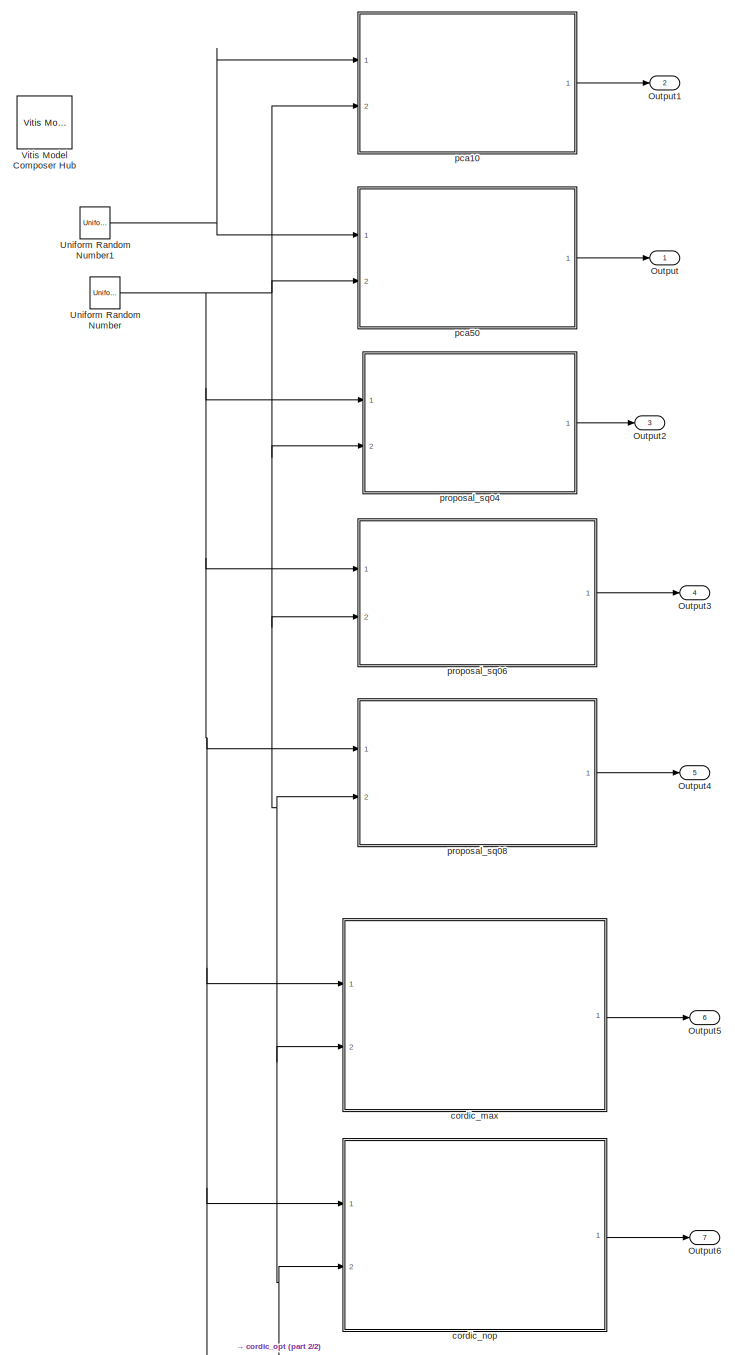
[diagram: root canvas - part 1/2, most of the canvas]
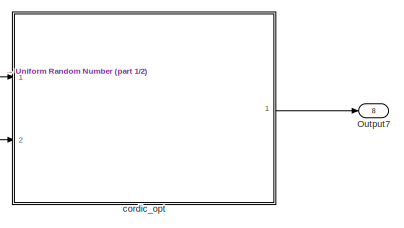
[diagram: root canvas - part 2/2, bottom right region]
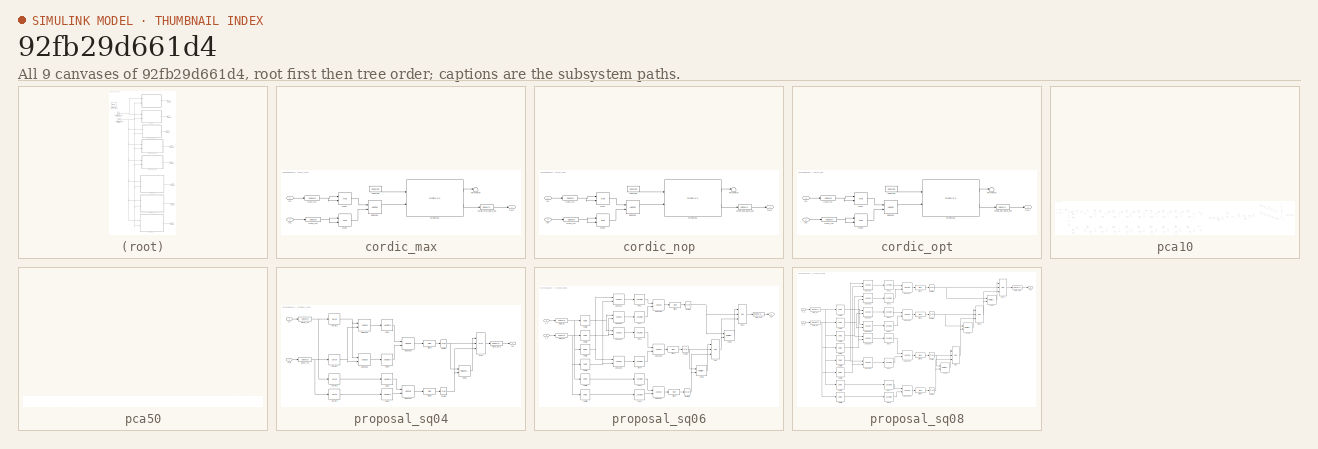
[diagram: thumbnail index - all 9 canvases of the model, root first then tree order]
MODEL slx_92fb29d661d4
KIND model
CONFIG AbsTol = auto
CONFIG EnableMultiTasking = off
CONFIG FixedStep = auto
CONFIG MaxStep = auto
CONFIG MinStep = auto
CONFIG RelTol = 1e-3
CONFIG SampleTimeConstraint = Unconstrained
CONFIG SolverName = VariableStepAuto
CONFIG StartTime = 0.0
CONFIG StopTime = 99
BLOCK [Outport] Output
BLOCK [Outport] Output1
  Port = 2
BLOCK [Outport] Output2
  Port = 3
BLOCK [Outport] Output3
  Port = 4
BLOCK [Outport] Output4
  Port = 5
BLOCK [Outport] Output5
  Port = 6
BLOCK [Outport] Output6
  Port = 7
BLOCK [Outport] Output7
  Port = 8
BLOCK [UniformRandomNumber] Uniform Random Number
  SampleTime = 1
BLOCK [UniformRandomNumber] Uniform Random Number1
  SampleTime = 1
  Seed = 1
BLOCK [Reference] Vitis Model Composer Hub  REF=vmcUtilities/Vitis Model Composer Hub
  Ports = []
  SourceBlock = vmcUtilities/Vitis Model Composer Hub
  SourceType = Implementation
  Tag = genX
  UserDataPersistent = on
BLOCK [SubSystem] cordic_max
  Ports = [2, 1]
  RequestExecContextInheritance = off
BLOCK [Reference] cordic_max/CORDIC16  REF=hdlDSPIP/CORDIC 6.0 
  Ports = [2, 2]
  SourceBlock = hdlDSPIP/CORDIC 6.0
  SourceType = CORDIC 6.0 Block
BLOCK [Reference] cordic_max/Constant  REF=hdlBasic/Constant
  Ports = [0, 1]
  SourceBlock = hdlBasic/Constant
  SourceType = Constant Block Block
BLOCK [Reference] cordic_max/Gate_In1  REF=hdlBasic/Gateway In
  Ports = [1, 1]
  SourceBlock = hdlBasic/Gateway In
  SourceType = Gateway In Block
BLOCK [Reference] cordic_max/Gate_In2  REF=hdlBasic/Gateway In
  Ports = [1, 1]
  SourceBlock = hdlBasic/Gateway In
  SourceType = Gateway In Block
BLOCK [Inport] cordic_max/In1
BLOCK [Inport] cordic_max/In2
  Port = 2
BLOCK [Reference] cordic_max/Mult1  REF=hdlBasic/Mult
  Ports = [2, 1]
  SourceBlock = hdlBasic/Mult
  SourceType = Multiplier Block
BLOCK [Reference] cordic_max/Mult2  REF=hdlBasic/Mult
  Ports = [2, 1]
  SourceBlock = hdlBasic/Mult
  SourceType = Multiplier Block
BLOCK [Outport] cordic_max/Out1
BLOCK [Terminator] cordic_max/Terminator
BLOCK [Reference] cordic_max/addsub1  REF=hdlBasic/AddSub
  Ports = [2, 1]
  SourceBlock = hdlBasic/AddSub
  SourceType = Adder/Subtracter Block
BLOCK [Reference] cordic_max/cordic_max_gate_out  REF=hdlBasic/Gateway Out
  Ports = [1, 1]
  SourceBlock = hdlBasic/Gateway Out
  SourceType = Gateway Out Block
BLOCK [SubSystem] cordic_nop
  Ports = [2, 1]
  RequestExecContextInheritance = off
BLOCK [Reference] cordic_nop/CORDIC16  REF=hdlDSPIP/CORDIC 6.0 
  Ports = [2, 2]
  SourceBlock = hdlDSPIP/CORDIC 6.0
  SourceType = CORDIC 6.0 Block
BLOCK [Reference] cordic_nop/Constant  REF=hdlBasic/Constant
  Ports = [0, 1]
  SourceBlock = hdlBasic/Constant
  SourceType = Constant Block Block
BLOCK [Reference] cordic_nop/Gate_In1  REF=hdlBasic/Gateway In
  Ports = [1, 1]
  SourceBlock = hdlBasic/Gateway In
  SourceType = Gateway In Block
BLOCK [Reference] cordic_nop/Gate_In2  REF=hdlBasic/Gateway In
  Ports = [1, 1]
  SourceBlock = hdlBasic/Gateway In
  SourceType = Gateway In Block
BLOCK [Inport] cordic_nop/In1
BLOCK [Inport] cordic_nop/In2
  Port = 2
BLOCK [Reference] cordic_nop/Mult1  REF=hdlBasic/Mult
  Ports = [2, 1]
  SourceBlock = hdlBasic/Mult
  SourceType = Multiplier Block
BLOCK [Reference] cordic_nop/Mult2  REF=hdlBasic/Mult
  Ports = [2, 1]
  SourceBlock = hdlBasic/Mult
  SourceType = Multiplier Block
BLOCK [Outport] cordic_nop/Out1
BLOCK [Terminator] cordic_nop/Terminator
BLOCK [Reference] cordic_nop/addsub1  REF=hdlBasic/AddSub
  Ports = [2, 1]
  SourceBlock = hdlBasic/AddSub
  SourceType = Adder/Subtracter Block
BLOCK [Reference] cordic_nop/cordic_nop_gate_out  REF=hdlBasic/Gateway Out
  Ports = [1, 1]
  SourceBlock = hdlBasic/Gateway Out
  SourceType = Gateway Out Block
BLOCK [SubSystem] cordic_opt
  Ports = [2, 1]
  RequestExecContextInheritance = off
BLOCK [Reference] cordic_opt/CORDIC16  REF=hdlDSPIP/CORDIC 6.0 
  Ports = [2, 2]
  SourceBlock = hdlDSPIP/CORDIC 6.0
  SourceType = CORDIC 6.0 Block
BLOCK [Reference] cordic_opt/Constant  REF=hdlBasic/Constant
  Ports = [0, 1]
  SourceBlock = hdlBasic/Constant
  SourceType = Constant Block Block
BLOCK [Reference] cordic_opt/Gate_In1  REF=hdlBasic/Gateway In
  Ports = [1, 1]
  SourceBlock = hdlBasic/Gateway In
  SourceType = Gateway In Block
BLOCK [Reference] cordic_opt/Gate_In2  REF=hdlBasic/Gateway In
  Ports = [1, 1]
  SourceBlock = hdlBasic/Gateway In
  SourceType = Gateway In Block
BLOCK [Inport] cordic_opt/In1
BLOCK [Inport] cordic_opt/In2
  Port = 2
BLOCK [Reference] cordic_opt/Mult1  REF=hdlBasic/Mult
  Ports = [2, 1]
  SourceBlock = hdlBasic/Mult
  SourceType = Multiplier Block
BLOCK [Reference] cordic_opt/Mult2  REF=hdlBasic/Mult
  Ports = [2, 1]
  SourceBlock = hdlBasic/Mult
  SourceType = Multiplier Block
BLOCK [Outport] cordic_opt/Out1
BLOCK [Terminator] cordic_opt/Terminator
BLOCK [Reference] cordic_opt/addsub1  REF=hdlBasic/AddSub
  Ports = [2, 1]
  SourceBlock = hdlBasic/AddSub
  SourceType = Adder/Subtracter Block
BLOCK [Reference] cordic_opt/cordic_opt_gate_out  REF=hdlBasic/Gateway Out
  Ports = [1, 1]
  SourceBlock = hdlBasic/Gateway Out
  SourceType = Gateway Out Block
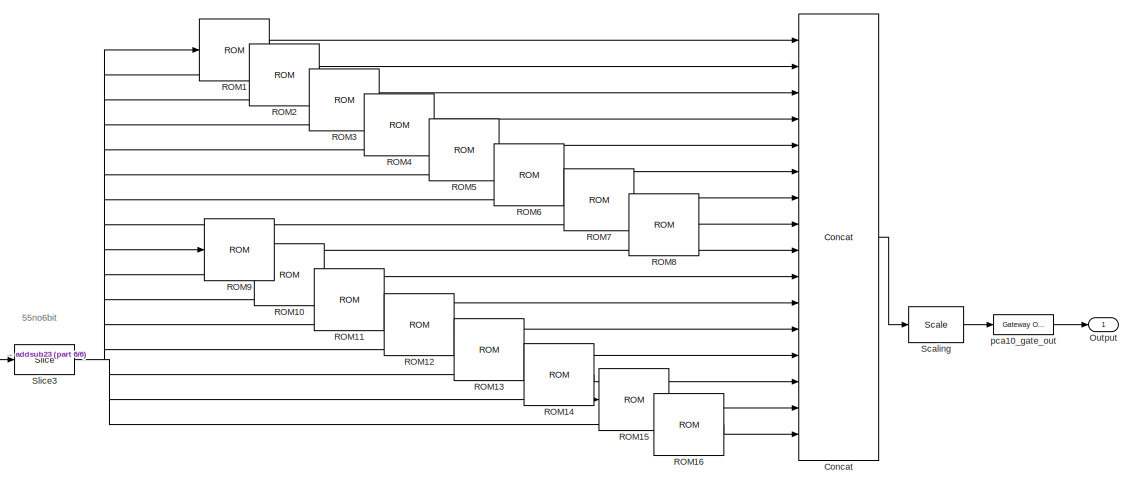
[diagram: pca10 - part 1/6, top right region]
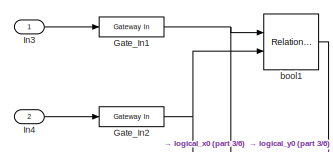
[diagram: pca10 - part 2/6, top left region]
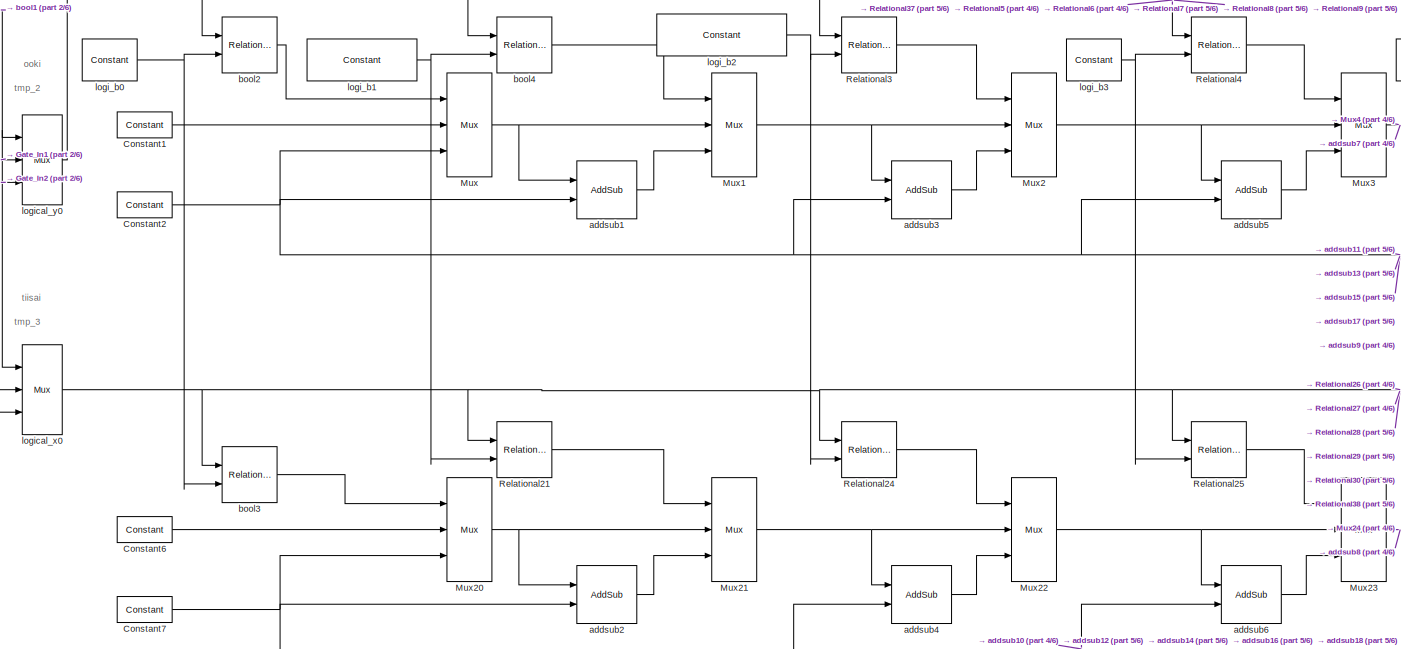
[diagram: pca10 - part 3/6, left side, full height]
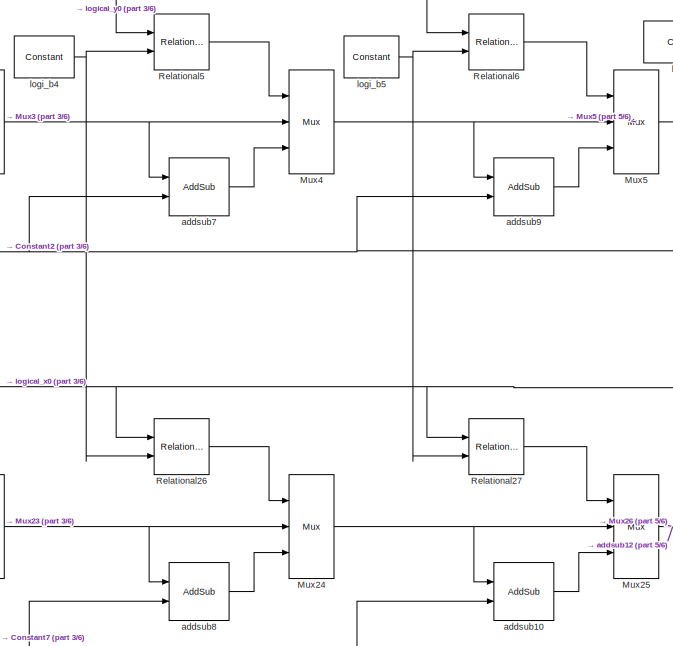
[diagram: pca10 - part 4/6, middle left region]
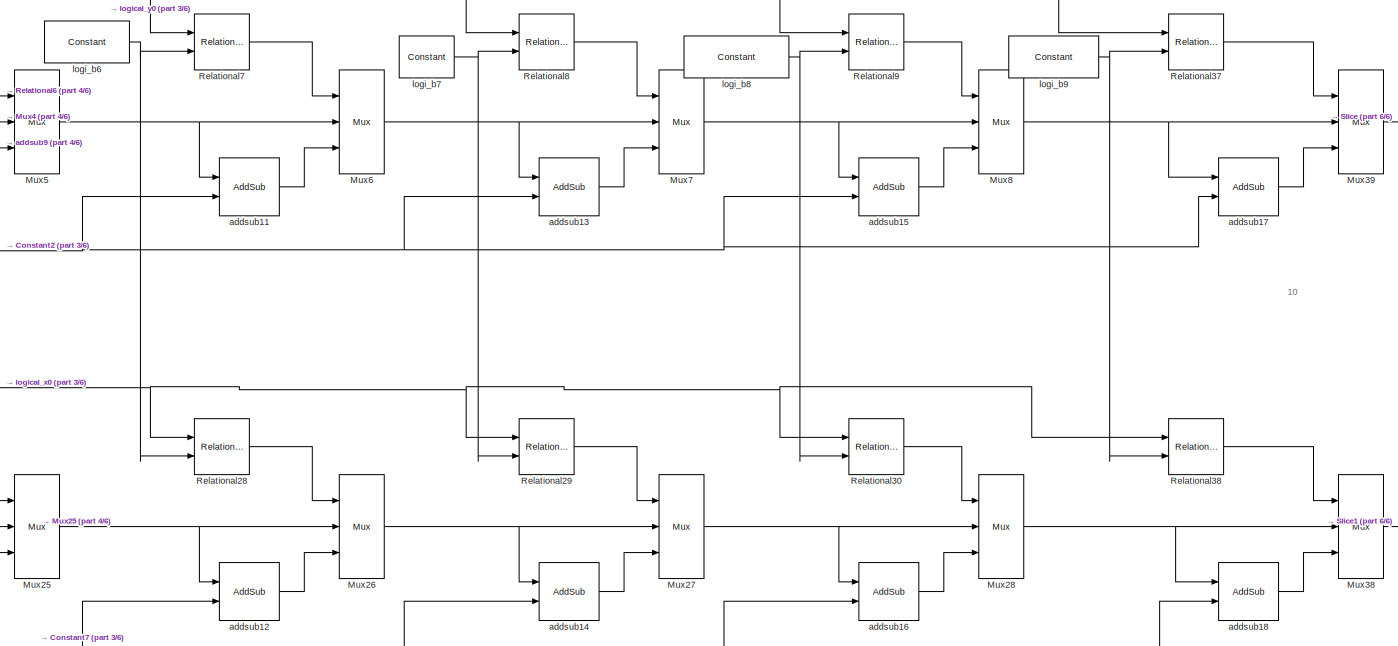
[diagram: pca10 - part 5/6, central region]
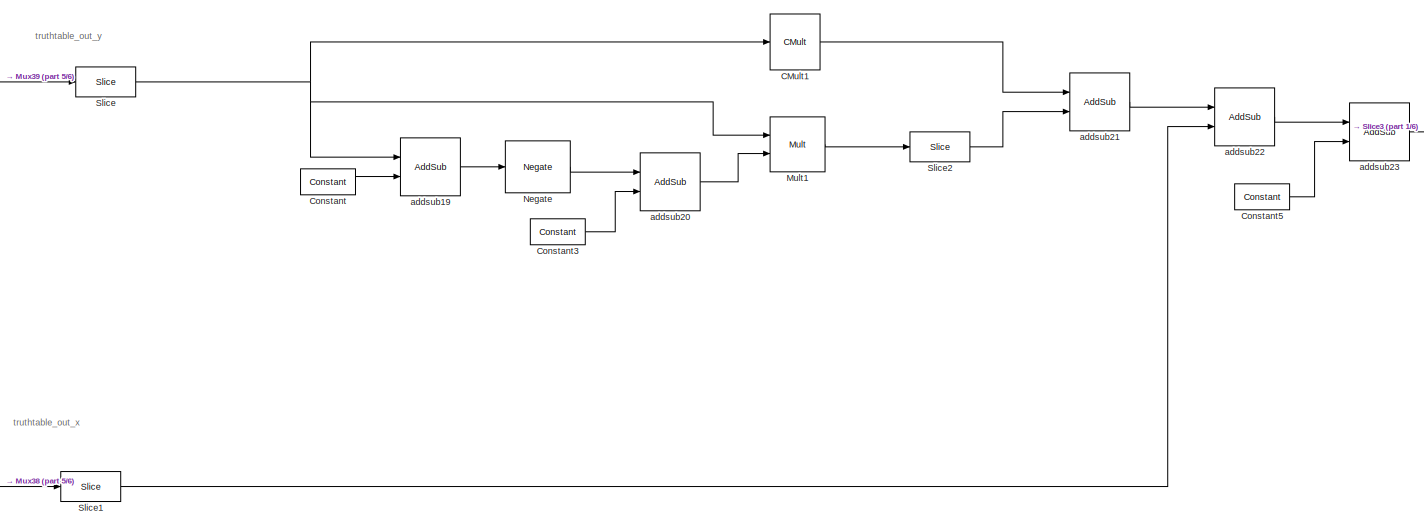
[diagram: pca10 - part 6/6, middle right region]
BLOCK [SubSystem] pca10
  Ports = [2, 1]
  RequestExecContextInheritance = off
BLOCK [Reference] pca10/CMult1  REF=hdlBasic/CMult
  Ports = [1, 1]
  SourceBlock = hdlBasic/CMult
  SourceType = Constant Multiplier Block
BLOCK [Reference] pca10/Concat  REF=hdlBasic/Concat
  Ports = [16, 1]
  SourceBlock = hdlBasic/Concat
  SourceType = Bus Concatenator Block
BLOCK [Reference] pca10/Constant  REF=hdlBasic/Constant
  Ports = [0, 1]
  SourceBlock = hdlBasic/Constant
  SourceType = Constant Block Block
BLOCK [Reference] pca10/Constant1  REF=hdlBasic/Constant
  Ports = [0, 1]
  SourceBlock = hdlBasic/Constant
  SourceType = Constant Block Block
BLOCK [Reference] pca10/Constant2  REF=hdlBasic/Constant
  Ports = [0, 1]
  SourceBlock = hdlBasic/Constant
  SourceType = Constant Block Block
BLOCK [Reference] pca10/Constant3  REF=hdlBasic/Constant
  Ports = [0, 1]
  SourceBlock = hdlBasic/Constant
  SourceType = Constant Block Block
BLOCK [Reference] pca10/Constant5  REF=hdlBasic/Constant
  Ports = [0, 1]
  SourceBlock = hdlBasic/Constant
  SourceType = Constant Block Block
BLOCK [Reference] pca10/Constant6  REF=hdlBasic/Constant
  Ports = [0, 1]
  SourceBlock = hdlBasic/Constant
  SourceType = Constant Block Block
BLOCK [Reference] pca10/Constant7  REF=hdlBasic/Constant
  Ports = [0, 1]
  SourceBlock = hdlBasic/Constant
  SourceType = Constant Block Block
BLOCK [Reference] pca10/Gate_In1  REF=hdlBasic/Gateway In
  Ports = [1, 1]
  SourceBlock = hdlBasic/Gateway In
  SourceType = Gateway In Block
BLOCK [Reference] pca10/Gate_In2  REF=hdlBasic/Gateway In
  Ports = [1, 1]
  SourceBlock = hdlBasic/Gateway In
  SourceType = Gateway In Block
BLOCK [Inport] pca10/In3
BLOCK [Inport] pca10/In4
  Port = 2
BLOCK [Reference] pca10/Mult1  REF=hdlBasic/Mult
  Ports = [2, 1]
  SourceBlock = hdlBasic/Mult
  SourceType = Multiplier Block
BLOCK [Reference] pca10/Mux  REF=hdlBasic/Mux
  Ports = [3, 1]
  SourceBlock = hdlBasic/Mux
  SourceType = Bus Multiplexer Block
BLOCK [Reference] pca10/Mux1  REF=hdlBasic/Mux
  Ports = [3, 1]
  SourceBlock = hdlBasic/Mux
  SourceType = Bus Multiplexer Block
BLOCK [Reference] pca10/Mux2  REF=hdlBasic/Mux
  Ports = [3, 1]
  SourceBlock = hdlBasic/Mux
  SourceType = Bus Multiplexer Block
BLOCK [Reference] pca10/Mux20  REF=hdlBasic/Mux
  Ports = [3, 1]
  SourceBlock = hdlBasic/Mux
  SourceType = Bus Multiplexer Block
BLOCK [Reference] pca10/Mux21  REF=hdlBasic/Mux
  Ports = [3, 1]
  SourceBlock = hdlBasic/Mux
  SourceType = Bus Multiplexer Block
BLOCK [Reference] pca10/Mux22  REF=hdlBasic/Mux
  Ports = [3, 1]
  SourceBlock = hdlBasic/Mux
  SourceType = Bus Multiplexer Block
BLOCK [Reference] pca10/Mux23  REF=hdlBasic/Mux
  Ports = [3, 1]
  SourceBlock = hdlBasic/Mux
  SourceType = Bus Multiplexer Block
BLOCK [Reference] pca10/Mux24  REF=hdlBasic/Mux
  Ports = [3, 1]
  SourceBlock = hdlBasic/Mux
  SourceType = Bus Multiplexer Block
BLOCK [Reference] pca10/Mux25  REF=hdlBasic/Mux
  Ports = [3, 1]
  SourceBlock = hdlBasic/Mux
  SourceType = Bus Multiplexer Block
BLOCK [Reference] pca10/Mux26  REF=hdlBasic/Mux
  Ports = [3, 1]
  SourceBlock = hdlBasic/Mux
  SourceType = Bus Multiplexer Block
BLOCK [Reference] pca10/Mux27  REF=hdlBasic/Mux
  Ports = [3, 1]
  SourceBlock = hdlBasic/Mux
  SourceType = Bus Multiplexer Block
BLOCK [Reference] pca10/Mux28  REF=hdlBasic/Mux
  Ports = [3, 1]
  SourceBlock = hdlBasic/Mux
  SourceType = Bus Multiplexer Block
BLOCK [Reference] pca10/Mux3  REF=hdlBasic/Mux
  Ports = [3, 1]
  SourceBlock = hdlBasic/Mux
  SourceType = Bus Multiplexer Block
BLOCK [Reference] pca10/Mux38  REF=hdlBasic/Mux
  Ports = [3, 1]
  SourceBlock = hdlBasic/Mux
  SourceType = Bus Multiplexer Block
BLOCK [Reference] pca10/Mux39  REF=hdlBasic/Mux
  Ports = [3, 1]
  SourceBlock = hdlBasic/Mux
  SourceType = Bus Multiplexer Block
BLOCK [Reference] pca10/Mux4  REF=hdlBasic/Mux
  Ports = [3, 1]
  SourceBlock = hdlBasic/Mux
  SourceType = Bus Multiplexer Block
BLOCK [Reference] pca10/Mux5  REF=hdlBasic/Mux
  Ports = [3, 1]
  SourceBlock = hdlBasic/Mux
  SourceType = Bus Multiplexer Block
BLOCK [Reference] pca10/Mux6  REF=hdlBasic/Mux
  Ports = [3, 1]
  SourceBlock = hdlBasic/Mux
  SourceType = Bus Multiplexer Block
BLOCK [Reference] pca10/Mux7  REF=hdlBasic/Mux
  Ports = [3, 1]
  SourceBlock = hdlBasic/Mux
  SourceType = Bus Multiplexer Block
BLOCK [Reference] pca10/Mux8  REF=hdlBasic/Mux
  Ports = [3, 1]
  SourceBlock = hdlBasic/Mux
  SourceType = Bus Multiplexer Block
BLOCK [Reference] pca10/Negate  REF=hdlBasic/Negate
  Ports = [1, 1]
  SourceBlock = hdlBasic/Negate
  SourceType = Negate Block Block
BLOCK [Outport] pca10/Output
BLOCK [Reference] pca10/ROM1  REF=hdlBasic/ROM
  Ports = [1, 1]
  SourceBlock = hdlBasic/ROM
  SourceType = Single Port Read-Only Memory Block
BLOCK [Reference] pca10/ROM10  REF=hdlBasic/ROM
  Ports = [1, 1]
  SourceBlock = hdlBasic/ROM
  SourceType = Single Port Read-Only Memory Block
BLOCK [Reference] pca10/ROM11  REF=hdlBasic/ROM
  Ports = [1, 1]
  SourceBlock = hdlBasic/ROM
  SourceType = Single Port Read-Only Memory Block
BLOCK [Reference] pca10/ROM12  REF=hdlBasic/ROM
  Ports = [1, 1]
  SourceBlock = hdlBasic/ROM
  SourceType = Single Port Read-Only Memory Block
BLOCK [Reference] pca10/ROM13  REF=hdlBasic/ROM
  Ports = [1, 1]
  SourceBlock = hdlBasic/ROM
  SourceType = Single Port Read-Only Memory Block
BLOCK [Reference] pca10/ROM14  REF=hdlBasic/ROM
  Ports = [1, 1]
  SourceBlock = hdlBasic/ROM
  SourceType = Single Port Read-Only Memory Block
BLOCK [Reference] pca10/ROM15  REF=hdlBasic/ROM
  Ports = [1, 1]
  SourceBlock = hdlBasic/ROM
  SourceType = Single Port Read-Only Memory Block
BLOCK [Reference] pca10/ROM16  REF=hdlBasic/ROM
  Ports = [1, 1]
  SourceBlock = hdlBasic/ROM
  SourceType = Single Port Read-Only Memory Block
BLOCK [Reference] pca10/ROM2  REF=hdlBasic/ROM
  Ports = [1, 1]
  SourceBlock = hdlBasic/ROM
  SourceType = Single Port Read-Only Memory Block
BLOCK [Reference] pca10/ROM3  REF=hdlBasic/ROM
  Ports = [1, 1]
  SourceBlock = hdlBasic/ROM
  SourceType = Single Port Read-Only Memory Block
BLOCK [Reference] pca10/ROM4  REF=hdlBasic/ROM
  Ports = [1, 1]
  SourceBlock = hdlBasic/ROM
  SourceType = Single Port Read-Only Memory Block
BLOCK [Reference] pca10/ROM5  REF=hdlBasic/ROM
  Ports = [1, 1]
  SourceBlock = hdlBasic/ROM
  SourceType = Single Port Read-Only Memory Block
BLOCK [Reference] pca10/ROM6  REF=hdlBasic/ROM
  Ports = [1, 1]
  SourceBlock = hdlBasic/ROM
  SourceType = Single Port Read-Only Memory Block
BLOCK [Reference] pca10/ROM7  REF=hdlBasic/ROM
  Ports = [1, 1]
  SourceBlock = hdlBasic/ROM
  SourceType = Single Port Read-Only Memory Block
BLOCK [Reference] pca10/ROM8  REF=hdlBasic/ROM
  Ports = [1, 1]
  SourceBlock = hdlBasic/ROM
  SourceType = Single Port Read-Only Memory Block
BLOCK [Reference] pca10/ROM9  REF=hdlBasic/ROM
  Ports = [1, 1]
  SourceBlock = hdlBasic/ROM
  SourceType = Single Port Read-Only Memory Block
BLOCK [Reference] pca10/Relational21  REF=hdlBasic/Relational
  Ports = [2, 1]
  SourceBlock = hdlBasic/Relational
  SourceType = Arithmetic Relational Operator Block
BLOCK [Reference] pca10/Relational24  REF=hdlBasic/Relational
  Ports = [2, 1]
  SourceBlock = hdlBasic/Relational
  SourceType = Arithmetic Relational Operator Block
BLOCK [Reference] pca10/Relational25  REF=hdlBasic/Relational
  Ports = [2, 1]
  SourceBlock = hdlBasic/Relational
  SourceType = Arithmetic Relational Operator Block
BLOCK [Reference] pca10/Relational26  REF=hdlBasic/Relational
  Ports = [2, 1]
  SourceBlock = hdlBasic/Relational
  SourceType = Arithmetic Relational Operator Block
BLOCK [Reference] pca10/Relational27  REF=hdlBasic/Relational
  Ports = [2, 1]
  SourceBlock = hdlBasic/Relational
  SourceType = Arithmetic Relational Operator Block
BLOCK [Reference] pca10/Relational28  REF=hdlBasic/Relational
  Ports = [2, 1]
  SourceBlock = hdlBasic/Relational
  SourceType = Arithmetic Relational Operator Block
BLOCK [Reference] pca10/Relational29  REF=hdlBasic/Relational
  Ports = [2, 1]
  SourceBlock = hdlBasic/Relational
  SourceType = Arithmetic Relational Operator Block
BLOCK [Reference] pca10/Relational3  REF=hdlBasic/Relational
  Ports = [2, 1]
  SourceBlock = hdlBasic/Relational
  SourceType = Arithmetic Relational Operator Block
BLOCK [Reference] pca10/Relational30  REF=hdlBasic/Relational
  Ports = [2, 1]
  SourceBlock = hdlBasic/Relational
  SourceType = Arithmetic Relational Operator Block
BLOCK [Reference] pca10/Relational37  REF=hdlBasic/Relational
  Ports = [2, 1]
  SourceBlock = hdlBasic/Relational
  SourceType = Arithmetic Relational Operator Block
BLOCK [Reference] pca10/Relational38  REF=hdlBasic/Relational
  Ports = [2, 1]
  SourceBlock = hdlBasic/Relational
  SourceType = Arithmetic Relational Operator Block
BLOCK [Reference] pca10/Relational4  REF=hdlBasic/Relational
  Ports = [2, 1]
  SourceBlock = hdlBasic/Relational
  SourceType = Arithmetic Relational Operator Block
BLOCK [Reference] pca10/Relational5  REF=hdlBasic/Relational
  Ports = [2, 1]
  SourceBlock = hdlBasic/Relational
  SourceType = Arithmetic Relational Operator Block
BLOCK [Reference] pca10/Relational6  REF=hdlBasic/Relational
  Ports = [2, 1]
  SourceBlock = hdlBasic/Relational
  SourceType = Arithmetic Relational Operator Block
BLOCK [Reference] pca10/Relational7  REF=hdlBasic/Relational
  Ports = [2, 1]
  SourceBlock = hdlBasic/Relational
  SourceType = Arithmetic Relational Operator Block
BLOCK [Reference] pca10/Relational8  REF=hdlBasic/Relational
  Ports = [2, 1]
  SourceBlock = hdlBasic/Relational
  SourceType = Arithmetic Relational Operator Block
BLOCK [Reference] pca10/Relational9  REF=hdlBasic/Relational
  Ports = [2, 1]
  SourceBlock = hdlBasic/Relational
  SourceType = Arithmetic Relational Operator Block
BLOCK [Reference] pca10/Scaling  REF=hdlBasic/Scale
  Ports = [1, 1]
  SourceBlock = hdlBasic/Scale
  SourceType = Input Scaler Block
BLOCK [Reference] pca10/Slice  REF=hdlBasic/Slice
  Ports = [1, 1]
  SourceBlock = hdlBasic/Slice
  SourceType = Bit Slice Extractor Block
BLOCK [Reference] pca10/Slice1  REF=hdlBasic/Slice
  Ports = [1, 1]
  SourceBlock = hdlBasic/Slice
  SourceType = Bit Slice Extractor Block
BLOCK [Reference] pca10/Slice2  REF=hdlBasic/Slice
  Ports = [1, 1]
  SourceBlock = hdlBasic/Slice
  SourceType = Bit Slice Extractor Block
BLOCK [Reference] pca10/Slice3  REF=hdlBasic/Slice
  Ports = [1, 1]
  SourceBlock = hdlBasic/Slice
  SourceType = Bit Slice Extractor Block
BLOCK [Reference] pca10/addsub1  REF=hdlBasic/AddSub
  Ports = [2, 1]
  SourceBlock = hdlBasic/AddSub
  SourceType = Adder/Subtracter Block
BLOCK [Reference] pca10/addsub10  REF=hdlBasic/AddSub
  Ports = [2, 1]
  SourceBlock = hdlBasic/AddSub
  SourceType = Adder/Subtracter Block
BLOCK [Reference] pca10/addsub11  REF=hdlBasic/AddSub
  Ports = [2, 1]
  SourceBlock = hdlBasic/AddSub
  SourceType = Adder/Subtracter Block
BLOCK [Reference] pca10/addsub12  REF=hdlBasic/AddSub
  Ports = [2, 1]
  SourceBlock = hdlBasic/AddSub
  SourceType = Adder/Subtracter Block
BLOCK [Reference] pca10/addsub13  REF=hdlBasic/AddSub
  Ports = [2, 1]
  SourceBlock = hdlBasic/AddSub
  SourceType = Adder/Subtracter Block
BLOCK [Reference] pca10/addsub14  REF=hdlBasic/AddSub
  Ports = [2, 1]
  SourceBlock = hdlBasic/AddSub
  SourceType = Adder/Subtracter Block
BLOCK [Reference] pca10/addsub15  REF=hdlBasic/AddSub
  Ports = [2, 1]
  SourceBlock = hdlBasic/AddSub
  SourceType = Adder/Subtracter Block
BLOCK [Reference] pca10/addsub16  REF=hdlBasic/AddSub
  Ports = [2, 1]
  SourceBlock = hdlBasic/AddSub
  SourceType = Adder/Subtracter Block
BLOCK [Reference] pca10/addsub17  REF=hdlBasic/AddSub
  Ports = [2, 1]
  SourceBlock = hdlBasic/AddSub
  SourceType = Adder/Subtracter Block
BLOCK [Reference] pca10/addsub18  REF=hdlBasic/AddSub
  Ports = [2, 1]
  SourceBlock = hdlBasic/AddSub
  SourceType = Adder/Subtracter Block
BLOCK [Reference] pca10/addsub19  REF=hdlBasic/AddSub
  Ports = [2, 1]
  SourceBlock = hdlBasic/AddSub
  SourceType = Adder/Subtracter Block
BLOCK [Reference] pca10/addsub2  REF=hdlBasic/AddSub
  Ports = [2, 1]
  SourceBlock = hdlBasic/AddSub
  SourceType = Adder/Subtracter Block
BLOCK [Reference] pca10/addsub20  REF=hdlBasic/AddSub
  Ports = [2, 1]
  SourceBlock = hdlBasic/AddSub
  SourceType = Adder/Subtracter Block
BLOCK [Reference] pca10/addsub21  REF=hdlBasic/AddSub
  Ports = [2, 1]
  SourceBlock = hdlBasic/AddSub
  SourceType = Adder/Subtracter Block
BLOCK [Reference] pca10/addsub22  REF=hdlBasic/AddSub
  Ports = [2, 1]
  SourceBlock = hdlBasic/AddSub
  SourceType = Adder/Subtracter Block
BLOCK [Reference] pca10/addsub23  REF=hdlBasic/AddSub
  Ports = [2, 1]
  SourceBlock = hdlBasic/AddSub
  SourceType = Adder/Subtracter Block
BLOCK [Reference] pca10/addsub3  REF=hdlBasic/AddSub
  Ports = [2, 1]
  SourceBlock = hdlBasic/AddSub
  SourceType = Adder/Subtracter Block
BLOCK [Reference] pca10/addsub4  REF=hdlBasic/AddSub
  Ports = [2, 1]
  SourceBlock = hdlBasic/AddSub
  SourceType = Adder/Subtracter Block
BLOCK [Reference] pca10/addsub5  REF=hdlBasic/AddSub
  Ports = [2, 1]
  SourceBlock = hdlBasic/AddSub
  SourceType = Adder/Subtracter Block
BLOCK [Reference] pca10/addsub6  REF=hdlBasic/AddSub
  Ports = [2, 1]
  SourceBlock = hdlBasic/AddSub
  SourceType = Adder/Subtracter Block
BLOCK [Reference] pca10/addsub7  REF=hdlBasic/AddSub
  Ports = [2, 1]
  SourceBlock = hdlBasic/AddSub
  SourceType = Adder/Subtracter Block
BLOCK [Reference] pca10/addsub8  REF=hdlBasic/AddSub
  Ports = [2, 1]
  SourceBlock = hdlBasic/AddSub
  SourceType = Adder/Subtracter Block
BLOCK [Reference] pca10/addsub9  REF=hdlBasic/AddSub
  Ports = [2, 1]
  SourceBlock = hdlBasic/AddSub
  SourceType = Adder/Subtracter Block
BLOCK [Reference] pca10/bool1  REF=hdlBasic/Relational
  Ports = [2, 1]
  SourceBlock = hdlBasic/Relational
  SourceType = Arithmetic Relational Operator Block
BLOCK [Reference] pca10/bool2  REF=hdlBasic/Relational
  Ports = [2, 1]
  SourceBlock = hdlBasic/Relational
  SourceType = Arithmetic Relational Operator Block
BLOCK [Reference] pca10/bool3  REF=hdlBasic/Relational
  Ports = [2, 1]
  SourceBlock = hdlBasic/Relational
  SourceType = Arithmetic Relational Operator Block
BLOCK [Reference] pca10/bool4  REF=hdlBasic/Relational
  Ports = [2, 1]
  SourceBlock = hdlBasic/Relational
  SourceType = Arithmetic Relational Operator Block
BLOCK [Reference] pca10/logi_b0  REF=hdlBasic/Constant
  Ports = [0, 1]
  SourceBlock = hdlBasic/Constant
  SourceType = Constant Block Block
BLOCK [Reference] pca10/logi_b1  REF=hdlBasic/Constant
  Ports = [0, 1]
  SourceBlock = hdlBasic/Constant
  SourceType = Constant Block Block
BLOCK [Reference] pca10/logi_b2  REF=hdlBasic/Constant
  Ports = [0, 1]
  SourceBlock = hdlBasic/Constant
  SourceType = Constant Block Block
BLOCK [Reference] pca10/logi_b3  REF=hdlBasic/Constant
  Ports = [0, 1]
  SourceBlock = hdlBasic/Constant
  SourceType = Constant Block Block
BLOCK [Reference] pca10/logi_b4  REF=hdlBasic/Constant
  Ports = [0, 1]
  SourceBlock = hdlBasic/Constant
  SourceType = Constant Block Block
BLOCK [Reference] pca10/logi_b5  REF=hdlBasic/Constant
  Ports = [0, 1]
  SourceBlock = hdlBasic/Constant
  SourceType = Constant Block Block
BLOCK [Reference] pca10/logi_b6  REF=hdlBasic/Constant
  Ports = [0, 1]
  SourceBlock = hdlBasic/Constant
  SourceType = Constant Block Block
BLOCK [Reference] pca10/logi_b7  REF=hdlBasic/Constant
  Ports = [0, 1]
  SourceBlock = hdlBasic/Constant
  SourceType = Constant Block Block
BLOCK [Reference] pca10/logi_b8  REF=hdlBasic/Constant
  Ports = [0, 1]
  SourceBlock = hdlBasic/Constant
  SourceType = Constant Block Block
BLOCK [Reference] pca10/logi_b9  REF=hdlBasic/Constant
  Ports = [0, 1]
  SourceBlock = hdlBasic/Constant
  SourceType = Constant Block Block
BLOCK [Reference] pca10/logical_x0  REF=hdlBasic/Mux
  Ports = [3, 1]
  SourceBlock = hdlBasic/Mux
  SourceType = Bus Multiplexer Block
BLOCK [Reference] pca10/logical_y0  REF=hdlBasic/Mux
  Ports = [3, 1]
  SourceBlock = hdlBasic/Mux
  SourceType = Bus Multiplexer Block
BLOCK [Reference] pca10/pca10_gate_out  REF=hdlBasic/Gateway Out
  Ports = [1, 1]
  SourceBlock = hdlBasic/Gateway Out
  SourceType = Gateway Out Block
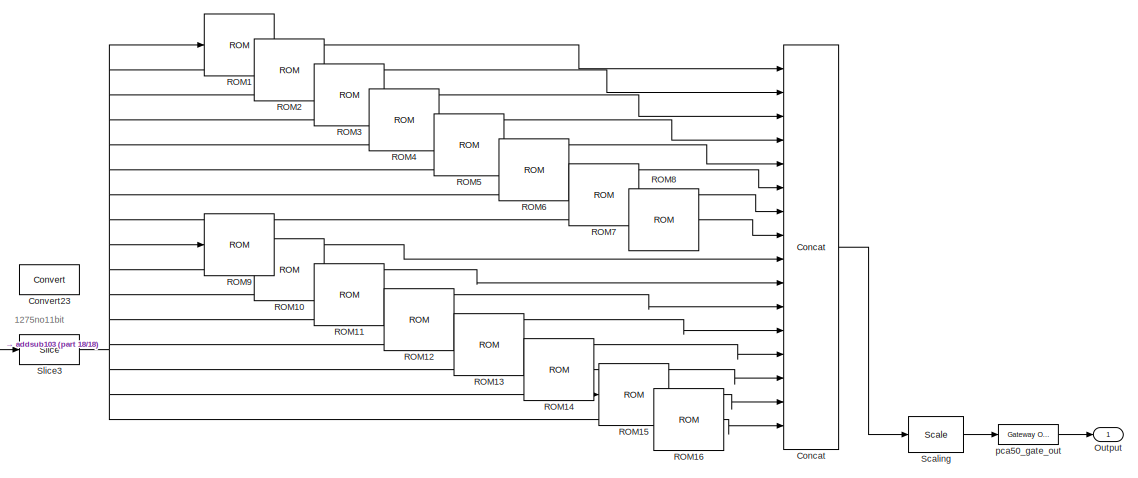
[diagram: pca50 - part 1/18, top right region]
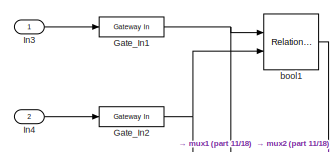
[diagram: pca50 - part 2/18, top left region]
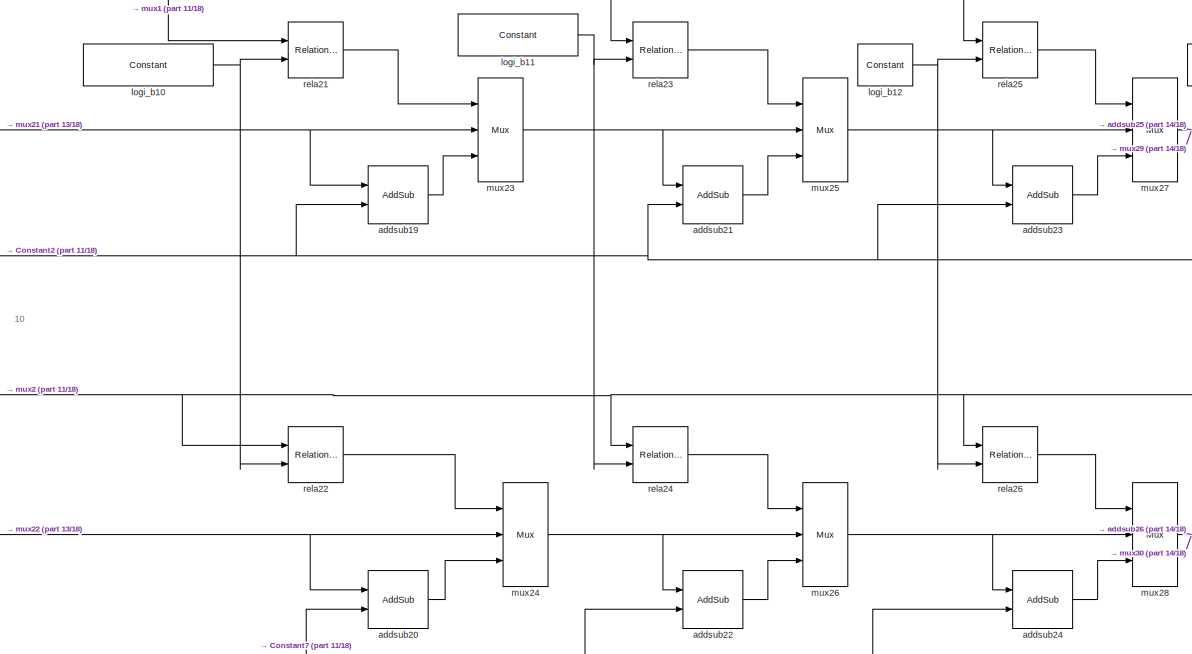
[diagram: pca50 - part 3/18, left side, full height]
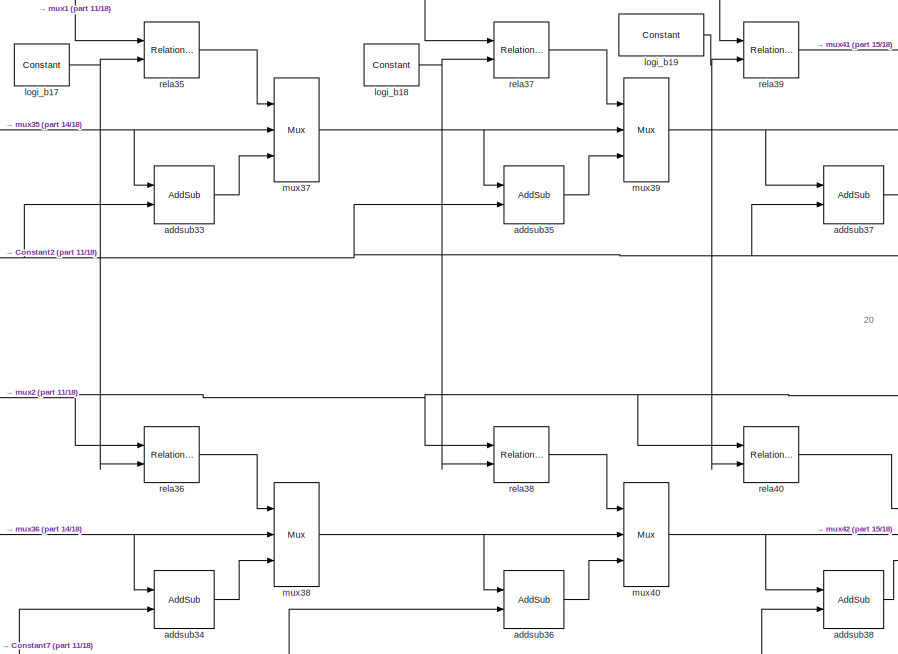
[diagram: pca50 - part 4/18, left side, full height]
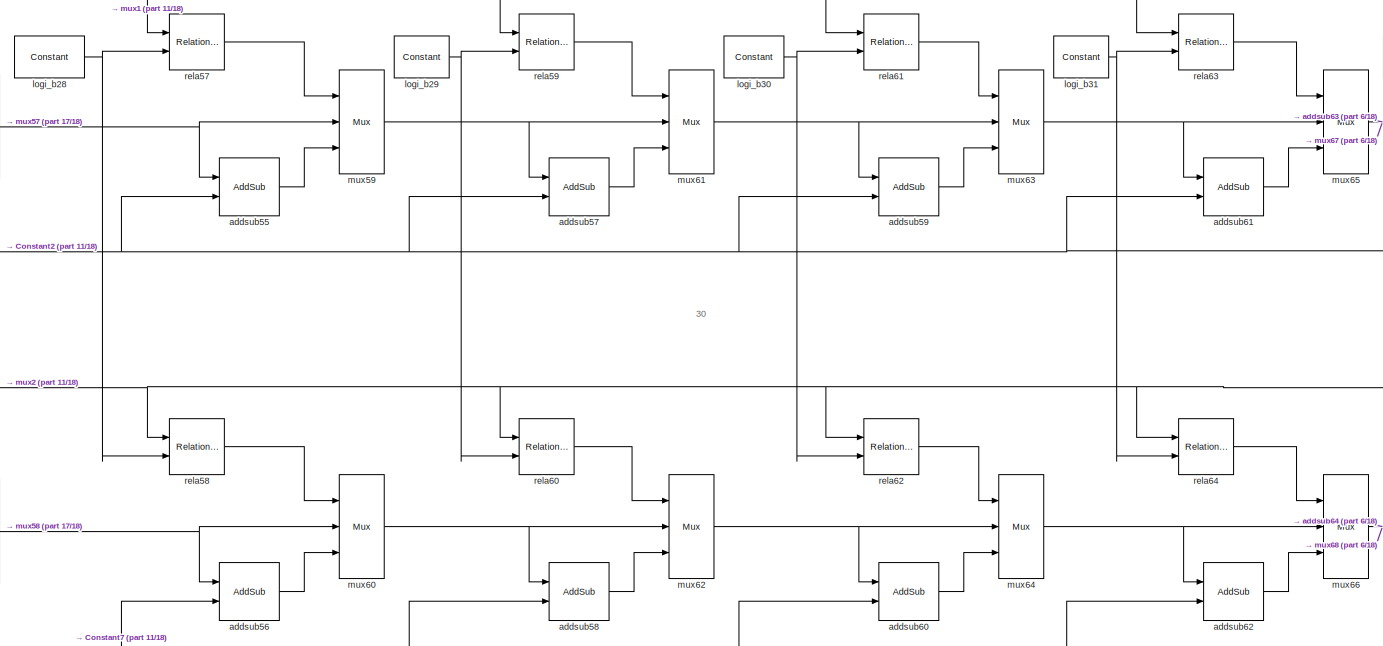
[diagram: pca50 - part 5/18, center side, full height]
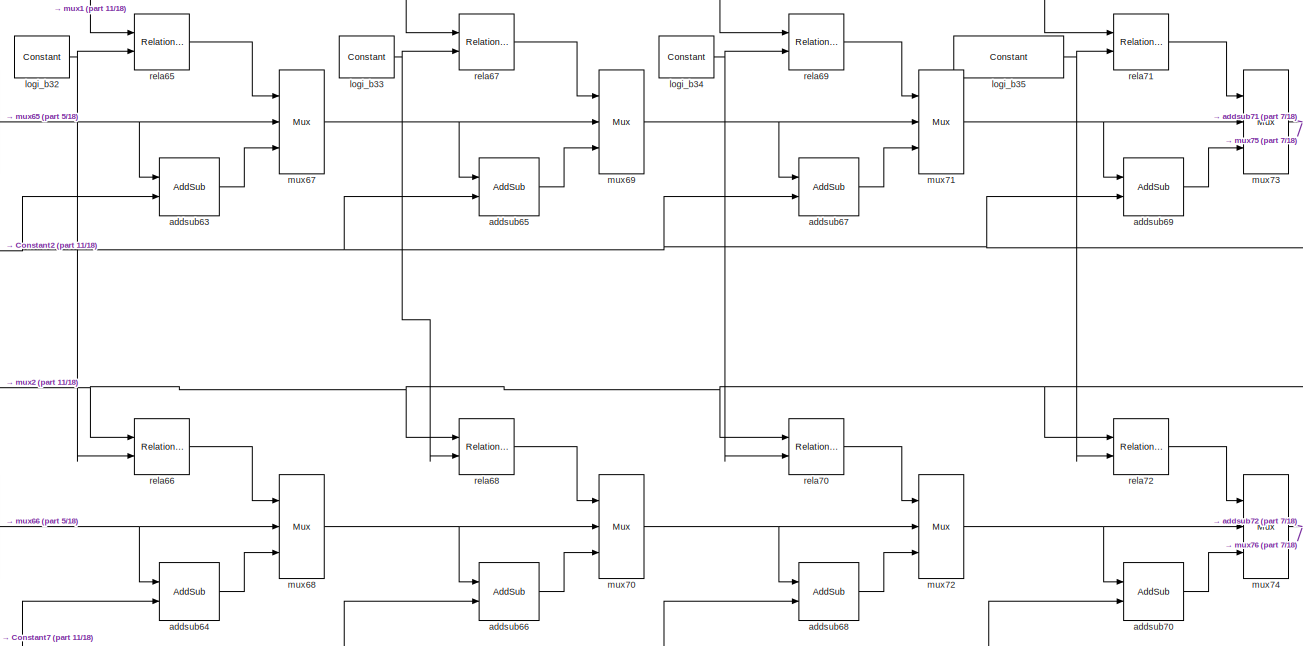
[diagram: pca50 - part 6/18, center side, full height]
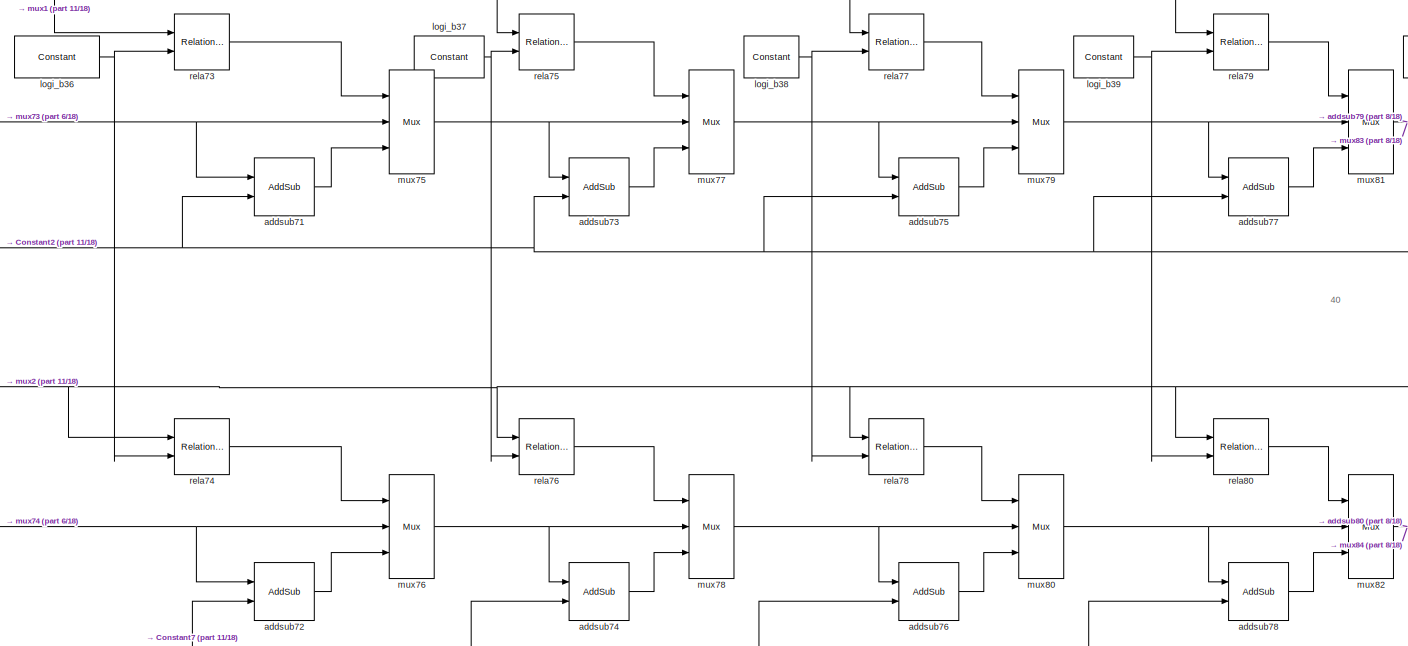
[diagram: pca50 - part 7/18, center side, full height]
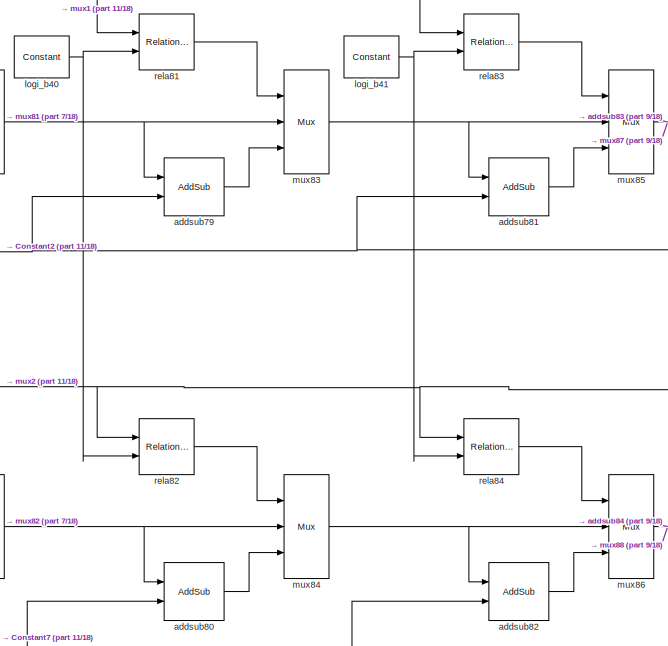
[diagram: pca50 - part 8/18, right side, full height]
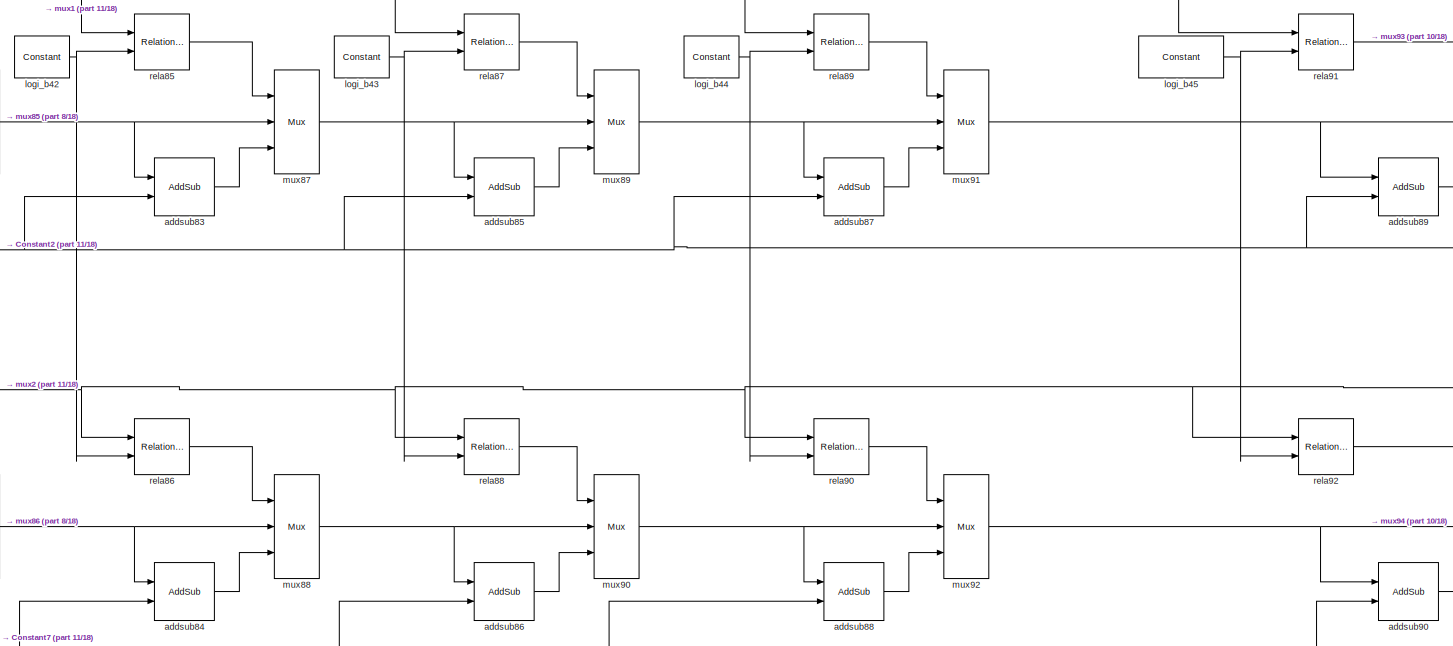
[diagram: pca50 - part 9/18, right side, full height]
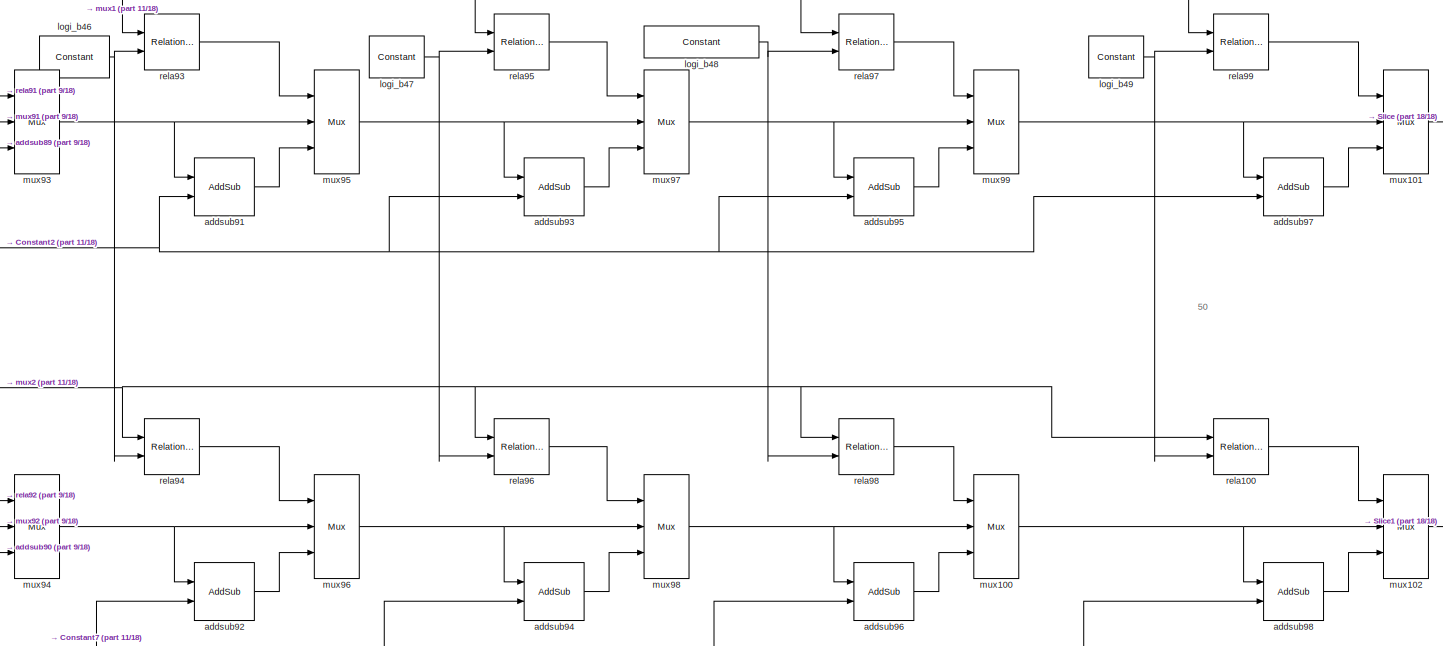
[diagram: pca50 - part 10/18, right side, full height]
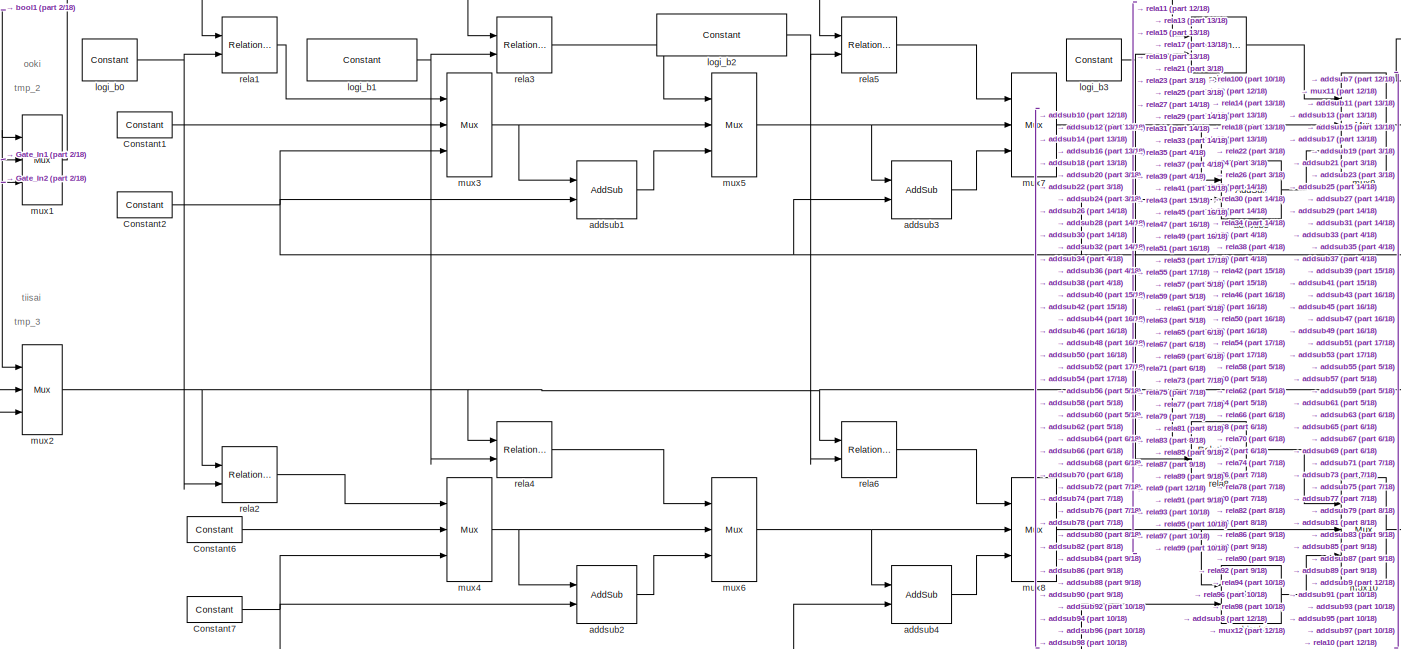
[diagram: pca50 - part 11/18, left side, full height]
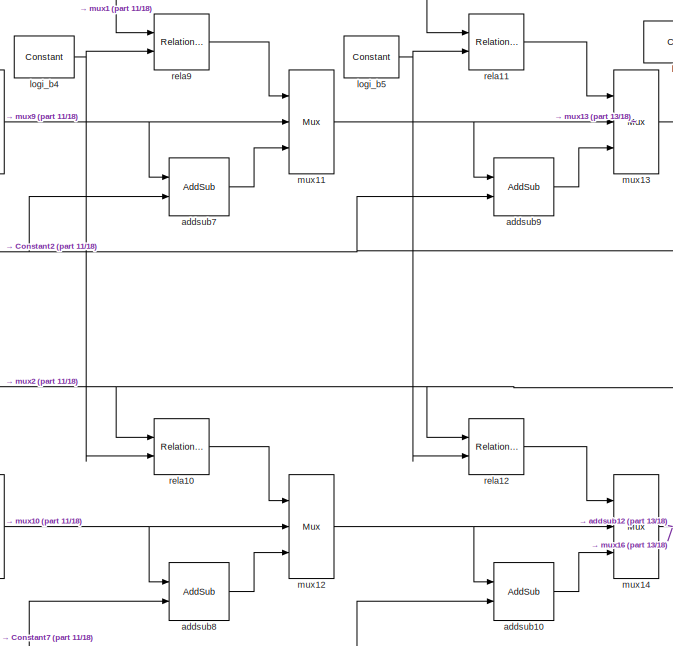
[diagram: pca50 - part 12/18, left side, full height]
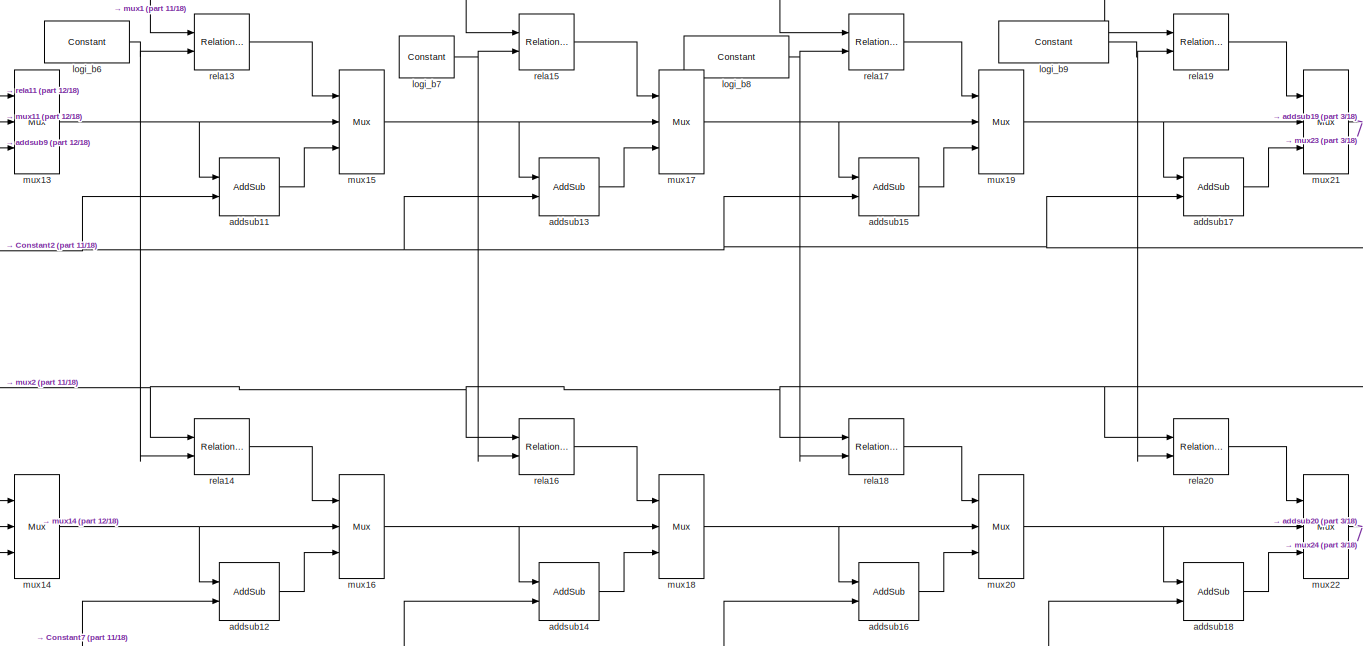
[diagram: pca50 - part 13/18, left side, full height]
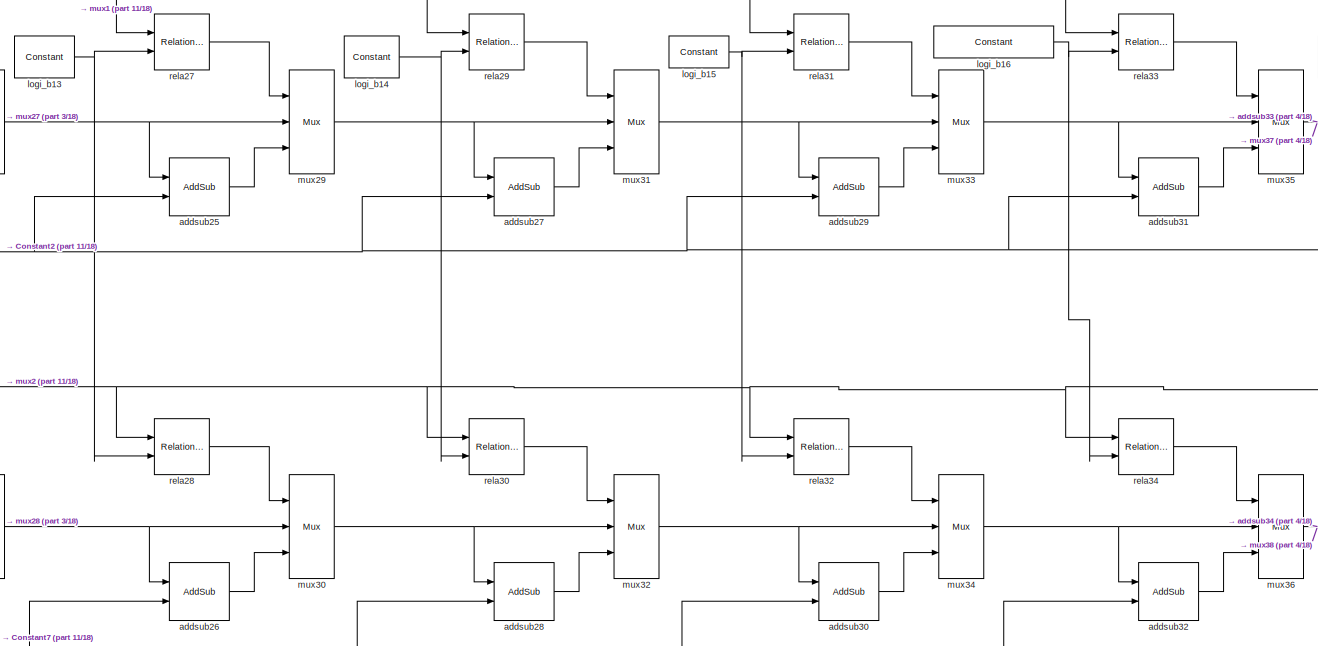
[diagram: pca50 - part 14/18, left side, full height]
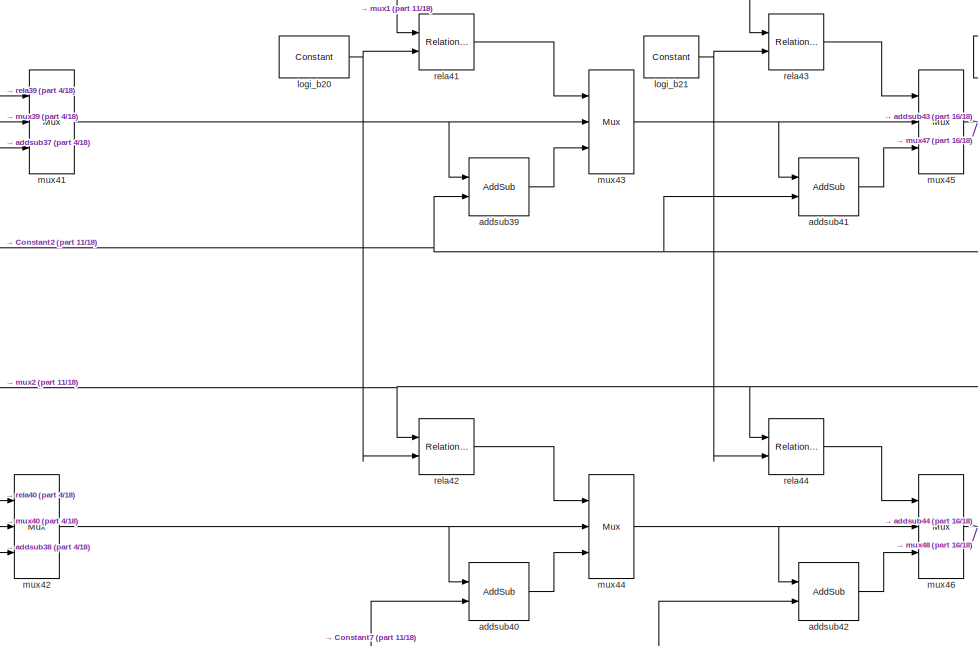
[diagram: pca50 - part 15/18, center side, full height]
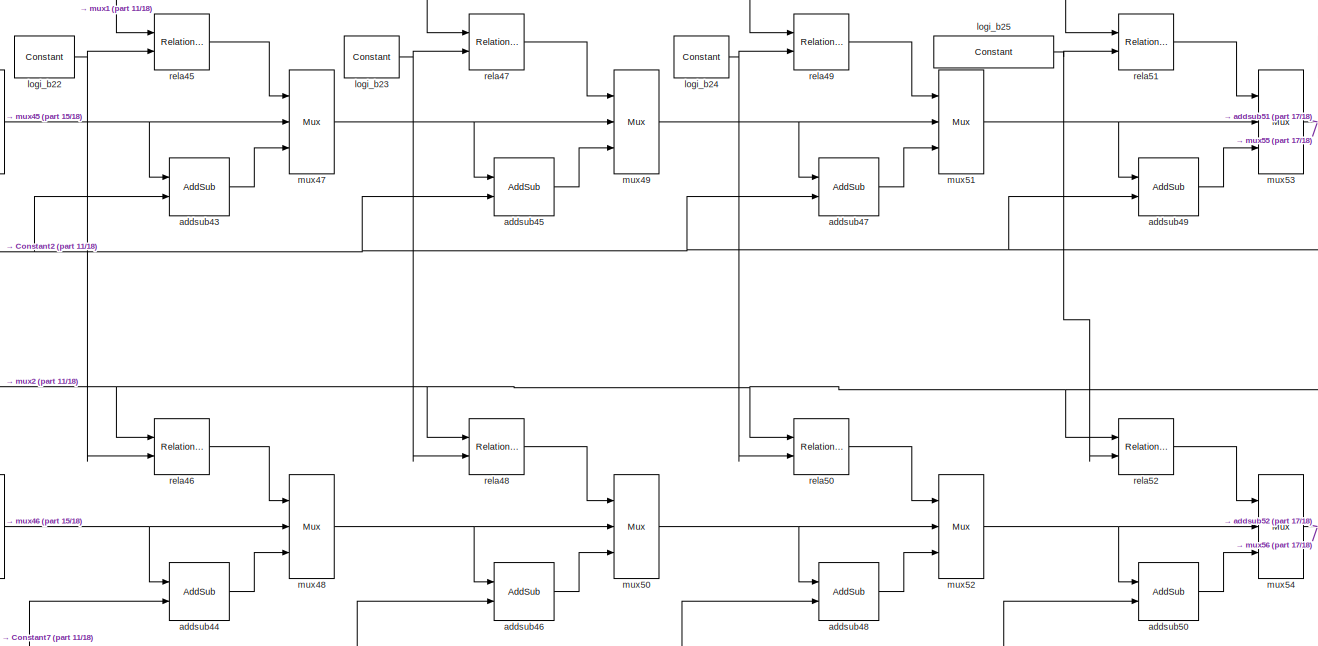
[diagram: pca50 - part 16/18, center side, full height]
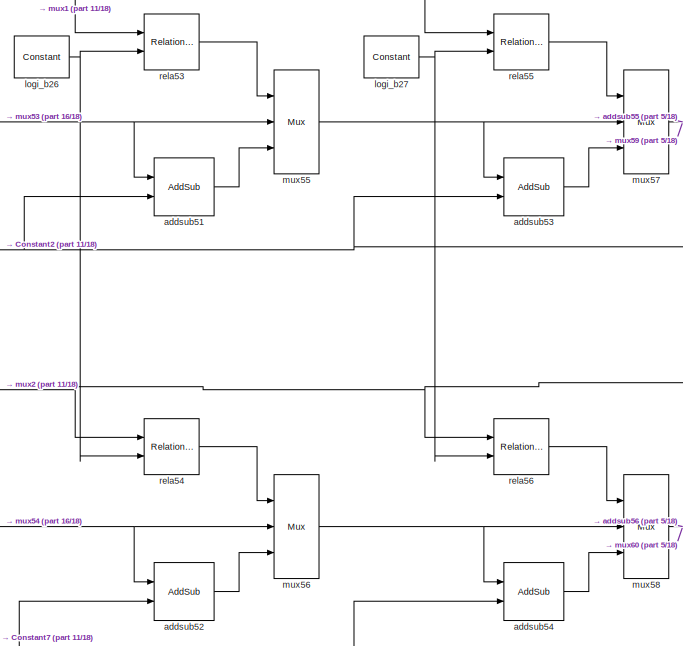
[diagram: pca50 - part 17/18, center side, full height]
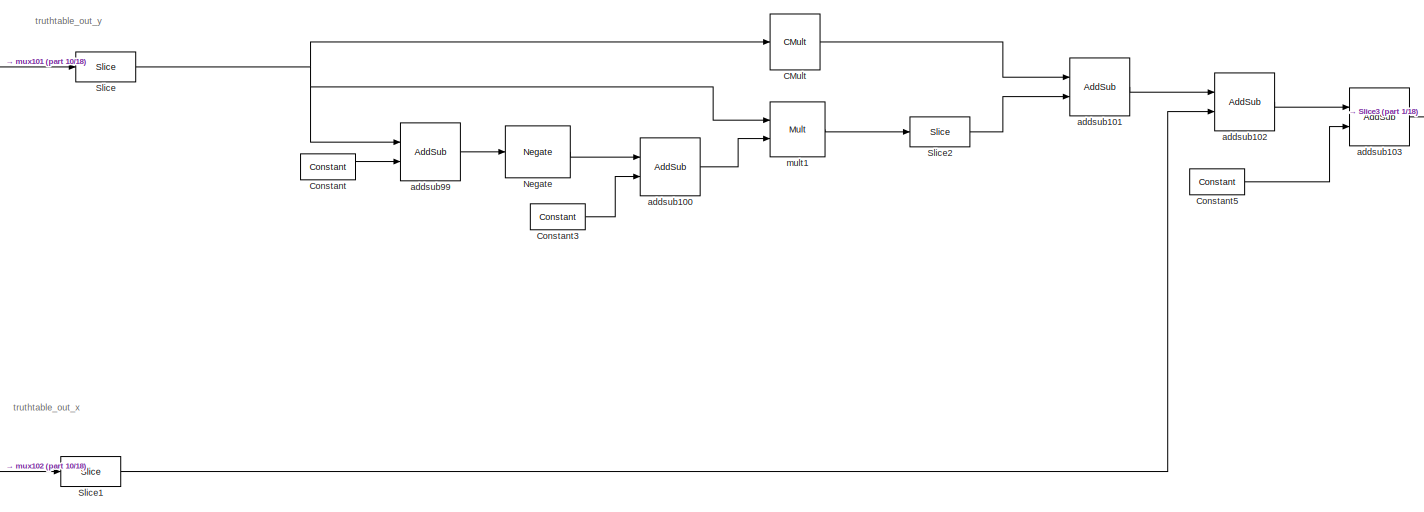
[diagram: pca50 - part 18/18, middle right region]
BLOCK [SubSystem] pca50
  Ports = [2, 1]
  RequestExecContextInheritance = off
BLOCK [Reference] pca50/CMult  REF=hdlBasic/CMult
  Ports = [1, 1]
  SourceBlock = hdlBasic/CMult
  SourceType = Constant Multiplier Block
BLOCK [Reference] pca50/Concat  REF=hdlBasic/Concat
  Ports = [16, 1]
  SourceBlock = hdlBasic/Concat
  SourceType = Bus Concatenator Block
BLOCK [Reference] pca50/Constant  REF=hdlBasic/Constant
  Ports = [0, 1]
  SourceBlock = hdlBasic/Constant
  SourceType = Constant Block Block
BLOCK [Reference] pca50/Constant1  REF=hdlBasic/Constant
  Ports = [0, 1]
  SourceBlock = hdlBasic/Constant
  SourceType = Constant Block Block
BLOCK [Reference] pca50/Constant2  REF=hdlBasic/Constant
  Ports = [0, 1]
  SourceBlock = hdlBasic/Constant
  SourceType = Constant Block Block
BLOCK [Reference] pca50/Constant3  REF=hdlBasic/Constant
  Ports = [0, 1]
  SourceBlock = hdlBasic/Constant
  SourceType = Constant Block Block
BLOCK [Reference] pca50/Constant5  REF=hdlBasic/Constant
  Ports = [0, 1]
  SourceBlock = hdlBasic/Constant
  SourceType = Constant Block Block
BLOCK [Reference] pca50/Constant6  REF=hdlBasic/Constant
  Ports = [0, 1]
  SourceBlock = hdlBasic/Constant
  SourceType = Constant Block Block
BLOCK [Reference] pca50/Constant7  REF=hdlBasic/Constant
  Ports = [0, 1]
  SourceBlock = hdlBasic/Constant
  SourceType = Constant Block Block
BLOCK [Reference] pca50/Convert23  REF=hdlBasic/Convert
  Commented = on
  Ports = [1, 1]
  SourceBlock = hdlBasic/Convert
  SourceType = Type Converter Block
BLOCK [Reference] pca50/Gate_In1  REF=hdlBasic/Gateway In
  Ports = [1, 1]
  SourceBlock = hdlBasic/Gateway In
  SourceType = Gateway In Block
BLOCK [Reference] pca50/Gate_In2  REF=hdlBasic/Gateway In
  Ports = [1, 1]
  SourceBlock = hdlBasic/Gateway In
  SourceType = Gateway In Block
BLOCK [Inport] pca50/In3
BLOCK [Inport] pca50/In4
  Port = 2
BLOCK [Reference] pca50/Negate  REF=hdlBasic/Negate
  Ports = [1, 1]
  SourceBlock = hdlBasic/Negate
  SourceType = Negate Block Block
BLOCK [Outport] pca50/Output
BLOCK [Reference] pca50/ROM1  REF=hdlBasic/ROM
  Ports = [1, 1]
  SourceBlock = hdlBasic/ROM
  SourceType = Single Port Read-Only Memory Block
BLOCK [Reference] pca50/ROM10  REF=hdlBasic/ROM
  Ports = [1, 1]
  SourceBlock = hdlBasic/ROM
  SourceType = Single Port Read-Only Memory Block
BLOCK [Reference] pca50/ROM11  REF=hdlBasic/ROM
  Ports = [1, 1]
  SourceBlock = hdlBasic/ROM
  SourceType = Single Port Read-Only Memory Block
BLOCK [Reference] pca50/ROM12  REF=hdlBasic/ROM
  Ports = [1, 1]
  SourceBlock = hdlBasic/ROM
  SourceType = Single Port Read-Only Memory Block
BLOCK [Reference] pca50/ROM13  REF=hdlBasic/ROM
  Ports = [1, 1]
  SourceBlock = hdlBasic/ROM
  SourceType = Single Port Read-Only Memory Block
BLOCK [Reference] pca50/ROM14  REF=hdlBasic/ROM
  Ports = [1, 1]
  SourceBlock = hdlBasic/ROM
  SourceType = Single Port Read-Only Memory Block
BLOCK [Reference] pca50/ROM15  REF=hdlBasic/ROM
  Ports = [1, 1]
  SourceBlock = hdlBasic/ROM
  SourceType = Single Port Read-Only Memory Block
BLOCK [Reference] pca50/ROM16  REF=hdlBasic/ROM
  Ports = [1, 1]
  SourceBlock = hdlBasic/ROM
  SourceType = Single Port Read-Only Memory Block
BLOCK [Reference] pca50/ROM2  REF=hdlBasic/ROM
  Ports = [1, 1]
  SourceBlock = hdlBasic/ROM
  SourceType = Single Port Read-Only Memory Block
BLOCK [Reference] pca50/ROM3  REF=hdlBasic/ROM
  Ports = [1, 1]
  SourceBlock = hdlBasic/ROM
  SourceType = Single Port Read-Only Memory Block
BLOCK [Reference] pca50/ROM4  REF=hdlBasic/ROM
  Ports = [1, 1]
  SourceBlock = hdlBasic/ROM
  SourceType = Single Port Read-Only Memory Block
BLOCK [Reference] pca50/ROM5  REF=hdlBasic/ROM
  Ports = [1, 1]
  SourceBlock = hdlBasic/ROM
  SourceType = Single Port Read-Only Memory Block
BLOCK [Reference] pca50/ROM6  REF=hdlBasic/ROM
  Ports = [1, 1]
  SourceBlock = hdlBasic/ROM
  SourceType = Single Port Read-Only Memory Block
BLOCK [Reference] pca50/ROM7  REF=hdlBasic/ROM
  Ports = [1, 1]
  SourceBlock = hdlBasic/ROM
  SourceType = Single Port Read-Only Memory Block
BLOCK [Reference] pca50/ROM8  REF=hdlBasic/ROM
  Ports = [1, 1]
  SourceBlock = hdlBasic/ROM
  SourceType = Single Port Read-Only Memory Block
BLOCK [Reference] pca50/ROM9  REF=hdlBasic/ROM
  Ports = [1, 1]
  SourceBlock = hdlBasic/ROM
  SourceType = Single Port Read-Only Memory Block
BLOCK [Reference] pca50/Scaling  REF=hdlBasic/Scale
  Ports = [1, 1]
  SourceBlock = hdlBasic/Scale
  SourceType = Input Scaler Block
BLOCK [Reference] pca50/Slice  REF=hdlBasic/Slice
  Ports = [1, 1]
  SourceBlock = hdlBasic/Slice
  SourceType = Bit Slice Extractor Block
BLOCK [Reference] pca50/Slice1  REF=hdlBasic/Slice
  Ports = [1, 1]
  SourceBlock = hdlBasic/Slice
  SourceType = Bit Slice Extractor Block
BLOCK [Reference] pca50/Slice2  REF=hdlBasic/Slice
  Ports = [1, 1]
  SourceBlock = hdlBasic/Slice
  SourceType = Bit Slice Extractor Block
BLOCK [Reference] pca50/Slice3  REF=hdlBasic/Slice
  Ports = [1, 1]
  SourceBlock = hdlBasic/Slice
  SourceType = Bit Slice Extractor Block
BLOCK [Reference] pca50/addsub1  REF=hdlBasic/AddSub
  Ports = [2, 1]
  SourceBlock = hdlBasic/AddSub
  SourceType = Adder/Subtracter Block
BLOCK [Reference] pca50/addsub10  REF=hdlBasic/AddSub
  Ports = [2, 1]
  SourceBlock = hdlBasic/AddSub
  SourceType = Adder/Subtracter Block
BLOCK [Reference] pca50/addsub100  REF=hdlBasic/AddSub
  Ports = [2, 1]
  SourceBlock = hdlBasic/AddSub
  SourceType = Adder/Subtracter Block
BLOCK [Reference] pca50/addsub101  REF=hdlBasic/AddSub
  Ports = [2, 1]
  SourceBlock = hdlBasic/AddSub
  SourceType = Adder/Subtracter Block
BLOCK [Reference] pca50/addsub102  REF=hdlBasic/AddSub
  Ports = [2, 1]
  SourceBlock = hdlBasic/AddSub
  SourceType = Adder/Subtracter Block
BLOCK [Reference] pca50/addsub103  REF=hdlBasic/AddSub
  Ports = [2, 1]
  SourceBlock = hdlBasic/AddSub
  SourceType = Adder/Subtracter Block
BLOCK [Reference] pca50/addsub11  REF=hdlBasic/AddSub
  Ports = [2, 1]
  SourceBlock = hdlBasic/AddSub
  SourceType = Adder/Subtracter Block
BLOCK [Reference] pca50/addsub12  REF=hdlBasic/AddSub
  Ports = [2, 1]
  SourceBlock = hdlBasic/AddSub
  SourceType = Adder/Subtracter Block
BLOCK [Reference] pca50/addsub13  REF=hdlBasic/AddSub
  Ports = [2, 1]
  SourceBlock = hdlBasic/AddSub
  SourceType = Adder/Subtracter Block
BLOCK [Reference] pca50/addsub14  REF=hdlBasic/AddSub
  Ports = [2, 1]
  SourceBlock = hdlBasic/AddSub
  SourceType = Adder/Subtracter Block
BLOCK [Reference] pca50/addsub15  REF=hdlBasic/AddSub
  Ports = [2, 1]
  SourceBlock = hdlBasic/AddSub
  SourceType = Adder/Subtracter Block
BLOCK [Reference] pca50/addsub16  REF=hdlBasic/AddSub
  Ports = [2, 1]
  SourceBlock = hdlBasic/AddSub
  SourceType = Adder/Subtracter Block
BLOCK [Reference] pca50/addsub17  REF=hdlBasic/AddSub
  Ports = [2, 1]
  SourceBlock = hdlBasic/AddSub
  SourceType = Adder/Subtracter Block
BLOCK [Reference] pca50/addsub18  REF=hdlBasic/AddSub
  Ports = [2, 1]
  SourceBlock = hdlBasic/AddSub
  SourceType = Adder/Subtracter Block
BLOCK [Reference] pca50/addsub19  REF=hdlBasic/AddSub
  Ports = [2, 1]
  SourceBlock = hdlBasic/AddSub
  SourceType = Adder/Subtracter Block
BLOCK [Reference] pca50/addsub2  REF=hdlBasic/AddSub
  Ports = [2, 1]
  SourceBlock = hdlBasic/AddSub
  SourceType = Adder/Subtracter Block
BLOCK [Reference] pca50/addsub20  REF=hdlBasic/AddSub
  Ports = [2, 1]
  SourceBlock = hdlBasic/AddSub
  SourceType = Adder/Subtracter Block
BLOCK [Reference] pca50/addsub21  REF=hdlBasic/AddSub
  Ports = [2, 1]
  SourceBlock = hdlBasic/AddSub
  SourceType = Adder/Subtracter Block
BLOCK [Reference] pca50/addsub22  REF=hdlBasic/AddSub
  Ports = [2, 1]
  SourceBlock = hdlBasic/AddSub
  SourceType = Adder/Subtracter Block
BLOCK [Reference] pca50/addsub23  REF=hdlBasic/AddSub
  Ports = [2, 1]
  SourceBlock = hdlBasic/AddSub
  SourceType = Adder/Subtracter Block
BLOCK [Reference] pca50/addsub24  REF=hdlBasic/AddSub
  Ports = [2, 1]
  SourceBlock = hdlBasic/AddSub
  SourceType = Adder/Subtracter Block
BLOCK [Reference] pca50/addsub25  REF=hdlBasic/AddSub
  Ports = [2, 1]
  SourceBlock = hdlBasic/AddSub
  SourceType = Adder/Subtracter Block
BLOCK [Reference] pca50/addsub26  REF=hdlBasic/AddSub
  Ports = [2, 1]
  SourceBlock = hdlBasic/AddSub
  SourceType = Adder/Subtracter Block
BLOCK [Reference] pca50/addsub27  REF=hdlBasic/AddSub
  Ports = [2, 1]
  SourceBlock = hdlBasic/AddSub
  SourceType = Adder/Subtracter Block
BLOCK [Reference] pca50/addsub28  REF=hdlBasic/AddSub
  Ports = [2, 1]
  SourceBlock = hdlBasic/AddSub
  SourceType = Adder/Subtracter Block
BLOCK [Reference] pca50/addsub29  REF=hdlBasic/AddSub
  Ports = [2, 1]
  SourceBlock = hdlBasic/AddSub
  SourceType = Adder/Subtracter Block
BLOCK [Reference] pca50/addsub3  REF=hdlBasic/AddSub
  Ports = [2, 1]
  SourceBlock = hdlBasic/AddSub
  SourceType = Adder/Subtracter Block
BLOCK [Reference] pca50/addsub30  REF=hdlBasic/AddSub
  Ports = [2, 1]
  SourceBlock = hdlBasic/AddSub
  SourceType = Adder/Subtracter Block
BLOCK [Reference] pca50/addsub31  REF=hdlBasic/AddSub
  Ports = [2, 1]
  SourceBlock = hdlBasic/AddSub
  SourceType = Adder/Subtracter Block
BLOCK [Reference] pca50/addsub32  REF=hdlBasic/AddSub
  Ports = [2, 1]
  SourceBlock = hdlBasic/AddSub
  SourceType = Adder/Subtracter Block
BLOCK [Reference] pca50/addsub33  REF=hdlBasic/AddSub
  Ports = [2, 1]
  SourceBlock = hdlBasic/AddSub
  SourceType = Adder/Subtracter Block
BLOCK [Reference] pca50/addsub34  REF=hdlBasic/AddSub
  Ports = [2, 1]
  SourceBlock = hdlBasic/AddSub
  SourceType = Adder/Subtracter Block
BLOCK [Reference] pca50/addsub35  REF=hdlBasic/AddSub
  Ports = [2, 1]
  SourceBlock = hdlBasic/AddSub
  SourceType = Adder/Subtracter Block
BLOCK [Reference] pca50/addsub36  REF=hdlBasic/AddSub
  Ports = [2, 1]
  SourceBlock = hdlBasic/AddSub
  SourceType = Adder/Subtracter Block
BLOCK [Reference] pca50/addsub37  REF=hdlBasic/AddSub
  Ports = [2, 1]
  SourceBlock = hdlBasic/AddSub
  SourceType = Adder/Subtracter Block
BLOCK [Reference] pca50/addsub38  REF=hdlBasic/AddSub
  Ports = [2, 1]
  SourceBlock = hdlBasic/AddSub
  SourceType = Adder/Subtracter Block
BLOCK [Reference] pca50/addsub39  REF=hdlBasic/AddSub
  Ports = [2, 1]
  SourceBlock = hdlBasic/AddSub
  SourceType = Adder/Subtracter Block
BLOCK [Reference] pca50/addsub4  REF=hdlBasic/AddSub
  Ports = [2, 1]
  SourceBlock = hdlBasic/AddSub
  SourceType = Adder/Subtracter Block
BLOCK [Reference] pca50/addsub40  REF=hdlBasic/AddSub
  Ports = [2, 1]
  SourceBlock = hdlBasic/AddSub
  SourceType = Adder/Subtracter Block
BLOCK [Reference] pca50/addsub41  REF=hdlBasic/AddSub
  Ports = [2, 1]
  SourceBlock = hdlBasic/AddSub
  SourceType = Adder/Subtracter Block
BLOCK [Reference] pca50/addsub42  REF=hdlBasic/AddSub
  Ports = [2, 1]
  SourceBlock = hdlBasic/AddSub
  SourceType = Adder/Subtracter Block
BLOCK [Reference] pca50/addsub43  REF=hdlBasic/AddSub
  Ports = [2, 1]
  SourceBlock = hdlBasic/AddSub
  SourceType = Adder/Subtracter Block
BLOCK [Reference] pca50/addsub44  REF=hdlBasic/AddSub
  Ports = [2, 1]
  SourceBlock = hdlBasic/AddSub
  SourceType = Adder/Subtracter Block
BLOCK [Reference] pca50/addsub45  REF=hdlBasic/AddSub
  Ports = [2, 1]
  SourceBlock = hdlBasic/AddSub
  SourceType = Adder/Subtracter Block
BLOCK [Reference] pca50/addsub46  REF=hdlBasic/AddSub
  Ports = [2, 1]
  SourceBlock = hdlBasic/AddSub
  SourceType = Adder/Subtracter Block
BLOCK [Reference] pca50/addsub47  REF=hdlBasic/AddSub
  Ports = [2, 1]
  SourceBlock = hdlBasic/AddSub
  SourceType = Adder/Subtracter Block
BLOCK [Reference] pca50/addsub48  REF=hdlBasic/AddSub
  Ports = [2, 1]
  SourceBlock = hdlBasic/AddSub
  SourceType = Adder/Subtracter Block
BLOCK [Reference] pca50/addsub49  REF=hdlBasic/AddSub
  Ports = [2, 1]
  SourceBlock = hdlBasic/AddSub
  SourceType = Adder/Subtracter Block
BLOCK [Reference] pca50/addsub5  REF=hdlBasic/AddSub
  Ports = [2, 1]
  SourceBlock = hdlBasic/AddSub
  SourceType = Adder/Subtracter Block
BLOCK [Reference] pca50/addsub50  REF=hdlBasic/AddSub
  Ports = [2, 1]
  SourceBlock = hdlBasic/AddSub
  SourceType = Adder/Subtracter Block
BLOCK [Reference] pca50/addsub51  REF=hdlBasic/AddSub
  Ports = [2, 1]
  SourceBlock = hdlBasic/AddSub
  SourceType = Adder/Subtracter Block
BLOCK [Reference] pca50/addsub52  REF=hdlBasic/AddSub
  Ports = [2, 1]
  SourceBlock = hdlBasic/AddSub
  SourceType = Adder/Subtracter Block
BLOCK [Reference] pca50/addsub53  REF=hdlBasic/AddSub
  Ports = [2, 1]
  SourceBlock = hdlBasic/AddSub
  SourceType = Adder/Subtracter Block
BLOCK [Reference] pca50/addsub54  REF=hdlBasic/AddSub
  Ports = [2, 1]
  SourceBlock = hdlBasic/AddSub
  SourceType = Adder/Subtracter Block
BLOCK [Reference] pca50/addsub55  REF=hdlBasic/AddSub
  Ports = [2, 1]
  SourceBlock = hdlBasic/AddSub
  SourceType = Adder/Subtracter Block
BLOCK [Reference] pca50/addsub56  REF=hdlBasic/AddSub
  Ports = [2, 1]
  SourceBlock = hdlBasic/AddSub
  SourceType = Adder/Subtracter Block
BLOCK [Reference] pca50/addsub57  REF=hdlBasic/AddSub
  Ports = [2, 1]
  SourceBlock = hdlBasic/AddSub
  SourceType = Adder/Subtracter Block
BLOCK [Reference] pca50/addsub58  REF=hdlBasic/AddSub
  Ports = [2, 1]
  SourceBlock = hdlBasic/AddSub
  SourceType = Adder/Subtracter Block
BLOCK [Reference] pca50/addsub59  REF=hdlBasic/AddSub
  Ports = [2, 1]
  SourceBlock = hdlBasic/AddSub
  SourceType = Adder/Subtracter Block
BLOCK [Reference] pca50/addsub6  REF=hdlBasic/AddSub
  Ports = [2, 1]
  SourceBlock = hdlBasic/AddSub
  SourceType = Adder/Subtracter Block
BLOCK [Reference] pca50/addsub60  REF=hdlBasic/AddSub
  Ports = [2, 1]
  SourceBlock = hdlBasic/AddSub
  SourceType = Adder/Subtracter Block
BLOCK [Reference] pca50/addsub61  REF=hdlBasic/AddSub
  Ports = [2, 1]
  SourceBlock = hdlBasic/AddSub
  SourceType = Adder/Subtracter Block
BLOCK [Reference] pca50/addsub62  REF=hdlBasic/AddSub
  Ports = [2, 1]
  SourceBlock = hdlBasic/AddSub
  SourceType = Adder/Subtracter Block
BLOCK [Reference] pca50/addsub63  REF=hdlBasic/AddSub
  Ports = [2, 1]
  SourceBlock = hdlBasic/AddSub
  SourceType = Adder/Subtracter Block
BLOCK [Reference] pca50/addsub64  REF=hdlBasic/AddSub
  Ports = [2, 1]
  SourceBlock = hdlBasic/AddSub
  SourceType = Adder/Subtracter Block
BLOCK [Reference] pca50/addsub65  REF=hdlBasic/AddSub
  Ports = [2, 1]
  SourceBlock = hdlBasic/AddSub
  SourceType = Adder/Subtracter Block
BLOCK [Reference] pca50/addsub66  REF=hdlBasic/AddSub
  Ports = [2, 1]
  SourceBlock = hdlBasic/AddSub
  SourceType = Adder/Subtracter Block
BLOCK [Reference] pca50/addsub67  REF=hdlBasic/AddSub
  Ports = [2, 1]
  SourceBlock = hdlBasic/AddSub
  SourceType = Adder/Subtracter Block
BLOCK [Reference] pca50/addsub68  REF=hdlBasic/AddSub
  Ports = [2, 1]
  SourceBlock = hdlBasic/AddSub
  SourceType = Adder/Subtracter Block
BLOCK [Reference] pca50/addsub69  REF=hdlBasic/AddSub
  Ports = [2, 1]
  SourceBlock = hdlBasic/AddSub
  SourceType = Adder/Subtracter Block
BLOCK [Reference] pca50/addsub7  REF=hdlBasic/AddSub
  Ports = [2, 1]
  SourceBlock = hdlBasic/AddSub
  SourceType = Adder/Subtracter Block
BLOCK [Reference] pca50/addsub70  REF=hdlBasic/AddSub
  Ports = [2, 1]
  SourceBlock = hdlBasic/AddSub
  SourceType = Adder/Subtracter Block
BLOCK [Reference] pca50/addsub71  REF=hdlBasic/AddSub
  Ports = [2, 1]
  SourceBlock = hdlBasic/AddSub
  SourceType = Adder/Subtracter Block
BLOCK [Reference] pca50/addsub72  REF=hdlBasic/AddSub
  Ports = [2, 1]
  SourceBlock = hdlBasic/AddSub
  SourceType = Adder/Subtracter Block
BLOCK [Reference] pca50/addsub73  REF=hdlBasic/AddSub
  Ports = [2, 1]
  SourceBlock = hdlBasic/AddSub
  SourceType = Adder/Subtracter Block
BLOCK [Reference] pca50/addsub74  REF=hdlBasic/AddSub
  Ports = [2, 1]
  SourceBlock = hdlBasic/AddSub
  SourceType = Adder/Subtracter Block
BLOCK [Reference] pca50/addsub75  REF=hdlBasic/AddSub
  Ports = [2, 1]
  SourceBlock = hdlBasic/AddSub
  SourceType = Adder/Subtracter Block
BLOCK [Reference] pca50/addsub76  REF=hdlBasic/AddSub
  Ports = [2, 1]
  SourceBlock = hdlBasic/AddSub
  SourceType = Adder/Subtracter Block
BLOCK [Reference] pca50/addsub77  REF=hdlBasic/AddSub
  Ports = [2, 1]
  SourceBlock = hdlBasic/AddSub
  SourceType = Adder/Subtracter Block
BLOCK [Reference] pca50/addsub78  REF=hdlBasic/AddSub
  Ports = [2, 1]
  SourceBlock = hdlBasic/AddSub
  SourceType = Adder/Subtracter Block
BLOCK [Reference] pca50/addsub79  REF=hdlBasic/AddSub
  Ports = [2, 1]
  SourceBlock = hdlBasic/AddSub
  SourceType = Adder/Subtracter Block
BLOCK [Reference] pca50/addsub8  REF=hdlBasic/AddSub
  Ports = [2, 1]
  SourceBlock = hdlBasic/AddSub
  SourceType = Adder/Subtracter Block
BLOCK [Reference] pca50/addsub80  REF=hdlBasic/AddSub
  Ports = [2, 1]
  SourceBlock = hdlBasic/AddSub
  SourceType = Adder/Subtracter Block
BLOCK [Reference] pca50/addsub81  REF=hdlBasic/AddSub
  Ports = [2, 1]
  SourceBlock = hdlBasic/AddSub
  SourceType = Adder/Subtracter Block
BLOCK [Reference] pca50/addsub82  REF=hdlBasic/AddSub
  Ports = [2, 1]
  SourceBlock = hdlBasic/AddSub
  SourceType = Adder/Subtracter Block
BLOCK [Reference] pca50/addsub83  REF=hdlBasic/AddSub
  Ports = [2, 1]
  SourceBlock = hdlBasic/AddSub
  SourceType = Adder/Subtracter Block
BLOCK [Reference] pca50/addsub84  REF=hdlBasic/AddSub
  Ports = [2, 1]
  SourceBlock = hdlBasic/AddSub
  SourceType = Adder/Subtracter Block
BLOCK [Reference] pca50/addsub85  REF=hdlBasic/AddSub
  Ports = [2, 1]
  SourceBlock = hdlBasic/AddSub
  SourceType = Adder/Subtracter Block
BLOCK [Reference] pca50/addsub86  REF=hdlBasic/AddSub
  Ports = [2, 1]
  SourceBlock = hdlBasic/AddSub
  SourceType = Adder/Subtracter Block
BLOCK [Reference] pca50/addsub87  REF=hdlBasic/AddSub
  Ports = [2, 1]
  SourceBlock = hdlBasic/AddSub
  SourceType = Adder/Subtracter Block
BLOCK [Reference] pca50/addsub88  REF=hdlBasic/AddSub
  Ports = [2, 1]
  SourceBlock = hdlBasic/AddSub
  SourceType = Adder/Subtracter Block
BLOCK [Reference] pca50/addsub89  REF=hdlBasic/AddSub
  Ports = [2, 1]
  SourceBlock = hdlBasic/AddSub
  SourceType = Adder/Subtracter Block
BLOCK [Reference] pca50/addsub9  REF=hdlBasic/AddSub
  Ports = [2, 1]
  SourceBlock = hdlBasic/AddSub
  SourceType = Adder/Subtracter Block
BLOCK [Reference] pca50/addsub90  REF=hdlBasic/AddSub
  Ports = [2, 1]
  SourceBlock = hdlBasic/AddSub
  SourceType = Adder/Subtracter Block
BLOCK [Reference] pca50/addsub91  REF=hdlBasic/AddSub
  Ports = [2, 1]
  SourceBlock = hdlBasic/AddSub
  SourceType = Adder/Subtracter Block
BLOCK [Reference] pca50/addsub92  REF=hdlBasic/AddSub
  Ports = [2, 1]
  SourceBlock = hdlBasic/AddSub
  SourceType = Adder/Subtracter Block
BLOCK [Reference] pca50/addsub93  REF=hdlBasic/AddSub
  Ports = [2, 1]
  SourceBlock = hdlBasic/AddSub
  SourceType = Adder/Subtracter Block
BLOCK [Reference] pca50/addsub94  REF=hdlBasic/AddSub
  Ports = [2, 1]
  SourceBlock = hdlBasic/AddSub
  SourceType = Adder/Subtracter Block
BLOCK [Reference] pca50/addsub95  REF=hdlBasic/AddSub
  Ports = [2, 1]
  SourceBlock = hdlBasic/AddSub
  SourceType = Adder/Subtracter Block
BLOCK [Reference] pca50/addsub96  REF=hdlBasic/AddSub
  Ports = [2, 1]
  SourceBlock = hdlBasic/AddSub
  SourceType = Adder/Subtracter Block
BLOCK [Reference] pca50/addsub97  REF=hdlBasic/AddSub
  Ports = [2, 1]
  SourceBlock = hdlBasic/AddSub
  SourceType = Adder/Subtracter Block
BLOCK [Reference] pca50/addsub98  REF=hdlBasic/AddSub
  Ports = [2, 1]
  SourceBlock = hdlBasic/AddSub
  SourceType = Adder/Subtracter Block
BLOCK [Reference] pca50/addsub99  REF=hdlBasic/AddSub
  Ports = [2, 1]
  SourceBlock = hdlBasic/AddSub
  SourceType = Adder/Subtracter Block
BLOCK [Reference] pca50/bool1  REF=hdlBasic/Relational
  Ports = [2, 1]
  SourceBlock = hdlBasic/Relational
  SourceType = Arithmetic Relational Operator Block
BLOCK [Reference] pca50/logi_b0  REF=hdlBasic/Constant
  Ports = [0, 1]
  SourceBlock = hdlBasic/Constant
  SourceType = Constant Block Block
BLOCK [Reference] pca50/logi_b1  REF=hdlBasic/Constant
  Ports = [0, 1]
  SourceBlock = hdlBasic/Constant
  SourceType = Constant Block Block
BLOCK [Reference] pca50/logi_b10  REF=hdlBasic/Constant
  Ports = [0, 1]
  SourceBlock = hdlBasic/Constant
  SourceType = Constant Block Block
BLOCK [Reference] pca50/logi_b11  REF=hdlBasic/Constant
  Ports = [0, 1]
  SourceBlock = hdlBasic/Constant
  SourceType = Constant Block Block
BLOCK [Reference] pca50/logi_b12  REF=hdlBasic/Constant
  Ports = [0, 1]
  SourceBlock = hdlBasic/Constant
  SourceType = Constant Block Block
BLOCK [Reference] pca50/logi_b13  REF=hdlBasic/Constant
  Ports = [0, 1]
  SourceBlock = hdlBasic/Constant
  SourceType = Constant Block Block
BLOCK [Reference] pca50/logi_b14  REF=hdlBasic/Constant
  Ports = [0, 1]
  SourceBlock = hdlBasic/Constant
  SourceType = Constant Block Block
BLOCK [Reference] pca50/logi_b15  REF=hdlBasic/Constant
  Ports = [0, 1]
  SourceBlock = hdlBasic/Constant
  SourceType = Constant Block Block
BLOCK [Reference] pca50/logi_b16  REF=hdlBasic/Constant
  Ports = [0, 1]
  SourceBlock = hdlBasic/Constant
  SourceType = Constant Block Block
BLOCK [Reference] pca50/logi_b17  REF=hdlBasic/Constant
  Ports = [0, 1]
  SourceBlock = hdlBasic/Constant
  SourceType = Constant Block Block
BLOCK [Reference] pca50/logi_b18  REF=hdlBasic/Constant
  Ports = [0, 1]
  SourceBlock = hdlBasic/Constant
  SourceType = Constant Block Block
BLOCK [Reference] pca50/logi_b19  REF=hdlBasic/Constant
  Ports = [0, 1]
  SourceBlock = hdlBasic/Constant
  SourceType = Constant Block Block
BLOCK [Reference] pca50/logi_b2  REF=hdlBasic/Constant
  Ports = [0, 1]
  SourceBlock = hdlBasic/Constant
  SourceType = Constant Block Block
BLOCK [Reference] pca50/logi_b20  REF=hdlBasic/Constant
  Ports = [0, 1]
  SourceBlock = hdlBasic/Constant
  SourceType = Constant Block Block
BLOCK [Reference] pca50/logi_b21  REF=hdlBasic/Constant
  Ports = [0, 1]
  SourceBlock = hdlBasic/Constant
  SourceType = Constant Block Block
BLOCK [Reference] pca50/logi_b22  REF=hdlBasic/Constant
  Ports = [0, 1]
  SourceBlock = hdlBasic/Constant
  SourceType = Constant Block Block
BLOCK [Reference] pca50/logi_b23  REF=hdlBasic/Constant
  Ports = [0, 1]
  SourceBlock = hdlBasic/Constant
  SourceType = Constant Block Block
BLOCK [Reference] pca50/logi_b24  REF=hdlBasic/Constant
  Ports = [0, 1]
  SourceBlock = hdlBasic/Constant
  SourceType = Constant Block Block
BLOCK [Reference] pca50/logi_b25  REF=hdlBasic/Constant
  Ports = [0, 1]
  SourceBlock = hdlBasic/Constant
  SourceType = Constant Block Block
BLOCK [Reference] pca50/logi_b26  REF=hdlBasic/Constant
  Ports = [0, 1]
  SourceBlock = hdlBasic/Constant
  SourceType = Constant Block Block
BLOCK [Reference] pca50/logi_b27  REF=hdlBasic/Constant
  Ports = [0, 1]
  SourceBlock = hdlBasic/Constant
  SourceType = Constant Block Block
BLOCK [Reference] pca50/logi_b28  REF=hdlBasic/Constant
  Ports = [0, 1]
  SourceBlock = hdlBasic/Constant
  SourceType = Constant Block Block
BLOCK [Reference] pca50/logi_b29  REF=hdlBasic/Constant
  Ports = [0, 1]
  SourceBlock = hdlBasic/Constant
  SourceType = Constant Block Block
BLOCK [Reference] pca50/logi_b3  REF=hdlBasic/Constant
  Ports = [0, 1]
  SourceBlock = hdlBasic/Constant
  SourceType = Constant Block Block
BLOCK [Reference] pca50/logi_b30  REF=hdlBasic/Constant
  Ports = [0, 1]
  SourceBlock = hdlBasic/Constant
  SourceType = Constant Block Block
BLOCK [Reference] pca50/logi_b31  REF=hdlBasic/Constant
  Ports = [0, 1]
  SourceBlock = hdlBasic/Constant
  SourceType = Constant Block Block
BLOCK [Reference] pca50/logi_b32  REF=hdlBasic/Constant
  Ports = [0, 1]
  SourceBlock = hdlBasic/Constant
  SourceType = Constant Block Block
BLOCK [Reference] pca50/logi_b33  REF=hdlBasic/Constant
  Ports = [0, 1]
  SourceBlock = hdlBasic/Constant
  SourceType = Constant Block Block
BLOCK [Reference] pca50/logi_b34  REF=hdlBasic/Constant
  Ports = [0, 1]
  SourceBlock = hdlBasic/Constant
  SourceType = Constant Block Block
BLOCK [Reference] pca50/logi_b35  REF=hdlBasic/Constant
  Ports = [0, 1]
  SourceBlock = hdlBasic/Constant
  SourceType = Constant Block Block
BLOCK [Reference] pca50/logi_b36  REF=hdlBasic/Constant
  Ports = [0, 1]
  SourceBlock = hdlBasic/Constant
  SourceType = Constant Block Block
BLOCK [Reference] pca50/logi_b37  REF=hdlBasic/Constant
  Ports = [0, 1]
  SourceBlock = hdlBasic/Constant
  SourceType = Constant Block Block
BLOCK [Reference] pca50/logi_b38  REF=hdlBasic/Constant
  Ports = [0, 1]
  SourceBlock = hdlBasic/Constant
  SourceType = Constant Block Block
BLOCK [Reference] pca50/logi_b39  REF=hdlBasic/Constant
  Ports = [0, 1]
  SourceBlock = hdlBasic/Constant
  SourceType = Constant Block Block
BLOCK [Reference] pca50/logi_b4  REF=hdlBasic/Constant
  Ports = [0, 1]
  SourceBlock = hdlBasic/Constant
  SourceType = Constant Block Block
BLOCK [Reference] pca50/logi_b40  REF=hdlBasic/Constant
  Ports = [0, 1]
  SourceBlock = hdlBasic/Constant
  SourceType = Constant Block Block
BLOCK [Reference] pca50/logi_b41  REF=hdlBasic/Constant
  Ports = [0, 1]
  SourceBlock = hdlBasic/Constant
  SourceType = Constant Block Block
BLOCK [Reference] pca50/logi_b42  REF=hdlBasic/Constant
  Ports = [0, 1]
  SourceBlock = hdlBasic/Constant
  SourceType = Constant Block Block
BLOCK [Reference] pca50/logi_b43  REF=hdlBasic/Constant
  Ports = [0, 1]
  SourceBlock = hdlBasic/Constant
  SourceType = Constant Block Block
BLOCK [Reference] pca50/logi_b44  REF=hdlBasic/Constant
  Ports = [0, 1]
  SourceBlock = hdlBasic/Constant
  SourceType = Constant Block Block
BLOCK [Reference] pca50/logi_b45  REF=hdlBasic/Constant
  Ports = [0, 1]
  SourceBlock = hdlBasic/Constant
  SourceType = Constant Block Block
BLOCK [Reference] pca50/logi_b46  REF=hdlBasic/Constant
  Ports = [0, 1]
  SourceBlock = hdlBasic/Constant
  SourceType = Constant Block Block
BLOCK [Reference] pca50/logi_b47  REF=hdlBasic/Constant
  Ports = [0, 1]
  SourceBlock = hdlBasic/Constant
  SourceType = Constant Block Block
BLOCK [Reference] pca50/logi_b48  REF=hdlBasic/Constant
  Ports = [0, 1]
  SourceBlock = hdlBasic/Constant
  SourceType = Constant Block Block
BLOCK [Reference] pca50/logi_b49  REF=hdlBasic/Constant
  Ports = [0, 1]
  SourceBlock = hdlBasic/Constant
  SourceType = Constant Block Block
BLOCK [Reference] pca50/logi_b5  REF=hdlBasic/Constant
  Ports = [0, 1]
  SourceBlock = hdlBasic/Constant
  SourceType = Constant Block Block
BLOCK [Reference] pca50/logi_b6  REF=hdlBasic/Constant
  Ports = [0, 1]
  SourceBlock = hdlBasic/Constant
  SourceType = Constant Block Block
BLOCK [Reference] pca50/logi_b7  REF=hdlBasic/Constant
  Ports = [0, 1]
  SourceBlock = hdlBasic/Constant
  SourceType = Constant Block Block
BLOCK [Reference] pca50/logi_b8  REF=hdlBasic/Constant
  Ports = [0, 1]
  SourceBlock = hdlBasic/Constant
  SourceType = Constant Block Block
BLOCK [Reference] pca50/logi_b9  REF=hdlBasic/Constant
  Ports = [0, 1]
  SourceBlock = hdlBasic/Constant
  SourceType = Constant Block Block
BLOCK [Reference] pca50/mult1  REF=hdlBasic/Mult
  Ports = [2, 1]
  SourceBlock = hdlBasic/Mult
  SourceType = Multiplier Block
BLOCK [Reference] pca50/mux1  REF=hdlBasic/Mux
  Ports = [3, 1]
  SourceBlock = hdlBasic/Mux
  SourceType = Bus Multiplexer Block
BLOCK [Reference] pca50/mux10  REF=hdlBasic/Mux
  Ports = [3, 1]
  SourceBlock = hdlBasic/Mux
  SourceType = Bus Multiplexer Block
BLOCK [Reference] pca50/mux100  REF=hdlBasic/Mux
  Ports = [3, 1]
  SourceBlock = hdlBasic/Mux
  SourceType = Bus Multiplexer Block
BLOCK [Reference] pca50/mux101  REF=hdlBasic/Mux
  Ports = [3, 1]
  SourceBlock = hdlBasic/Mux
  SourceType = Bus Multiplexer Block
BLOCK [Reference] pca50/mux102  REF=hdlBasic/Mux
  Ports = [3, 1]
  SourceBlock = hdlBasic/Mux
  SourceType = Bus Multiplexer Block
BLOCK [Reference] pca50/mux11  REF=hdlBasic/Mux
  Ports = [3, 1]
  SourceBlock = hdlBasic/Mux
  SourceType = Bus Multiplexer Block
BLOCK [Reference] pca50/mux12  REF=hdlBasic/Mux
  Ports = [3, 1]
  SourceBlock = hdlBasic/Mux
  SourceType = Bus Multiplexer Block
BLOCK [Reference] pca50/mux13  REF=hdlBasic/Mux
  Ports = [3, 1]
  SourceBlock = hdlBasic/Mux
  SourceType = Bus Multiplexer Block
BLOCK [Reference] pca50/mux14  REF=hdlBasic/Mux
  Ports = [3, 1]
  SourceBlock = hdlBasic/Mux
  SourceType = Bus Multiplexer Block
BLOCK [Reference] pca50/mux15  REF=hdlBasic/Mux
  Ports = [3, 1]
  SourceBlock = hdlBasic/Mux
  SourceType = Bus Multiplexer Block
BLOCK [Reference] pca50/mux16  REF=hdlBasic/Mux
  Ports = [3, 1]
  SourceBlock = hdlBasic/Mux
  SourceType = Bus Multiplexer Block
BLOCK [Reference] pca50/mux17  REF=hdlBasic/Mux
  Ports = [3, 1]
  SourceBlock = hdlBasic/Mux
  SourceType = Bus Multiplexer Block
BLOCK [Reference] pca50/mux18  REF=hdlBasic/Mux
  Ports = [3, 1]
  SourceBlock = hdlBasic/Mux
  SourceType = Bus Multiplexer Block
BLOCK [Reference] pca50/mux19  REF=hdlBasic/Mux
  Ports = [3, 1]
  SourceBlock = hdlBasic/Mux
  SourceType = Bus Multiplexer Block
BLOCK [Reference] pca50/mux2  REF=hdlBasic/Mux
  Ports = [3, 1]
  SourceBlock = hdlBasic/Mux
  SourceType = Bus Multiplexer Block
BLOCK [Reference] pca50/mux20  REF=hdlBasic/Mux
  Ports = [3, 1]
  SourceBlock = hdlBasic/Mux
  SourceType = Bus Multiplexer Block
BLOCK [Reference] pca50/mux21  REF=hdlBasic/Mux
  Ports = [3, 1]
  SourceBlock = hdlBasic/Mux
  SourceType = Bus Multiplexer Block
BLOCK [Reference] pca50/mux22  REF=hdlBasic/Mux
  Ports = [3, 1]
  SourceBlock = hdlBasic/Mux
  SourceType = Bus Multiplexer Block
BLOCK [Reference] pca50/mux23  REF=hdlBasic/Mux
  Ports = [3, 1]
  SourceBlock = hdlBasic/Mux
  SourceType = Bus Multiplexer Block
BLOCK [Reference] pca50/mux24  REF=hdlBasic/Mux
  Ports = [3, 1]
  SourceBlock = hdlBasic/Mux
  SourceType = Bus Multiplexer Block
BLOCK [Reference] pca50/mux25  REF=hdlBasic/Mux
  Ports = [3, 1]
  SourceBlock = hdlBasic/Mux
  SourceType = Bus Multiplexer Block
BLOCK [Reference] pca50/mux26  REF=hdlBasic/Mux
  Ports = [3, 1]
  SourceBlock = hdlBasic/Mux
  SourceType = Bus Multiplexer Block
BLOCK [Reference] pca50/mux27  REF=hdlBasic/Mux
  Ports = [3, 1]
  SourceBlock = hdlBasic/Mux
  SourceType = Bus Multiplexer Block
BLOCK [Reference] pca50/mux28  REF=hdlBasic/Mux
  Ports = [3, 1]
  SourceBlock = hdlBasic/Mux
  SourceType = Bus Multiplexer Block
BLOCK [Reference] pca50/mux29  REF=hdlBasic/Mux
  Ports = [3, 1]
  SourceBlock = hdlBasic/Mux
  SourceType = Bus Multiplexer Block
BLOCK [Reference] pca50/mux3  REF=hdlBasic/Mux
  Ports = [3, 1]
  SourceBlock = hdlBasic/Mux
  SourceType = Bus Multiplexer Block
BLOCK [Reference] pca50/mux30  REF=hdlBasic/Mux
  Ports = [3, 1]
  SourceBlock = hdlBasic/Mux
  SourceType = Bus Multiplexer Block
BLOCK [Reference] pca50/mux31  REF=hdlBasic/Mux
  Ports = [3, 1]
  SourceBlock = hdlBasic/Mux
  SourceType = Bus Multiplexer Block
BLOCK [Reference] pca50/mux32  REF=hdlBasic/Mux
  Ports = [3, 1]
  SourceBlock = hdlBasic/Mux
  SourceType = Bus Multiplexer Block
BLOCK [Reference] pca50/mux33  REF=hdlBasic/Mux
  Ports = [3, 1]
  SourceBlock = hdlBasic/Mux
  SourceType = Bus Multiplexer Block
BLOCK [Reference] pca50/mux34  REF=hdlBasic/Mux
  Ports = [3, 1]
  SourceBlock = hdlBasic/Mux
  SourceType = Bus Multiplexer Block
BLOCK [Reference] pca50/mux35  REF=hdlBasic/Mux
  Ports = [3, 1]
  SourceBlock = hdlBasic/Mux
  SourceType = Bus Multiplexer Block
BLOCK [Reference] pca50/mux36  REF=hdlBasic/Mux
  Ports = [3, 1]
  SourceBlock = hdlBasic/Mux
  SourceType = Bus Multiplexer Block
BLOCK [Reference] pca50/mux37  REF=hdlBasic/Mux
  Ports = [3, 1]
  SourceBlock = hdlBasic/Mux
  SourceType = Bus Multiplexer Block
BLOCK [Reference] pca50/mux38  REF=hdlBasic/Mux
  Ports = [3, 1]
  SourceBlock = hdlBasic/Mux
  SourceType = Bus Multiplexer Block
BLOCK [Reference] pca50/mux39  REF=hdlBasic/Mux
  Ports = [3, 1]
  SourceBlock = hdlBasic/Mux
  SourceType = Bus Multiplexer Block
BLOCK [Reference] pca50/mux4  REF=hdlBasic/Mux
  Ports = [3, 1]
  SourceBlock = hdlBasic/Mux
  SourceType = Bus Multiplexer Block
BLOCK [Reference] pca50/mux40  REF=hdlBasic/Mux
  Ports = [3, 1]
  SourceBlock = hdlBasic/Mux
  SourceType = Bus Multiplexer Block
BLOCK [Reference] pca50/mux41  REF=hdlBasic/Mux
  Ports = [3, 1]
  SourceBlock = hdlBasic/Mux
  SourceType = Bus Multiplexer Block
BLOCK [Reference] pca50/mux42  REF=hdlBasic/Mux
  Ports = [3, 1]
  SourceBlock = hdlBasic/Mux
  SourceType = Bus Multiplexer Block
BLOCK [Reference] pca50/mux43  REF=hdlBasic/Mux
  Ports = [3, 1]
  SourceBlock = hdlBasic/Mux
  SourceType = Bus Multiplexer Block
BLOCK [Reference] pca50/mux44  REF=hdlBasic/Mux
  Ports = [3, 1]
  SourceBlock = hdlBasic/Mux
  SourceType = Bus Multiplexer Block
BLOCK [Reference] pca50/mux45  REF=hdlBasic/Mux
  Ports = [3, 1]
  SourceBlock = hdlBasic/Mux
  SourceType = Bus Multiplexer Block
BLOCK [Reference] pca50/mux46  REF=hdlBasic/Mux
  Ports = [3, 1]
  SourceBlock = hdlBasic/Mux
  SourceType = Bus Multiplexer Block
BLOCK [Reference] pca50/mux47  REF=hdlBasic/Mux
  Ports = [3, 1]
  SourceBlock = hdlBasic/Mux
  SourceType = Bus Multiplexer Block
BLOCK [Reference] pca50/mux48  REF=hdlBasic/Mux
  Ports = [3, 1]
  SourceBlock = hdlBasic/Mux
  SourceType = Bus Multiplexer Block
BLOCK [Reference] pca50/mux49  REF=hdlBasic/Mux
  Ports = [3, 1]
  SourceBlock = hdlBasic/Mux
  SourceType = Bus Multiplexer Block
BLOCK [Reference] pca50/mux5  REF=hdlBasic/Mux
  Ports = [3, 1]
  SourceBlock = hdlBasic/Mux
  SourceType = Bus Multiplexer Block
BLOCK [Reference] pca50/mux50  REF=hdlBasic/Mux
  Ports = [3, 1]
  SourceBlock = hdlBasic/Mux
  SourceType = Bus Multiplexer Block
BLOCK [Reference] pca50/mux51  REF=hdlBasic/Mux
  Ports = [3, 1]
  SourceBlock = hdlBasic/Mux
  SourceType = Bus Multiplexer Block
BLOCK [Reference] pca50/mux52  REF=hdlBasic/Mux
  Ports = [3, 1]
  SourceBlock = hdlBasic/Mux
  SourceType = Bus Multiplexer Block
BLOCK [Reference] pca50/mux53  REF=hdlBasic/Mux
  Ports = [3, 1]
  SourceBlock = hdlBasic/Mux
  SourceType = Bus Multiplexer Block
BLOCK [Reference] pca50/mux54  REF=hdlBasic/Mux
  Ports = [3, 1]
  SourceBlock = hdlBasic/Mux
  SourceType = Bus Multiplexer Block
BLOCK [Reference] pca50/mux55  REF=hdlBasic/Mux
  Ports = [3, 1]
  SourceBlock = hdlBasic/Mux
  SourceType = Bus Multiplexer Block
BLOCK [Reference] pca50/mux56  REF=hdlBasic/Mux
  Ports = [3, 1]
  SourceBlock = hdlBasic/Mux
  SourceType = Bus Multiplexer Block
BLOCK [Reference] pca50/mux57  REF=hdlBasic/Mux
  Ports = [3, 1]
  SourceBlock = hdlBasic/Mux
  SourceType = Bus Multiplexer Block
BLOCK [Reference] pca50/mux58  REF=hdlBasic/Mux
  Ports = [3, 1]
  SourceBlock = hdlBasic/Mux
  SourceType = Bus Multiplexer Block
BLOCK [Reference] pca50/mux59  REF=hdlBasic/Mux
  Ports = [3, 1]
  SourceBlock = hdlBasic/Mux
  SourceType = Bus Multiplexer Block
BLOCK [Reference] pca50/mux6  REF=hdlBasic/Mux
  Ports = [3, 1]
  SourceBlock = hdlBasic/Mux
  SourceType = Bus Multiplexer Block
BLOCK [Reference] pca50/mux60  REF=hdlBasic/Mux
  Ports = [3, 1]
  SourceBlock = hdlBasic/Mux
  SourceType = Bus Multiplexer Block
BLOCK [Reference] pca50/mux61  REF=hdlBasic/Mux
  Ports = [3, 1]
  SourceBlock = hdlBasic/Mux
  SourceType = Bus Multiplexer Block
BLOCK [Reference] pca50/mux62  REF=hdlBasic/Mux
  Ports = [3, 1]
  SourceBlock = hdlBasic/Mux
  SourceType = Bus Multiplexer Block
BLOCK [Reference] pca50/mux63  REF=hdlBasic/Mux
  Ports = [3, 1]
  SourceBlock = hdlBasic/Mux
  SourceType = Bus Multiplexer Block
BLOCK [Reference] pca50/mux64  REF=hdlBasic/Mux
  Ports = [3, 1]
  SourceBlock = hdlBasic/Mux
  SourceType = Bus Multiplexer Block
BLOCK [Reference] pca50/mux65  REF=hdlBasic/Mux
  Ports = [3, 1]
  SourceBlock = hdlBasic/Mux
  SourceType = Bus Multiplexer Block
BLOCK [Reference] pca50/mux66  REF=hdlBasic/Mux
  Ports = [3, 1]
  SourceBlock = hdlBasic/Mux
  SourceType = Bus Multiplexer Block
BLOCK [Reference] pca50/mux67  REF=hdlBasic/Mux
  Ports = [3, 1]
  SourceBlock = hdlBasic/Mux
  SourceType = Bus Multiplexer Block
BLOCK [Reference] pca50/mux68  REF=hdlBasic/Mux
  Ports = [3, 1]
  SourceBlock = hdlBasic/Mux
  SourceType = Bus Multiplexer Block
BLOCK [Reference] pca50/mux69  REF=hdlBasic/Mux
  Ports = [3, 1]
  SourceBlock = hdlBasic/Mux
  SourceType = Bus Multiplexer Block
BLOCK [Reference] pca50/mux7  REF=hdlBasic/Mux
  Ports = [3, 1]
  SourceBlock = hdlBasic/Mux
  SourceType = Bus Multiplexer Block
BLOCK [Reference] pca50/mux70  REF=hdlBasic/Mux
  Ports = [3, 1]
  SourceBlock = hdlBasic/Mux
  SourceType = Bus Multiplexer Block
BLOCK [Reference] pca50/mux71  REF=hdlBasic/Mux
  Ports = [3, 1]
  SourceBlock = hdlBasic/Mux
  SourceType = Bus Multiplexer Block
BLOCK [Reference] pca50/mux72  REF=hdlBasic/Mux
  Ports = [3, 1]
  SourceBlock = hdlBasic/Mux
  SourceType = Bus Multiplexer Block
BLOCK [Reference] pca50/mux73  REF=hdlBasic/Mux
  Ports = [3, 1]
  SourceBlock = hdlBasic/Mux
  SourceType = Bus Multiplexer Block
BLOCK [Reference] pca50/mux74  REF=hdlBasic/Mux
  Ports = [3, 1]
  SourceBlock = hdlBasic/Mux
  SourceType = Bus Multiplexer Block
BLOCK [Reference] pca50/mux75  REF=hdlBasic/Mux
  Ports = [3, 1]
  SourceBlock = hdlBasic/Mux
  SourceType = Bus Multiplexer Block
BLOCK [Reference] pca50/mux76  REF=hdlBasic/Mux
  Ports = [3, 1]
  SourceBlock = hdlBasic/Mux
  SourceType = Bus Multiplexer Block
BLOCK [Reference] pca50/mux77  REF=hdlBasic/Mux
  Ports = [3, 1]
  SourceBlock = hdlBasic/Mux
  SourceType = Bus Multiplexer Block
BLOCK [Reference] pca50/mux78  REF=hdlBasic/Mux
  Ports = [3, 1]
  SourceBlock = hdlBasic/Mux
  SourceType = Bus Multiplexer Block
BLOCK [Reference] pca50/mux79  REF=hdlBasic/Mux
  Ports = [3, 1]
  SourceBlock = hdlBasic/Mux
  SourceType = Bus Multiplexer Block
BLOCK [Reference] pca50/mux8  REF=hdlBasic/Mux
  Ports = [3, 1]
  SourceBlock = hdlBasic/Mux
  SourceType = Bus Multiplexer Block
BLOCK [Reference] pca50/mux80  REF=hdlBasic/Mux
  Ports = [3, 1]
  SourceBlock = hdlBasic/Mux
  SourceType = Bus Multiplexer Block
BLOCK [Reference] pca50/mux81  REF=hdlBasic/Mux
  Ports = [3, 1]
  SourceBlock = hdlBasic/Mux
  SourceType = Bus Multiplexer Block
BLOCK [Reference] pca50/mux82  REF=hdlBasic/Mux
  Ports = [3, 1]
  SourceBlock = hdlBasic/Mux
  SourceType = Bus Multiplexer Block
BLOCK [Reference] pca50/mux83  REF=hdlBasic/Mux
  Ports = [3, 1]
  SourceBlock = hdlBasic/Mux
  SourceType = Bus Multiplexer Block
BLOCK [Reference] pca50/mux84  REF=hdlBasic/Mux
  Ports = [3, 1]
  SourceBlock = hdlBasic/Mux
  SourceType = Bus Multiplexer Block
BLOCK [Reference] pca50/mux85  REF=hdlBasic/Mux
  Ports = [3, 1]
  SourceBlock = hdlBasic/Mux
  SourceType = Bus Multiplexer Block
BLOCK [Reference] pca50/mux86  REF=hdlBasic/Mux
  Ports = [3, 1]
  SourceBlock = hdlBasic/Mux
  SourceType = Bus Multiplexer Block
BLOCK [Reference] pca50/mux87  REF=hdlBasic/Mux
  Ports = [3, 1]
  SourceBlock = hdlBasic/Mux
  SourceType = Bus Multiplexer Block
BLOCK [Reference] pca50/mux88  REF=hdlBasic/Mux
  Ports = [3, 1]
  SourceBlock = hdlBasic/Mux
  SourceType = Bus Multiplexer Block
BLOCK [Reference] pca50/mux89  REF=hdlBasic/Mux
  Ports = [3, 1]
  SourceBlock = hdlBasic/Mux
  SourceType = Bus Multiplexer Block
BLOCK [Reference] pca50/mux9  REF=hdlBasic/Mux
  Ports = [3, 1]
  SourceBlock = hdlBasic/Mux
  SourceType = Bus Multiplexer Block
BLOCK [Reference] pca50/mux90  REF=hdlBasic/Mux
  Ports = [3, 1]
  SourceBlock = hdlBasic/Mux
  SourceType = Bus Multiplexer Block
BLOCK [Reference] pca50/mux91  REF=hdlBasic/Mux
  Ports = [3, 1]
  SourceBlock = hdlBasic/Mux
  SourceType = Bus Multiplexer Block
BLOCK [Reference] pca50/mux92  REF=hdlBasic/Mux
  Ports = [3, 1]
  SourceBlock = hdlBasic/Mux
  SourceType = Bus Multiplexer Block
BLOCK [Reference] pca50/mux93  REF=hdlBasic/Mux
  Ports = [3, 1]
  SourceBlock = hdlBasic/Mux
  SourceType = Bus Multiplexer Block
BLOCK [Reference] pca50/mux94  REF=hdlBasic/Mux
  Ports = [3, 1]
  SourceBlock = hdlBasic/Mux
  SourceType = Bus Multiplexer Block
BLOCK [Reference] pca50/mux95  REF=hdlBasic/Mux
  Ports = [3, 1]
  SourceBlock = hdlBasic/Mux
  SourceType = Bus Multiplexer Block
BLOCK [Reference] pca50/mux96  REF=hdlBasic/Mux
  Ports = [3, 1]
  SourceBlock = hdlBasic/Mux
  SourceType = Bus Multiplexer Block
BLOCK [Reference] pca50/mux97  REF=hdlBasic/Mux
  Ports = [3, 1]
  SourceBlock = hdlBasic/Mux
  SourceType = Bus Multiplexer Block
BLOCK [Reference] pca50/mux98  REF=hdlBasic/Mux
  Ports = [3, 1]
  SourceBlock = hdlBasic/Mux
  SourceType = Bus Multiplexer Block
BLOCK [Reference] pca50/mux99  REF=hdlBasic/Mux
  Ports = [3, 1]
  SourceBlock = hdlBasic/Mux
  SourceType = Bus Multiplexer Block
BLOCK [Reference] pca50/pca50_gate_out  REF=hdlBasic/Gateway Out
  Ports = [1, 1]
  SourceBlock = hdlBasic/Gateway Out
  SourceType = Gateway Out Block
BLOCK [Reference] pca50/rela1  REF=hdlBasic/Relational
  Ports = [2, 1]
  SourceBlock = hdlBasic/Relational
  SourceType = Arithmetic Relational Operator Block
BLOCK [Reference] pca50/rela10  REF=hdlBasic/Relational
  Ports = [2, 1]
  SourceBlock = hdlBasic/Relational
  SourceType = Arithmetic Relational Operator Block
BLOCK [Reference] pca50/rela100  REF=hdlBasic/Relational
  Ports = [2, 1]
  SourceBlock = hdlBasic/Relational
  SourceType = Arithmetic Relational Operator Block
BLOCK [Reference] pca50/rela11  REF=hdlBasic/Relational
  Ports = [2, 1]
  SourceBlock = hdlBasic/Relational
  SourceType = Arithmetic Relational Operator Block
BLOCK [Reference] pca50/rela12  REF=hdlBasic/Relational
  Ports = [2, 1]
  SourceBlock = hdlBasic/Relational
  SourceType = Arithmetic Relational Operator Block
BLOCK [Reference] pca50/rela13  REF=hdlBasic/Relational
  Ports = [2, 1]
  SourceBlock = hdlBasic/Relational
  SourceType = Arithmetic Relational Operator Block
BLOCK [Reference] pca50/rela14  REF=hdlBasic/Relational
  Ports = [2, 1]
  SourceBlock = hdlBasic/Relational
  SourceType = Arithmetic Relational Operator Block
BLOCK [Reference] pca50/rela15  REF=hdlBasic/Relational
  Ports = [2, 1]
  SourceBlock = hdlBasic/Relational
  SourceType = Arithmetic Relational Operator Block
BLOCK [Reference] pca50/rela16  REF=hdlBasic/Relational
  Ports = [2, 1]
  SourceBlock = hdlBasic/Relational
  SourceType = Arithmetic Relational Operator Block
BLOCK [Reference] pca50/rela17  REF=hdlBasic/Relational
  Ports = [2, 1]
  SourceBlock = hdlBasic/Relational
  SourceType = Arithmetic Relational Operator Block
BLOCK [Reference] pca50/rela18  REF=hdlBasic/Relational
  Ports = [2, 1]
  SourceBlock = hdlBasic/Relational
  SourceType = Arithmetic Relational Operator Block
BLOCK [Reference] pca50/rela19  REF=hdlBasic/Relational
  Ports = [2, 1]
  SourceBlock = hdlBasic/Relational
  SourceType = Arithmetic Relational Operator Block
BLOCK [Reference] pca50/rela2  REF=hdlBasic/Relational
  Ports = [2, 1]
  SourceBlock = hdlBasic/Relational
  SourceType = Arithmetic Relational Operator Block
BLOCK [Reference] pca50/rela20  REF=hdlBasic/Relational
  Ports = [2, 1]
  SourceBlock = hdlBasic/Relational
  SourceType = Arithmetic Relational Operator Block
BLOCK [Reference] pca50/rela21  REF=hdlBasic/Relational
  Ports = [2, 1]
  SourceBlock = hdlBasic/Relational
  SourceType = Arithmetic Relational Operator Block
BLOCK [Reference] pca50/rela22  REF=hdlBasic/Relational
  Ports = [2, 1]
  SourceBlock = hdlBasic/Relational
  SourceType = Arithmetic Relational Operator Block
BLOCK [Reference] pca50/rela23  REF=hdlBasic/Relational
  Ports = [2, 1]
  SourceBlock = hdlBasic/Relational
  SourceType = Arithmetic Relational Operator Block
BLOCK [Reference] pca50/rela24  REF=hdlBasic/Relational
  Ports = [2, 1]
  SourceBlock = hdlBasic/Relational
  SourceType = Arithmetic Relational Operator Block
BLOCK [Reference] pca50/rela25  REF=hdlBasic/Relational
  Ports = [2, 1]
  SourceBlock = hdlBasic/Relational
  SourceType = Arithmetic Relational Operator Block
BLOCK [Reference] pca50/rela26  REF=hdlBasic/Relational
  Ports = [2, 1]
  SourceBlock = hdlBasic/Relational
  SourceType = Arithmetic Relational Operator Block
BLOCK [Reference] pca50/rela27  REF=hdlBasic/Relational
  Ports = [2, 1]
  SourceBlock = hdlBasic/Relational
  SourceType = Arithmetic Relational Operator Block
BLOCK [Reference] pca50/rela28  REF=hdlBasic/Relational
  Ports = [2, 1]
  SourceBlock = hdlBasic/Relational
  SourceType = Arithmetic Relational Operator Block
BLOCK [Reference] pca50/rela29  REF=hdlBasic/Relational
  Ports = [2, 1]
  SourceBlock = hdlBasic/Relational
  SourceType = Arithmetic Relational Operator Block
BLOCK [Reference] pca50/rela3  REF=hdlBasic/Relational
  Ports = [2, 1]
  SourceBlock = hdlBasic/Relational
  SourceType = Arithmetic Relational Operator Block
BLOCK [Reference] pca50/rela30  REF=hdlBasic/Relational
  Ports = [2, 1]
  SourceBlock = hdlBasic/Relational
  SourceType = Arithmetic Relational Operator Block
BLOCK [Reference] pca50/rela31  REF=hdlBasic/Relational
  Ports = [2, 1]
  SourceBlock = hdlBasic/Relational
  SourceType = Arithmetic Relational Operator Block
BLOCK [Reference] pca50/rela32  REF=hdlBasic/Relational
  Ports = [2, 1]
  SourceBlock = hdlBasic/Relational
  SourceType = Arithmetic Relational Operator Block
BLOCK [Reference] pca50/rela33  REF=hdlBasic/Relational
  Ports = [2, 1]
  SourceBlock = hdlBasic/Relational
  SourceType = Arithmetic Relational Operator Block
BLOCK [Reference] pca50/rela34  REF=hdlBasic/Relational
  Ports = [2, 1]
  SourceBlock = hdlBasic/Relational
  SourceType = Arithmetic Relational Operator Block
BLOCK [Reference] pca50/rela35  REF=hdlBasic/Relational
  Ports = [2, 1]
  SourceBlock = hdlBasic/Relational
  SourceType = Arithmetic Relational Operator Block
BLOCK [Reference] pca50/rela36  REF=hdlBasic/Relational
  Ports = [2, 1]
  SourceBlock = hdlBasic/Relational
  SourceType = Arithmetic Relational Operator Block
BLOCK [Reference] pca50/rela37  REF=hdlBasic/Relational
  Ports = [2, 1]
  SourceBlock = hdlBasic/Relational
  SourceType = Arithmetic Relational Operator Block
BLOCK [Reference] pca50/rela38  REF=hdlBasic/Relational
  Ports = [2, 1]
  SourceBlock = hdlBasic/Relational
  SourceType = Arithmetic Relational Operator Block
BLOCK [Reference] pca50/rela39  REF=hdlBasic/Relational
  Ports = [2, 1]
  SourceBlock = hdlBasic/Relational
  SourceType = Arithmetic Relational Operator Block
BLOCK [Reference] pca50/rela4  REF=hdlBasic/Relational
  Ports = [2, 1]
  SourceBlock = hdlBasic/Relational
  SourceType = Arithmetic Relational Operator Block
BLOCK [Reference] pca50/rela40  REF=hdlBasic/Relational
  Ports = [2, 1]
  SourceBlock = hdlBasic/Relational
  SourceType = Arithmetic Relational Operator Block
BLOCK [Reference] pca50/rela41  REF=hdlBasic/Relational
  Ports = [2, 1]
  SourceBlock = hdlBasic/Relational
  SourceType = Arithmetic Relational Operator Block
BLOCK [Reference] pca50/rela42  REF=hdlBasic/Relational
  Ports = [2, 1]
  SourceBlock = hdlBasic/Relational
  SourceType = Arithmetic Relational Operator Block
BLOCK [Reference] pca50/rela43  REF=hdlBasic/Relational
  Ports = [2, 1]
  SourceBlock = hdlBasic/Relational
  SourceType = Arithmetic Relational Operator Block
BLOCK [Reference] pca50/rela44  REF=hdlBasic/Relational
  Ports = [2, 1]
  SourceBlock = hdlBasic/Relational
  SourceType = Arithmetic Relational Operator Block
BLOCK [Reference] pca50/rela45  REF=hdlBasic/Relational
  Ports = [2, 1]
  SourceBlock = hdlBasic/Relational
  SourceType = Arithmetic Relational Operator Block
BLOCK [Reference] pca50/rela46  REF=hdlBasic/Relational
  Ports = [2, 1]
  SourceBlock = hdlBasic/Relational
  SourceType = Arithmetic Relational Operator Block
BLOCK [Reference] pca50/rela47  REF=hdlBasic/Relational
  Ports = [2, 1]
  SourceBlock = hdlBasic/Relational
  SourceType = Arithmetic Relational Operator Block
BLOCK [Reference] pca50/rela48  REF=hdlBasic/Relational
  Ports = [2, 1]
  SourceBlock = hdlBasic/Relational
  SourceType = Arithmetic Relational Operator Block
BLOCK [Reference] pca50/rela49  REF=hdlBasic/Relational
  Ports = [2, 1]
  SourceBlock = hdlBasic/Relational
  SourceType = Arithmetic Relational Operator Block
BLOCK [Reference] pca50/rela5  REF=hdlBasic/Relational
  Ports = [2, 1]
  SourceBlock = hdlBasic/Relational
  SourceType = Arithmetic Relational Operator Block
BLOCK [Reference] pca50/rela50  REF=hdlBasic/Relational
  Ports = [2, 1]
  SourceBlock = hdlBasic/Relational
  SourceType = Arithmetic Relational Operator Block
BLOCK [Reference] pca50/rela51  REF=hdlBasic/Relational
  Ports = [2, 1]
  SourceBlock = hdlBasic/Relational
  SourceType = Arithmetic Relational Operator Block
BLOCK [Reference] pca50/rela52  REF=hdlBasic/Relational
  Ports = [2, 1]
  SourceBlock = hdlBasic/Relational
  SourceType = Arithmetic Relational Operator Block
BLOCK [Reference] pca50/rela53  REF=hdlBasic/Relational
  Ports = [2, 1]
  SourceBlock = hdlBasic/Relational
  SourceType = Arithmetic Relational Operator Block
BLOCK [Reference] pca50/rela54  REF=hdlBasic/Relational
  Ports = [2, 1]
  SourceBlock = hdlBasic/Relational
  SourceType = Arithmetic Relational Operator Block
BLOCK [Reference] pca50/rela55  REF=hdlBasic/Relational
  Ports = [2, 1]
  SourceBlock = hdlBasic/Relational
  SourceType = Arithmetic Relational Operator Block
BLOCK [Reference] pca50/rela56  REF=hdlBasic/Relational
  Ports = [2, 1]
  SourceBlock = hdlBasic/Relational
  SourceType = Arithmetic Relational Operator Block
BLOCK [Reference] pca50/rela57  REF=hdlBasic/Relational
  Ports = [2, 1]
  SourceBlock = hdlBasic/Relational
  SourceType = Arithmetic Relational Operator Block
BLOCK [Reference] pca50/rela58  REF=hdlBasic/Relational
  Ports = [2, 1]
  SourceBlock = hdlBasic/Relational
  SourceType = Arithmetic Relational Operator Block
BLOCK [Reference] pca50/rela59  REF=hdlBasic/Relational
  Ports = [2, 1]
  SourceBlock = hdlBasic/Relational
  SourceType = Arithmetic Relational Operator Block
BLOCK [Reference] pca50/rela6  REF=hdlBasic/Relational
  Ports = [2, 1]
  SourceBlock = hdlBasic/Relational
  SourceType = Arithmetic Relational Operator Block
BLOCK [Reference] pca50/rela60  REF=hdlBasic/Relational
  Ports = [2, 1]
  SourceBlock = hdlBasic/Relational
  SourceType = Arithmetic Relational Operator Block
BLOCK [Reference] pca50/rela61  REF=hdlBasic/Relational
  Ports = [2, 1]
  SourceBlock = hdlBasic/Relational
  SourceType = Arithmetic Relational Operator Block
BLOCK [Reference] pca50/rela62  REF=hdlBasic/Relational
  Ports = [2, 1]
  SourceBlock = hdlBasic/Relational
  SourceType = Arithmetic Relational Operator Block
BLOCK [Reference] pca50/rela63  REF=hdlBasic/Relational
  Ports = [2, 1]
  SourceBlock = hdlBasic/Relational
  SourceType = Arithmetic Relational Operator Block
BLOCK [Reference] pca50/rela64  REF=hdlBasic/Relational
  Ports = [2, 1]
  SourceBlock = hdlBasic/Relational
  SourceType = Arithmetic Relational Operator Block
BLOCK [Reference] pca50/rela65  REF=hdlBasic/Relational
  Ports = [2, 1]
  SourceBlock = hdlBasic/Relational
  SourceType = Arithmetic Relational Operator Block
BLOCK [Reference] pca50/rela66  REF=hdlBasic/Relational
  Ports = [2, 1]
  SourceBlock = hdlBasic/Relational
  SourceType = Arithmetic Relational Operator Block
BLOCK [Reference] pca50/rela67  REF=hdlBasic/Relational
  Ports = [2, 1]
  SourceBlock = hdlBasic/Relational
  SourceType = Arithmetic Relational Operator Block
BLOCK [Reference] pca50/rela68  REF=hdlBasic/Relational
  Ports = [2, 1]
  SourceBlock = hdlBasic/Relational
  SourceType = Arithmetic Relational Operator Block
BLOCK [Reference] pca50/rela69  REF=hdlBasic/Relational
  Ports = [2, 1]
  SourceBlock = hdlBasic/Relational
  SourceType = Arithmetic Relational Operator Block
BLOCK [Reference] pca50/rela7  REF=hdlBasic/Relational
  Ports = [2, 1]
  SourceBlock = hdlBasic/Relational
  SourceType = Arithmetic Relational Operator Block
BLOCK [Reference] pca50/rela70  REF=hdlBasic/Relational
  Ports = [2, 1]
  SourceBlock = hdlBasic/Relational
  SourceType = Arithmetic Relational Operator Block
BLOCK [Reference] pca50/rela71  REF=hdlBasic/Relational
  Ports = [2, 1]
  SourceBlock = hdlBasic/Relational
  SourceType = Arithmetic Relational Operator Block
BLOCK [Reference] pca50/rela72  REF=hdlBasic/Relational
  Ports = [2, 1]
  SourceBlock = hdlBasic/Relational
  SourceType = Arithmetic Relational Operator Block
BLOCK [Reference] pca50/rela73  REF=hdlBasic/Relational
  Ports = [2, 1]
  SourceBlock = hdlBasic/Relational
  SourceType = Arithmetic Relational Operator Block
BLOCK [Reference] pca50/rela74  REF=hdlBasic/Relational
  Ports = [2, 1]
  SourceBlock = hdlBasic/Relational
  SourceType = Arithmetic Relational Operator Block
BLOCK [Reference] pca50/rela75  REF=hdlBasic/Relational
  Ports = [2, 1]
  SourceBlock = hdlBasic/Relational
  SourceType = Arithmetic Relational Operator Block
BLOCK [Reference] pca50/rela76  REF=hdlBasic/Relational
  Ports = [2, 1]
  SourceBlock = hdlBasic/Relational
  SourceType = Arithmetic Relational Operator Block
BLOCK [Reference] pca50/rela77  REF=hdlBasic/Relational
  Ports = [2, 1]
  SourceBlock = hdlBasic/Relational
  SourceType = Arithmetic Relational Operator Block
BLOCK [Reference] pca50/rela78  REF=hdlBasic/Relational
  Ports = [2, 1]
  SourceBlock = hdlBasic/Relational
  SourceType = Arithmetic Relational Operator Block
BLOCK [Reference] pca50/rela79  REF=hdlBasic/Relational
  Ports = [2, 1]
  SourceBlock = hdlBasic/Relational
  SourceType = Arithmetic Relational Operator Block
BLOCK [Reference] pca50/rela8  REF=hdlBasic/Relational
  Ports = [2, 1]
  SourceBlock = hdlBasic/Relational
  SourceType = Arithmetic Relational Operator Block
BLOCK [Reference] pca50/rela80  REF=hdlBasic/Relational
  Ports = [2, 1]
  SourceBlock = hdlBasic/Relational
  SourceType = Arithmetic Relational Operator Block
BLOCK [Reference] pca50/rela81  REF=hdlBasic/Relational
  Ports = [2, 1]
  SourceBlock = hdlBasic/Relational
  SourceType = Arithmetic Relational Operator Block
BLOCK [Reference] pca50/rela82  REF=hdlBasic/Relational
  Ports = [2, 1]
  SourceBlock = hdlBasic/Relational
  SourceType = Arithmetic Relational Operator Block
BLOCK [Reference] pca50/rela83  REF=hdlBasic/Relational
  Ports = [2, 1]
  SourceBlock = hdlBasic/Relational
  SourceType = Arithmetic Relational Operator Block
BLOCK [Reference] pca50/rela84  REF=hdlBasic/Relational
  Ports = [2, 1]
  SourceBlock = hdlBasic/Relational
  SourceType = Arithmetic Relational Operator Block
BLOCK [Reference] pca50/rela85  REF=hdlBasic/Relational
  Ports = [2, 1]
  SourceBlock = hdlBasic/Relational
  SourceType = Arithmetic Relational Operator Block
BLOCK [Reference] pca50/rela86  REF=hdlBasic/Relational
  Ports = [2, 1]
  SourceBlock = hdlBasic/Relational
  SourceType = Arithmetic Relational Operator Block
BLOCK [Reference] pca50/rela87  REF=hdlBasic/Relational
  Ports = [2, 1]
  SourceBlock = hdlBasic/Relational
  SourceType = Arithmetic Relational Operator Block
BLOCK [Reference] pca50/rela88  REF=hdlBasic/Relational
  Ports = [2, 1]
  SourceBlock = hdlBasic/Relational
  SourceType = Arithmetic Relational Operator Block
BLOCK [Reference] pca50/rela89  REF=hdlBasic/Relational
  Ports = [2, 1]
  SourceBlock = hdlBasic/Relational
  SourceType = Arithmetic Relational Operator Block
BLOCK [Reference] pca50/rela9  REF=hdlBasic/Relational
  Ports = [2, 1]
  SourceBlock = hdlBasic/Relational
  SourceType = Arithmetic Relational Operator Block
BLOCK [Reference] pca50/rela90  REF=hdlBasic/Relational
  Ports = [2, 1]
  SourceBlock = hdlBasic/Relational
  SourceType = Arithmetic Relational Operator Block
BLOCK [Reference] pca50/rela91  REF=hdlBasic/Relational
  Ports = [2, 1]
  SourceBlock = hdlBasic/Relational
  SourceType = Arithmetic Relational Operator Block
BLOCK [Reference] pca50/rela92  REF=hdlBasic/Relational
  Ports = [2, 1]
  SourceBlock = hdlBasic/Relational
  SourceType = Arithmetic Relational Operator Block
BLOCK [Reference] pca50/rela93  REF=hdlBasic/Relational
  Ports = [2, 1]
  SourceBlock = hdlBasic/Relational
  SourceType = Arithmetic Relational Operator Block
BLOCK [Reference] pca50/rela94  REF=hdlBasic/Relational
  Ports = [2, 1]
  SourceBlock = hdlBasic/Relational
  SourceType = Arithmetic Relational Operator Block
BLOCK [Reference] pca50/rela95  REF=hdlBasic/Relational
  Ports = [2, 1]
  SourceBlock = hdlBasic/Relational
  SourceType = Arithmetic Relational Operator Block
BLOCK [Reference] pca50/rela96  REF=hdlBasic/Relational
  Ports = [2, 1]
  SourceBlock = hdlBasic/Relational
  SourceType = Arithmetic Relational Operator Block
BLOCK [Reference] pca50/rela97  REF=hdlBasic/Relational
  Ports = [2, 1]
  SourceBlock = hdlBasic/Relational
  SourceType = Arithmetic Relational Operator Block
BLOCK [Reference] pca50/rela98  REF=hdlBasic/Relational
  Ports = [2, 1]
  SourceBlock = hdlBasic/Relational
  SourceType = Arithmetic Relational Operator Block
BLOCK [Reference] pca50/rela99  REF=hdlBasic/Relational
  Ports = [2, 1]
  SourceBlock = hdlBasic/Relational
  SourceType = Arithmetic Relational Operator Block
BLOCK [SubSystem] proposal_sq04
  Ports = [2, 1]
  RequestExecContextInheritance = off
BLOCK [Reference] proposal_sq04/CMult1  REF=hdlBasic/CMult
  Ports = [1, 1]
  SourceBlock = hdlBasic/CMult
  SourceType = Constant Multiplier Block
BLOCK [Reference] proposal_sq04/CMult2  REF=hdlBasic/CMult
  Ports = [1, 1]
  SourceBlock = hdlBasic/CMult
  SourceType = Constant Multiplier Block
BLOCK [Reference] proposal_sq04/CMult3  REF=hdlBasic/CMult
  Ports = [1, 1]
  SourceBlock = hdlBasic/CMult
  SourceType = Constant Multiplier Block
BLOCK [Reference] proposal_sq04/CMult4  REF=hdlBasic/CMult
  Ports = [1, 1]
  SourceBlock = hdlBasic/CMult
  SourceType = Constant Multiplier Block
BLOCK [Reference] proposal_sq04/Gate_In1  REF=hdlBasic/Gateway In
  Ports = [1, 1]
  SourceBlock = hdlBasic/Gateway In
  SourceType = Gateway In Block
BLOCK [Reference] proposal_sq04/Gate_In2  REF=hdlBasic/Gateway In
  Ports = [1, 1]
  SourceBlock = hdlBasic/Gateway In
  SourceType = Gateway In Block
BLOCK [Reference] proposal_sq04/Gate_out1  REF=hdlBasic/Gateway Out
  Ports = [1, 1]
  SourceBlock = hdlBasic/Gateway Out
  SourceType = Gateway Out Block
BLOCK [Reference] proposal_sq04/Mux  REF=hdlBasic/Mux
  Ports = [3, 1]
  SourceBlock = hdlBasic/Mux
  SourceType = Bus Multiplexer Block
BLOCK [Reference] proposal_sq04/Scale1  REF=hdlBasic/Scale
  Ports = [1, 1]
  SourceBlock = hdlBasic/Scale
  SourceType = Input Scaler Block
BLOCK [Reference] proposal_sq04/Scale2  REF=hdlBasic/Scale
  Ports = [1, 1]
  SourceBlock = hdlBasic/Scale
  SourceType = Input Scaler Block
BLOCK [Reference] proposal_sq04/Slice1  REF=hdlBasic/Slice
  Ports = [1, 1]
  SourceBlock = hdlBasic/Slice
  SourceType = Bit Slice Extractor Block
BLOCK [Reference] proposal_sq04/Slice2  REF=hdlBasic/Slice
  Ports = [1, 1]
  SourceBlock = hdlBasic/Slice
  SourceType = Bit Slice Extractor Block
BLOCK [Reference] proposal_sq04/abs1  REF=hdlBasic/Absolute
  Ports = [1, 1]
  SourceBlock = hdlBasic/Absolute
  SourceType = Absolute Block
BLOCK [Reference] proposal_sq04/abs2  REF=hdlBasic/Absolute
  Ports = [1, 1]
  SourceBlock = hdlBasic/Absolute
  SourceType = Absolute Block
BLOCK [Reference] proposal_sq04/abs3  REF=hdlBasic/Absolute
  Ports = [1, 1]
  SourceBlock = hdlBasic/Absolute
  SourceType = Absolute Block
BLOCK [Reference] proposal_sq04/abs4  REF=hdlBasic/Absolute
  Ports = [1, 1]
  SourceBlock = hdlBasic/Absolute
  SourceType = Absolute Block
BLOCK [Reference] proposal_sq04/addsub1  REF=hdlBasic/AddSub
  Ports = [2, 1]
  SourceBlock = hdlBasic/AddSub
  SourceType = Adder/Subtracter Block
BLOCK [Reference] proposal_sq04/addsub2  REF=hdlBasic/AddSub
  Ports = [2, 1]
  SourceBlock = hdlBasic/AddSub
  SourceType = Adder/Subtracter Block
BLOCK [Reference] proposal_sq04/addsub3  REF=hdlBasic/AddSub
  Ports = [2, 1]
  SourceBlock = hdlBasic/AddSub
  SourceType = Adder/Subtracter Block
BLOCK [Reference] proposal_sq04/addsub4  REF=hdlBasic/AddSub
  Ports = [2, 1]
  SourceBlock = hdlBasic/AddSub
  SourceType = Adder/Subtracter Block
BLOCK [Reference] proposal_sq04/bool1  REF=hdlBasic/Relational
  Ports = [2, 1]
  SourceBlock = hdlBasic/Relational
  SourceType = Arithmetic Relational Operator Block
BLOCK [Outport] proposal_sq04/out
BLOCK [Inport] proposal_sq04/x_1
BLOCK [Inport] proposal_sq04/x_2
  Port = 2
BLOCK [SubSystem] proposal_sq06
  Ports = [2, 1]
  RequestExecContextInheritance = off
BLOCK [Reference] proposal_sq06/CMult1  REF=hdlBasic/CMult
  Ports = [1, 1]
  SourceBlock = hdlBasic/CMult
  SourceType = Constant Multiplier Block
BLOCK [Reference] proposal_sq06/CMult2  REF=hdlBasic/CMult
  Ports = [1, 1]
  SourceBlock = hdlBasic/CMult
  SourceType = Constant Multiplier Block
BLOCK [Reference] proposal_sq06/CMult3  REF=hdlBasic/CMult
  Ports = [1, 1]
  SourceBlock = hdlBasic/CMult
  SourceType = Constant Multiplier Block
BLOCK [Reference] proposal_sq06/CMult4  REF=hdlBasic/CMult
  Ports = [1, 1]
  SourceBlock = hdlBasic/CMult
  SourceType = Constant Multiplier Block
BLOCK [Reference] proposal_sq06/CMult5  REF=hdlBasic/CMult
  Ports = [1, 1]
  SourceBlock = hdlBasic/CMult
  SourceType = Constant Multiplier Block
BLOCK [Reference] proposal_sq06/CMult6  REF=hdlBasic/CMult
  Ports = [1, 1]
  SourceBlock = hdlBasic/CMult
  SourceType = Constant Multiplier Block
BLOCK [Reference] proposal_sq06/Gate_In1  REF=hdlBasic/Gateway In
  Ports = [1, 1]
  SourceBlock = hdlBasic/Gateway In
  SourceType = Gateway In Block
BLOCK [Reference] proposal_sq06/Gate_In2  REF=hdlBasic/Gateway In
  Ports = [1, 1]
  SourceBlock = hdlBasic/Gateway In
  SourceType = Gateway In Block
BLOCK [Reference] proposal_sq06/Gate_out1  REF=hdlBasic/Gateway Out
  Ports = [1, 1]
  SourceBlock = hdlBasic/Gateway Out
  SourceType = Gateway Out Block
BLOCK [Reference] proposal_sq06/Mux  REF=hdlBasic/Mux
  Ports = [3, 1]
  SourceBlock = hdlBasic/Mux
  SourceType = Bus Multiplexer Block
BLOCK [Reference] proposal_sq06/Mux1  REF=hdlBasic/Mux
  Ports = [3, 1]
  SourceBlock = hdlBasic/Mux
  SourceType = Bus Multiplexer Block
BLOCK [Reference] proposal_sq06/Scale1  REF=hdlBasic/Scale
  Ports = [1, 1]
  SourceBlock = hdlBasic/Scale
  SourceType = Input Scaler Block
BLOCK [Reference] proposal_sq06/Scale2  REF=hdlBasic/Scale
  Ports = [1, 1]
  SourceBlock = hdlBasic/Scale
  SourceType = Input Scaler Block
BLOCK [Reference] proposal_sq06/Scale3  REF=hdlBasic/Scale
  Ports = [1, 1]
  SourceBlock = hdlBasic/Scale
  SourceType = Input Scaler Block
BLOCK [Reference] proposal_sq06/Slice1  REF=hdlBasic/Slice
  Ports = [1, 1]
  SourceBlock = hdlBasic/Slice
  SourceType = Bit Slice Extractor Block
BLOCK [Reference] proposal_sq06/Slice2  REF=hdlBasic/Slice
  Ports = [1, 1]
  SourceBlock = hdlBasic/Slice
  SourceType = Bit Slice Extractor Block
BLOCK [Reference] proposal_sq06/Slice3  REF=hdlBasic/Slice
  Ports = [1, 1]
  SourceBlock = hdlBasic/Slice
  SourceType = Bit Slice Extractor Block
BLOCK [Reference] proposal_sq06/abs1  REF=hdlBasic/Absolute
  Ports = [1, 1]
  SourceBlock = hdlBasic/Absolute
  SourceType = Absolute Block
BLOCK [Reference] proposal_sq06/abs2  REF=hdlBasic/Absolute
  Ports = [1, 1]
  SourceBlock = hdlBasic/Absolute
  SourceType = Absolute Block
BLOCK [Reference] proposal_sq06/abs3  REF=hdlBasic/Absolute
  Ports = [1, 1]
  SourceBlock = hdlBasic/Absolute
  SourceType = Absolute Block
BLOCK [Reference] proposal_sq06/abs4  REF=hdlBasic/Absolute
  Ports = [1, 1]
  SourceBlock = hdlBasic/Absolute
  SourceType = Absolute Block
BLOCK [Reference] proposal_sq06/abs5  REF=hdlBasic/Absolute
  Ports = [1, 1]
  SourceBlock = hdlBasic/Absolute
  SourceType = Absolute Block
BLOCK [Reference] proposal_sq06/abs6  REF=hdlBasic/Absolute
  Ports = [1, 1]
  SourceBlock = hdlBasic/Absolute
  SourceType = Absolute Block
BLOCK [Reference] proposal_sq06/addsub1  REF=hdlBasic/AddSub
  Ports = [2, 1]
  SourceBlock = hdlBasic/AddSub
  SourceType = Adder/Subtracter Block
BLOCK [Reference] proposal_sq06/addsub2  REF=hdlBasic/AddSub
  Ports = [2, 1]
  SourceBlock = hdlBasic/AddSub
  SourceType = Adder/Subtracter Block
BLOCK [Reference] proposal_sq06/addsub3  REF=hdlBasic/AddSub
  Ports = [2, 1]
  SourceBlock = hdlBasic/AddSub
  SourceType = Adder/Subtracter Block
BLOCK [Reference] proposal_sq06/addsub4  REF=hdlBasic/AddSub
  Ports = [2, 1]
  SourceBlock = hdlBasic/AddSub
  SourceType = Adder/Subtracter Block
BLOCK [Reference] proposal_sq06/addsub5  REF=hdlBasic/AddSub
  Ports = [2, 1]
  SourceBlock = hdlBasic/AddSub
  SourceType = Adder/Subtracter Block
BLOCK [Reference] proposal_sq06/addsub6  REF=hdlBasic/AddSub
  Ports = [2, 1]
  SourceBlock = hdlBasic/AddSub
  SourceType = Adder/Subtracter Block
BLOCK [Reference] proposal_sq06/addsub7  REF=hdlBasic/AddSub
  Ports = [2, 1]
  SourceBlock = hdlBasic/AddSub
  SourceType = Adder/Subtracter Block
BLOCK [Reference] proposal_sq06/bool1  REF=hdlBasic/Relational
  Ports = [2, 1]
  SourceBlock = hdlBasic/Relational
  SourceType = Arithmetic Relational Operator Block
BLOCK [Reference] proposal_sq06/bool2  REF=hdlBasic/Relational
  Ports = [2, 1]
  SourceBlock = hdlBasic/Relational
  SourceType = Arithmetic Relational Operator Block
BLOCK [Outport] proposal_sq06/out
BLOCK [Inport] proposal_sq06/x_1
BLOCK [Inport] proposal_sq06/x_2
  Port = 2
BLOCK [SubSystem] proposal_sq08
  Ports = [2, 1]
  RequestExecContextInheritance = off
BLOCK [Reference] proposal_sq08/CMult1  REF=hdlBasic/CMult
  Ports = [1, 1]
  SourceBlock = hdlBasic/CMult
  SourceType = Constant Multiplier Block
BLOCK [Reference] proposal_sq08/CMult2  REF=hdlBasic/CMult
  Ports = [1, 1]
  SourceBlock = hdlBasic/CMult
  SourceType = Constant Multiplier Block
BLOCK [Reference] proposal_sq08/CMult3  REF=hdlBasic/CMult
  Ports = [1, 1]
  SourceBlock = hdlBasic/CMult
  SourceType = Constant Multiplier Block
BLOCK [Reference] proposal_sq08/CMult4  REF=hdlBasic/CMult
  Ports = [1, 1]
  SourceBlock = hdlBasic/CMult
  SourceType = Constant Multiplier Block
BLOCK [Reference] proposal_sq08/CMult5  REF=hdlBasic/CMult
  Ports = [1, 1]
  SourceBlock = hdlBasic/CMult
  SourceType = Constant Multiplier Block
BLOCK [Reference] proposal_sq08/CMult6  REF=hdlBasic/CMult
  Ports = [1, 1]
  SourceBlock = hdlBasic/CMult
  SourceType = Constant Multiplier Block
BLOCK [Reference] proposal_sq08/CMult7  REF=hdlBasic/CMult
  Ports = [1, 1]
  SourceBlock = hdlBasic/CMult
  SourceType = Constant Multiplier Block
BLOCK [Reference] proposal_sq08/CMult8  REF=hdlBasic/CMult
  Ports = [1, 1]
  SourceBlock = hdlBasic/CMult
  SourceType = Constant Multiplier Block
BLOCK [Reference] proposal_sq08/Gate_In1  REF=hdlBasic/Gateway In
  Ports = [1, 1]
  SourceBlock = hdlBasic/Gateway In
  SourceType = Gateway In Block
BLOCK [Reference] proposal_sq08/Gate_In2  REF=hdlBasic/Gateway In
  Ports = [1, 1]
  SourceBlock = hdlBasic/Gateway In
  SourceType = Gateway In Block
BLOCK [Reference] proposal_sq08/Gate_out1  REF=hdlBasic/Gateway Out
  Ports = [1, 1]
  SourceBlock = hdlBasic/Gateway Out
  SourceType = Gateway Out Block
BLOCK [Reference] proposal_sq08/Mux  REF=hdlBasic/Mux
  Ports = [3, 1]
  SourceBlock = hdlBasic/Mux
  SourceType = Bus Multiplexer Block
BLOCK [Reference] proposal_sq08/Mux1  REF=hdlBasic/Mux
  Ports = [3, 1]
  SourceBlock = hdlBasic/Mux
  SourceType = Bus Multiplexer Block
BLOCK [Reference] proposal_sq08/Mux2  REF=hdlBasic/Mux
  Ports = [3, 1]
  SourceBlock = hdlBasic/Mux
  SourceType = Bus Multiplexer Block
BLOCK [Reference] proposal_sq08/Scale1  REF=hdlBasic/Scale
  Ports = [1, 1]
  SourceBlock = hdlBasic/Scale
  SourceType = Input Scaler Block
BLOCK [Reference] proposal_sq08/Scale2  REF=hdlBasic/Scale
  Ports = [1, 1]
  SourceBlock = hdlBasic/Scale
  SourceType = Input Scaler Block
BLOCK [Reference] proposal_sq08/Scale3  REF=hdlBasic/Scale
  Ports = [1, 1]
  SourceBlock = hdlBasic/Scale
  SourceType = Input Scaler Block
BLOCK [Reference] proposal_sq08/Scale4  REF=hdlBasic/Scale
  Ports = [1, 1]
  SourceBlock = hdlBasic/Scale
  SourceType = Input Scaler Block
BLOCK [Reference] proposal_sq08/Slice1  REF=hdlBasic/Slice
  Ports = [1, 1]
  SourceBlock = hdlBasic/Slice
  SourceType = Bit Slice Extractor Block
BLOCK [Reference] proposal_sq08/Slice2  REF=hdlBasic/Slice
  Ports = [1, 1]
  SourceBlock = hdlBasic/Slice
  SourceType = Bit Slice Extractor Block
BLOCK [Reference] proposal_sq08/Slice3  REF=hdlBasic/Slice
  Ports = [1, 1]
  SourceBlock = hdlBasic/Slice
  SourceType = Bit Slice Extractor Block
BLOCK [Reference] proposal_sq08/Slice4  REF=hdlBasic/Slice
  Ports = [1, 1]
  SourceBlock = hdlBasic/Slice
  SourceType = Bit Slice Extractor Block
BLOCK [Reference] proposal_sq08/abs1  REF=hdlBasic/Absolute
  Ports = [1, 1]
  SourceBlock = hdlBasic/Absolute
  SourceType = Absolute Block
BLOCK [Reference] proposal_sq08/abs2  REF=hdlBasic/Absolute
  Ports = [1, 1]
  SourceBlock = hdlBasic/Absolute
  SourceType = Absolute Block
BLOCK [Reference] proposal_sq08/abs3  REF=hdlBasic/Absolute
  Ports = [1, 1]
  SourceBlock = hdlBasic/Absolute
  SourceType = Absolute Block
BLOCK [Reference] proposal_sq08/abs4  REF=hdlBasic/Absolute
  Ports = [1, 1]
  SourceBlock = hdlBasic/Absolute
  SourceType = Absolute Block
BLOCK [Reference] proposal_sq08/abs5  REF=hdlBasic/Absolute
  Ports = [1, 1]
  SourceBlock = hdlBasic/Absolute
  SourceType = Absolute Block
BLOCK [Reference] proposal_sq08/abs6  REF=hdlBasic/Absolute
  Ports = [1, 1]
  SourceBlock = hdlBasic/Absolute
  SourceType = Absolute Block
BLOCK [Reference] proposal_sq08/abs7  REF=hdlBasic/Absolute
  Ports = [1, 1]
  SourceBlock = hdlBasic/Absolute
  SourceType = Absolute Block
BLOCK [Reference] proposal_sq08/abs8  REF=hdlBasic/Absolute
  Ports = [1, 1]
  SourceBlock = hdlBasic/Absolute
  SourceType = Absolute Block
BLOCK [Reference] proposal_sq08/addsub1  REF=hdlBasic/AddSub
  Ports = [2, 1]
  SourceBlock = hdlBasic/AddSub
  SourceType = Adder/Subtracter Block
BLOCK [Reference] proposal_sq08/addsub10  REF=hdlBasic/AddSub
  Ports = [2, 1]
  SourceBlock = hdlBasic/AddSub
  SourceType = Adder/Subtracter Block
BLOCK [Reference] proposal_sq08/addsub2  REF=hdlBasic/AddSub
  Ports = [2, 1]
  SourceBlock = hdlBasic/AddSub
  SourceType = Adder/Subtracter Block
BLOCK [Reference] proposal_sq08/addsub3  REF=hdlBasic/AddSub
  Ports = [2, 1]
  SourceBlock = hdlBasic/AddSub
  SourceType = Adder/Subtracter Block
BLOCK [Reference] proposal_sq08/addsub4  REF=hdlBasic/AddSub
  Ports = [2, 1]
  SourceBlock = hdlBasic/AddSub
  SourceType = Adder/Subtracter Block
BLOCK [Reference] proposal_sq08/addsub5  REF=hdlBasic/AddSub
  Ports = [2, 1]
  SourceBlock = hdlBasic/AddSub
  SourceType = Adder/Subtracter Block
BLOCK [Reference] proposal_sq08/addsub6  REF=hdlBasic/AddSub
  Ports = [2, 1]
  SourceBlock = hdlBasic/AddSub
  SourceType = Adder/Subtracter Block
BLOCK [Reference] proposal_sq08/addsub7  REF=hdlBasic/AddSub
  Ports = [2, 1]
  SourceBlock = hdlBasic/AddSub
  SourceType = Adder/Subtracter Block
BLOCK [Reference] proposal_sq08/addsub8  REF=hdlBasic/AddSub
  Ports = [2, 1]
  SourceBlock = hdlBasic/AddSub
  SourceType = Adder/Subtracter Block
BLOCK [Reference] proposal_sq08/addsub9  REF=hdlBasic/AddSub
  Ports = [2, 1]
  SourceBlock = hdlBasic/AddSub
  SourceType = Adder/Subtracter Block
BLOCK [Reference] proposal_sq08/bool1  REF=hdlBasic/Relational
  Ports = [2, 1]
  SourceBlock = hdlBasic/Relational
  SourceType = Arithmetic Relational Operator Block
BLOCK [Reference] proposal_sq08/bool2  REF=hdlBasic/Relational
  Ports = [2, 1]
  SourceBlock = hdlBasic/Relational
  SourceType = Arithmetic Relational Operator Block
BLOCK [Reference] proposal_sq08/bool3  REF=hdlBasic/Relational
  Ports = [2, 1]
  SourceBlock = hdlBasic/Relational
  SourceType = Arithmetic Relational Operator Block
BLOCK [Outport] proposal_sq08/out
BLOCK [Inport] proposal_sq08/x_1
BLOCK [Inport] proposal_sq08/x_2
  Port = 2
ANNOTATION pca10: 55no6bit
ANNOTATION pca10: 10
ANNOTATION pca10: ooki
ANNOTATION pca10: tiisai
ANNOTATION pca10: tmp_2
ANNOTATION pca10: tmp_3
ANNOTATION pca10: truthtable_out_x
ANNOTATION pca10: truthtable_out_y
ANNOTATION pca50: 1275no11bit
ANNOTATION pca50: 10
ANNOTATION pca50: 20
ANNOTATION pca50: 30
ANNOTATION pca50: 40
ANNOTATION pca50: 50
ANNOTATION pca50: ooki
ANNOTATION pca50: tiisai
ANNOTATION pca50: tmp_2
ANNOTATION pca50: tmp_3
ANNOTATION pca50: truthtable_out_x
ANNOTATION pca50: truthtable_out_y
NET Uniform Random Number1:1 -> pca10:1, pca50:1
NET Uniform Random Number:1 -> cordic_max:1, cordic_max:2, cordic_nop:1, cordic_nop:2, cordic_opt:1, cordic_opt:2, pca10:2, pca50:2, proposal_sq04:1, proposal_sq04:2, proposal_sq06:1, proposal_sq06:2, proposal_sq08:1, proposal_sq08:2
LINE cordic_max/CORDIC16:1 -> cordic_max/Terminator:1
LINE cordic_max/CORDIC16:2 -> cordic_max/cordic_max_gate_out:1
LINE cordic_max/Constant:1 -> cordic_max/CORDIC16:1
NET cordic_max/Gate_In1:1 -> cordic_max/Mult1:1, cordic_max/Mult1:2
NET cordic_max/Gate_In2:1 -> cordic_max/Mult2:1, cordic_max/Mult2:2
LINE cordic_max/In1:1 -> cordic_max/Gate_In1:1
LINE cordic_max/In2:1 -> cordic_max/Gate_In2:1
LINE cordic_max/Mult1:1 -> cordic_max/addsub1:1
LINE cordic_max/Mult2:1 -> cordic_max/addsub1:2
LINE cordic_max/addsub1:1 -> cordic_max/CORDIC16:2
LINE cordic_max/cordic_max_gate_out:1 -> cordic_max/Out1:1
LINE cordic_max:1 -> Output5:1
LINE cordic_nop/CORDIC16:1 -> cordic_nop/Terminator:1
LINE cordic_nop/CORDIC16:2 -> cordic_nop/cordic_nop_gate_out:1
LINE cordic_nop/Constant:1 -> cordic_nop/CORDIC16:1
NET cordic_nop/Gate_In1:1 -> cordic_nop/Mult1:1, cordic_nop/Mult1:2
NET cordic_nop/Gate_In2:1 -> cordic_nop/Mult2:1, cordic_nop/Mult2:2
LINE cordic_nop/In1:1 -> cordic_nop/Gate_In1:1
LINE cordic_nop/In2:1 -> cordic_nop/Gate_In2:1
LINE cordic_nop/Mult1:1 -> cordic_nop/addsub1:1
LINE cordic_nop/Mult2:1 -> cordic_nop/addsub1:2
LINE cordic_nop/addsub1:1 -> cordic_nop/CORDIC16:2
LINE cordic_nop/cordic_nop_gate_out:1 -> cordic_nop/Out1:1
LINE cordic_nop:1 -> Output6:1
LINE cordic_opt/CORDIC16:1 -> cordic_opt/Terminator:1
LINE cordic_opt/CORDIC16:2 -> cordic_opt/cordic_opt_gate_out:1
LINE cordic_opt/Constant:1 -> cordic_opt/CORDIC16:1
NET cordic_opt/Gate_In1:1 -> cordic_opt/Mult1:1, cordic_opt/Mult1:2
NET cordic_opt/Gate_In2:1 -> cordic_opt/Mult2:1, cordic_opt/Mult2:2
LINE cordic_opt/In1:1 -> cordic_opt/Gate_In1:1
LINE cordic_opt/In2:1 -> cordic_opt/Gate_In2:1
LINE cordic_opt/Mult1:1 -> cordic_opt/addsub1:1
LINE cordic_opt/Mult2:1 -> cordic_opt/addsub1:2
LINE cordic_opt/addsub1:1 -> cordic_opt/CORDIC16:2
LINE cordic_opt/cordic_opt_gate_out:1 -> cordic_opt/Out1:1
LINE cordic_opt:1 -> Output7:1
LINE pca10/CMult1:1 -> pca10/addsub21:1
LINE pca10/Concat:1 -> pca10/Scaling:1
LINE pca10/Constant1:1 -> pca10/Mux:2
NET pca10/Constant2:1 -> pca10/Mux:3, pca10/addsub11:2, pca10/addsub13:2, pca10/addsub15:2, pca10/addsub17:2, pca10/addsub1:2, pca10/addsub3:2, pca10/addsub5:2, pca10/addsub7:2, pca10/addsub9:2
LINE pca10/Constant3:1 -> pca10/addsub20:2
LINE pca10/Constant5:1 -> pca10/addsub23:2
LINE pca10/Constant6:1 -> pca10/Mux20:2
NET pca10/Constant7:1 -> pca10/Mux20:3, pca10/addsub10:2, pca10/addsub12:2, pca10/addsub14:2, pca10/addsub16:2, pca10/addsub18:2, pca10/addsub2:2, pca10/addsub4:2, pca10/addsub6:2, pca10/addsub8:2
LINE pca10/Constant:1 -> pca10/addsub19:2
NET pca10/Gate_In1:1 -> pca10/bool1:1, pca10/logical_x0:3, pca10/logical_y0:2
NET pca10/Gate_In2:1 -> pca10/bool1:2, pca10/logical_x0:2, pca10/logical_y0:3
LINE pca10/In3:1 -> pca10/Gate_In1:1
LINE pca10/In4:1 -> pca10/Gate_In2:1
LINE pca10/Mult1:1 -> pca10/Slice2:1
NET pca10/Mux1:1 -> pca10/Mux2:2, pca10/addsub3:1
NET pca10/Mux20:1 -> pca10/Mux21:2, pca10/addsub2:1
NET pca10/Mux21:1 -> pca10/Mux22:2, pca10/addsub4:1
NET pca10/Mux22:1 -> pca10/Mux23:2, pca10/addsub6:1
NET pca10/Mux23:1 -> pca10/Mux24:2, pca10/addsub8:1
NET pca10/Mux24:1 -> pca10/Mux25:2, pca10/addsub10:1
NET pca10/Mux25:1 -> pca10/Mux26:2, pca10/addsub12:1
NET pca10/Mux26:1 -> pca10/Mux27:2, pca10/addsub14:1
NET pca10/Mux27:1 -> pca10/Mux28:2, pca10/addsub16:1
NET pca10/Mux28:1 -> pca10/Mux38:2, pca10/addsub18:1
NET pca10/Mux2:1 -> pca10/Mux3:2, pca10/addsub5:1
LINE pca10/Mux38:1 -> pca10/Slice1:1
LINE pca10/Mux39:1 -> pca10/Slice:1
NET pca10/Mux3:1 -> pca10/Mux4:2, pca10/addsub7:1
NET pca10/Mux4:1 -> pca10/Mux5:2, pca10/addsub9:1
NET pca10/Mux5:1 -> pca10/Mux6:2, pca10/addsub11:1
NET pca10/Mux6:1 -> pca10/Mux7:2, pca10/addsub13:1
NET pca10/Mux7:1 -> pca10/Mux8:2, pca10/addsub15:1
NET pca10/Mux8:1 -> pca10/Mux39:2, pca10/addsub17:1
NET pca10/Mux:1 -> pca10/Mux1:2, pca10/addsub1:1
LINE pca10/Negate:1 -> pca10/addsub20:1
LINE pca10/ROM10:1 -> pca10/Concat:10
LINE pca10/ROM11:1 -> pca10/Concat:11
LINE pca10/ROM12:1 -> pca10/Concat:12
LINE pca10/ROM13:1 -> pca10/Concat:13
LINE pca10/ROM14:1 -> pca10/Concat:14
LINE pca10/ROM15:1 -> pca10/Concat:15
LINE pca10/ROM16:1 -> pca10/Concat:16
LINE pca10/ROM1:1 -> pca10/Concat:1
LINE pca10/ROM2:1 -> pca10/Concat:2
LINE pca10/ROM3:1 -> pca10/Concat:3
LINE pca10/ROM4:1 -> pca10/Concat:4
LINE pca10/ROM5:1 -> pca10/Concat:5
LINE pca10/ROM6:1 -> pca10/Concat:6
LINE pca10/ROM7:1 -> pca10/Concat:7
LINE pca10/ROM8:1 -> pca10/Concat:8
LINE pca10/ROM9:1 -> pca10/Concat:9
LINE pca10/Relational21:1 -> pca10/Mux21:1
LINE pca10/Relational24:1 -> pca10/Mux22:1
LINE pca10/Relational25:1 -> pca10/Mux23:1
LINE pca10/Relational26:1 -> pca10/Mux24:1
LINE pca10/Relational27:1 -> pca10/Mux25:1
LINE pca10/Relational28:1 -> pca10/Mux26:1
LINE pca10/Relational29:1 -> pca10/Mux27:1
LINE pca10/Relational30:1 -> pca10/Mux28:1
LINE pca10/Relational37:1 -> pca10/Mux39:1
LINE pca10/Relational38:1 -> pca10/Mux38:1
LINE pca10/Relational3:1 -> pca10/Mux2:1
LINE pca10/Relational4:1 -> pca10/Mux3:1
LINE pca10/Relational5:1 -> pca10/Mux4:1
LINE pca10/Relational6:1 -> pca10/Mux5:1
LINE pca10/Relational7:1 -> pca10/Mux6:1
LINE pca10/Relational8:1 -> pca10/Mux7:1
LINE pca10/Relational9:1 -> pca10/Mux8:1
LINE pca10/Scaling:1 -> pca10/pca10_gate_out:1
LINE pca10/Slice1:1 -> pca10/addsub22:2
LINE pca10/Slice2:1 -> pca10/addsub21:2
NET pca10/Slice3:1 -> pca10/ROM10:1, pca10/ROM11:1, pca10/ROM12:1, pca10/ROM13:1, pca10/ROM14:1, pca10/ROM15:1, pca10/ROM16:1, pca10/ROM1:1, pca10/ROM2:1, pca10/ROM3:1, pca10/ROM4:1, pca10/ROM5:1, pca10/ROM6:1, pca10/ROM7:1, pca10/ROM8:1, pca10/ROM9:1
NET pca10/Slice:1 -> pca10/CMult1:1, pca10/Mult1:1, pca10/addsub19:1
LINE pca10/addsub10:1 -> pca10/Mux25:3
LINE pca10/addsub11:1 -> pca10/Mux6:3
LINE pca10/addsub12:1 -> pca10/Mux26:3
LINE pca10/addsub13:1 -> pca10/Mux7:3
LINE pca10/addsub14:1 -> pca10/Mux27:3
LINE pca10/addsub15:1 -> pca10/Mux8:3
LINE pca10/addsub16:1 -> pca10/Mux28:3
LINE pca10/addsub17:1 -> pca10/Mux39:3
LINE pca10/addsub18:1 -> pca10/Mux38:3
LINE pca10/addsub19:1 -> pca10/Negate:1
LINE pca10/addsub1:1 -> pca10/Mux1:3
LINE pca10/addsub20:1 -> pca10/Mult1:2
LINE pca10/addsub21:1 -> pca10/addsub22:1
LINE pca10/addsub22:1 -> pca10/addsub23:1
LINE pca10/addsub23:1 -> pca10/Slice3:1
LINE pca10/addsub2:1 -> pca10/Mux21:3
LINE pca10/addsub3:1 -> pca10/Mux2:3
LINE pca10/addsub4:1 -> pca10/Mux22:3
LINE pca10/addsub5:1 -> pca10/Mux3:3
LINE pca10/addsub6:1 -> pca10/Mux23:3
LINE pca10/addsub7:1 -> pca10/Mux4:3
LINE pca10/addsub8:1 -> pca10/Mux24:3
LINE pca10/addsub9:1 -> pca10/Mux5:3
NET pca10/bool1:1 -> pca10/logical_x0:1, pca10/logical_y0:1
LINE pca10/bool2:1 -> pca10/Mux:1
LINE pca10/bool3:1 -> pca10/Mux20:1
LINE pca10/bool4:1 -> pca10/Mux1:1
NET pca10/logi_b0:1 -> pca10/bool2:2, pca10/bool3:2
NET pca10/logi_b1:1 -> pca10/Relational21:2, pca10/bool4:2
NET pca10/logi_b2:1 -> pca10/Relational24:2, pca10/Relational3:2
NET pca10/logi_b3:1 -> pca10/Relational25:2, pca10/Relational4:2
NET pca10/logi_b4:1 -> pca10/Relational26:2, pca10/Relational5:2
NET pca10/logi_b5:1 -> pca10/Relational27:2, pca10/Relational6:2
NET pca10/logi_b6:1 -> pca10/Relational28:2, pca10/Relational7:2
NET pca10/logi_b7:1 -> pca10/Relational29:2, pca10/Relational8:2
NET pca10/logi_b8:1 -> pca10/Relational30:2, pca10/Relational9:2
NET pca10/logi_b9:1 -> pca10/Relational37:2, pca10/Relational38:2
NET pca10/logical_x0:1 -> pca10/Relational21:1, pca10/Relational24:1, pca10/Relational25:1, pca10/Relational26:1, pca10/Relational27:1, pca10/Relational28:1, pca10/Relational29:1, pca10/Relational30:1, pca10/Relational38:1, pca10/bool3:1
NET pca10/logical_y0:1 -> pca10/Relational37:1, pca10/Relational3:1, pca10/Relational4:1, pca10/Relational5:1, pca10/Relational6:1, pca10/Relational7:1, pca10/Relational8:1, pca10/Relational9:1, pca10/bool2:1, pca10/bool4:1
LINE pca10/pca10_gate_out:1 -> pca10/Output:1
LINE pca10:1 -> Output1:1
LINE pca50/CMult:1 -> pca50/addsub101:1
LINE pca50/Concat:1 -> pca50/Scaling:1
LINE pca50/Constant1:1 -> pca50/mux3:2
NET pca50/Constant2:1 -> pca50/addsub11:2, pca50/addsub13:2, pca50/addsub15:2, pca50/addsub17:2, pca50/addsub19:2, pca50/addsub1:2, pca50/addsub21:2, pca50/addsub23:2, pca50/addsub25:2, pca50/addsub27:2, pca50/addsub29:2, pca50/addsub31:2, pca50/addsub33:2, pca50/addsub35:2, pca50/addsub37:2, pca50/addsub39:2, pca50/addsub3:2, pca50/addsub41:2, pca50/addsub43:2, pca50/addsub45:2, pca50/addsub47:2, pca50/addsub49:2, pca50/addsub51:2, pca50/addsub53:2, pca50/addsub55:2, pca50/addsub57:2, pca50/addsub59:2, pca50/addsub5:2, pca50/addsub61:2, pca50/addsub63:2, pca50/addsub65:2, pca50/addsub67:2, pca50/addsub69:2, pca50/addsub71:2, pca50/addsub73:2, pca50/addsub75:2, pca50/addsub77:2, pca50/addsub79:2, pca50/addsub7:2, pca50/addsub81:2, pca50/addsub83:2, pca50/addsub85:2, pca50/addsub87:2, pca50/addsub89:2, pca50/addsub91:2, pca50/addsub93:2, pca50/addsub95:2, pca50/addsub97:2, pca50/addsub9:2, pca50/mux3:3
LINE pca50/Constant3:1 -> pca50/addsub100:2
LINE pca50/Constant5:1 -> pca50/addsub103:2
LINE pca50/Constant6:1 -> pca50/mux4:2
NET pca50/Constant7:1 -> pca50/addsub10:2, pca50/addsub12:2, pca50/addsub14:2, pca50/addsub16:2, pca50/addsub18:2, pca50/addsub20:2, pca50/addsub22:2, pca50/addsub24:2, pca50/addsub26:2, pca50/addsub28:2, pca50/addsub2:2, pca50/addsub30:2, pca50/addsub32:2, pca50/addsub34:2, pca50/addsub36:2, pca50/addsub38:2, pca50/addsub40:2, pca50/addsub42:2, pca50/addsub44:2, pca50/addsub46:2, pca50/addsub48:2, pca50/addsub4:2, pca50/addsub50:2, pca50/addsub52:2, pca50/addsub54:2, pca50/addsub56:2, pca50/addsub58:2, pca50/addsub60:2, pca50/addsub62:2, pca50/addsub64:2, pca50/addsub66:2, pca50/addsub68:2, pca50/addsub6:2, pca50/addsub70:2, pca50/addsub72:2, pca50/addsub74:2, pca50/addsub76:2, pca50/addsub78:2, pca50/addsub80:2, pca50/addsub82:2, pca50/addsub84:2, pca50/addsub86:2, pca50/addsub88:2, pca50/addsub8:2, pca50/addsub90:2, pca50/addsub92:2, pca50/addsub94:2, pca50/addsub96:2, pca50/addsub98:2, pca50/mux4:3
LINE pca50/Constant:1 -> pca50/addsub99:2
NET pca50/Gate_In1:1 -> pca50/bool1:1, pca50/mux1:2, pca50/mux2:3
NET pca50/Gate_In2:1 -> pca50/bool1:2, pca50/mux1:3, pca50/mux2:2
LINE pca50/In3:1 -> pca50/Gate_In1:1
LINE pca50/In4:1 -> pca50/Gate_In2:1
LINE pca50/Negate:1 -> pca50/addsub100:1
LINE pca50/ROM10:1 -> pca50/Concat:10
LINE pca50/ROM11:1 -> pca50/Concat:11
LINE pca50/ROM12:1 -> pca50/Concat:12
LINE pca50/ROM13:1 -> pca50/Concat:13
LINE pca50/ROM14:1 -> pca50/Concat:14
LINE pca50/ROM15:1 -> pca50/Concat:15
LINE pca50/ROM16:1 -> pca50/Concat:16
LINE pca50/ROM1:1 -> pca50/Concat:1
LINE pca50/ROM2:1 -> pca50/Concat:2
LINE pca50/ROM3:1 -> pca50/Concat:3
LINE pca50/ROM4:1 -> pca50/Concat:4
LINE pca50/ROM5:1 -> pca50/Concat:5
LINE pca50/ROM6:1 -> pca50/Concat:6
LINE pca50/ROM7:1 -> pca50/Concat:7
LINE pca50/ROM8:1 -> pca50/Concat:8
LINE pca50/ROM9:1 -> pca50/Concat:9
LINE pca50/Scaling:1 -> pca50/pca50_gate_out:1
LINE pca50/Slice1:1 -> pca50/addsub102:2
LINE pca50/Slice2:1 -> pca50/addsub101:2
NET pca50/Slice3:1 -> pca50/ROM10:1, pca50/ROM11:1, pca50/ROM12:1, pca50/ROM13:1, pca50/ROM14:1, pca50/ROM15:1, pca50/ROM16:1, pca50/ROM1:1, pca50/ROM2:1, pca50/ROM3:1, pca50/ROM4:1, pca50/ROM5:1, pca50/ROM6:1, pca50/ROM7:1, pca50/ROM8:1, pca50/ROM9:1
NET pca50/Slice:1 -> pca50/CMult:1, pca50/addsub99:1, pca50/mult1:1
LINE pca50/addsub100:1 -> pca50/mult1:2
LINE pca50/addsub101:1 -> pca50/addsub102:1
LINE pca50/addsub102:1 -> pca50/addsub103:1
LINE pca50/addsub103:1 -> pca50/Slice3:1
LINE pca50/addsub10:1 -> pca50/mux14:3
LINE pca50/addsub11:1 -> pca50/mux15:3
LINE pca50/addsub12:1 -> pca50/mux16:3
LINE pca50/addsub13:1 -> pca50/mux17:3
LINE pca50/addsub14:1 -> pca50/mux18:3
LINE pca50/addsub15:1 -> pca50/mux19:3
LINE pca50/addsub16:1 -> pca50/mux20:3
LINE pca50/addsub17:1 -> pca50/mux21:3
LINE pca50/addsub18:1 -> pca50/mux22:3
LINE pca50/addsub19:1 -> pca50/mux23:3
LINE pca50/addsub1:1 -> pca50/mux5:3
LINE pca50/addsub20:1 -> pca50/mux24:3
LINE pca50/addsub21:1 -> pca50/mux25:3
LINE pca50/addsub22:1 -> pca50/mux26:3
LINE pca50/addsub23:1 -> pca50/mux27:3
LINE pca50/addsub24:1 -> pca50/mux28:3
LINE pca50/addsub25:1 -> pca50/mux29:3
LINE pca50/addsub26:1 -> pca50/mux30:3
LINE pca50/addsub27:1 -> pca50/mux31:3
LINE pca50/addsub28:1 -> pca50/mux32:3
LINE pca50/addsub29:1 -> pca50/mux33:3
LINE pca50/addsub2:1 -> pca50/mux6:3
LINE pca50/addsub30:1 -> pca50/mux34:3
LINE pca50/addsub31:1 -> pca50/mux35:3
LINE pca50/addsub32:1 -> pca50/mux36:3
LINE pca50/addsub33:1 -> pca50/mux37:3
LINE pca50/addsub34:1 -> pca50/mux38:3
LINE pca50/addsub35:1 -> pca50/mux39:3
LINE pca50/addsub36:1 -> pca50/mux40:3
LINE pca50/addsub37:1 -> pca50/mux41:3
LINE pca50/addsub38:1 -> pca50/mux42:3
LINE pca50/addsub39:1 -> pca50/mux43:3
LINE pca50/addsub3:1 -> pca50/mux7:3
LINE pca50/addsub40:1 -> pca50/mux44:3
LINE pca50/addsub41:1 -> pca50/mux45:3
LINE pca50/addsub42:1 -> pca50/mux46:3
LINE pca50/addsub43:1 -> pca50/mux47:3
LINE pca50/addsub44:1 -> pca50/mux48:3
LINE pca50/addsub45:1 -> pca50/mux49:3
LINE pca50/addsub46:1 -> pca50/mux50:3
LINE pca50/addsub47:1 -> pca50/mux51:3
LINE pca50/addsub48:1 -> pca50/mux52:3
LINE pca50/addsub49:1 -> pca50/mux53:3
LINE pca50/addsub4:1 -> pca50/mux8:3
LINE pca50/addsub50:1 -> pca50/mux54:3
LINE pca50/addsub51:1 -> pca50/mux55:3
LINE pca50/addsub52:1 -> pca50/mux56:3
LINE pca50/addsub53:1 -> pca50/mux57:3
LINE pca50/addsub54:1 -> pca50/mux58:3
LINE pca50/addsub55:1 -> pca50/mux59:3
LINE pca50/addsub56:1 -> pca50/mux60:3
LINE pca50/addsub57:1 -> pca50/mux61:3
LINE pca50/addsub58:1 -> pca50/mux62:3
LINE pca50/addsub59:1 -> pca50/mux63:3
LINE pca50/addsub5:1 -> pca50/mux9:3
LINE pca50/addsub60:1 -> pca50/mux64:3
LINE pca50/addsub61:1 -> pca50/mux65:3
LINE pca50/addsub62:1 -> pca50/mux66:3
LINE pca50/addsub63:1 -> pca50/mux67:3
LINE pca50/addsub64:1 -> pca50/mux68:3
LINE pca50/addsub65:1 -> pca50/mux69:3
LINE pca50/addsub66:1 -> pca50/mux70:3
LINE pca50/addsub67:1 -> pca50/mux71:3
LINE pca50/addsub68:1 -> pca50/mux72:3
LINE pca50/addsub69:1 -> pca50/mux73:3
LINE pca50/addsub6:1 -> pca50/mux10:3
LINE pca50/addsub70:1 -> pca50/mux74:3
LINE pca50/addsub71:1 -> pca50/mux75:3
LINE pca50/addsub72:1 -> pca50/mux76:3
LINE pca50/addsub73:1 -> pca50/mux77:3
LINE pca50/addsub74:1 -> pca50/mux78:3
LINE pca50/addsub75:1 -> pca50/mux79:3
LINE pca50/addsub76:1 -> pca50/mux80:3
LINE pca50/addsub77:1 -> pca50/mux81:3
LINE pca50/addsub78:1 -> pca50/mux82:3
LINE pca50/addsub79:1 -> pca50/mux83:3
LINE pca50/addsub7:1 -> pca50/mux11:3
LINE pca50/addsub80:1 -> pca50/mux84:3
LINE pca50/addsub81:1 -> pca50/mux85:3
LINE pca50/addsub82:1 -> pca50/mux86:3
LINE pca50/addsub83:1 -> pca50/mux87:3
LINE pca50/addsub84:1 -> pca50/mux88:3
LINE pca50/addsub85:1 -> pca50/mux89:3
LINE pca50/addsub86:1 -> pca50/mux90:3
LINE pca50/addsub87:1 -> pca50/mux91:3
LINE pca50/addsub88:1 -> pca50/mux92:3
LINE pca50/addsub89:1 -> pca50/mux93:3
LINE pca50/addsub8:1 -> pca50/mux12:3
LINE pca50/addsub90:1 -> pca50/mux94:3
LINE pca50/addsub91:1 -> pca50/mux95:3
LINE pca50/addsub92:1 -> pca50/mux96:3
LINE pca50/addsub93:1 -> pca50/mux97:3
LINE pca50/addsub94:1 -> pca50/mux98:3
LINE pca50/addsub95:1 -> pca50/mux99:3
LINE pca50/addsub96:1 -> pca50/mux100:3
LINE pca50/addsub97:1 -> pca50/mux101:3
LINE pca50/addsub98:1 -> pca50/mux102:3
LINE pca50/addsub99:1 -> pca50/Negate:1
LINE pca50/addsub9:1 -> pca50/mux13:3
NET pca50/bool1:1 -> pca50/mux1:1, pca50/mux2:1
NET pca50/logi_b0:1 -> pca50/rela1:2, pca50/rela2:2
NET pca50/logi_b10:1 -> pca50/rela21:2, pca50/rela22:2
NET pca50/logi_b11:1 -> pca50/rela23:2, pca50/rela24:2
NET pca50/logi_b12:1 -> pca50/rela25:2, pca50/rela26:2
NET pca50/logi_b13:1 -> pca50/rela27:2, pca50/rela28:2
NET pca50/logi_b14:1 -> pca50/rela29:2, pca50/rela30:2
NET pca50/logi_b15:1 -> pca50/rela31:2, pca50/rela32:2
NET pca50/logi_b16:1 -> pca50/rela33:2, pca50/rela34:2
NET pca50/logi_b17:1 -> pca50/rela35:2, pca50/rela36:2
NET pca50/logi_b18:1 -> pca50/rela37:2, pca50/rela38:2
NET pca50/logi_b19:1 -> pca50/rela39:2, pca50/rela40:2
NET pca50/logi_b1:1 -> pca50/rela3:2, pca50/rela4:2
NET pca50/logi_b20:1 -> pca50/rela41:2, pca50/rela42:2
NET pca50/logi_b21:1 -> pca50/rela43:2, pca50/rela44:2
NET pca50/logi_b22:1 -> pca50/rela45:2, pca50/rela46:2
NET pca50/logi_b23:1 -> pca50/rela47:2, pca50/rela48:2
NET pca50/logi_b24:1 -> pca50/rela49:2, pca50/rela50:2
NET pca50/logi_b25:1 -> pca50/rela51:2, pca50/rela52:2
NET pca50/logi_b26:1 -> pca50/rela53:2, pca50/rela54:2
NET pca50/logi_b27:1 -> pca50/rela55:2, pca50/rela56:2
NET pca50/logi_b28:1 -> pca50/rela57:2, pca50/rela58:2
NET pca50/logi_b29:1 -> pca50/rela59:2, pca50/rela60:2
NET pca50/logi_b2:1 -> pca50/rela5:2, pca50/rela6:2
NET pca50/logi_b30:1 -> pca50/rela61:2, pca50/rela62:2
NET pca50/logi_b31:1 -> pca50/rela63:2, pca50/rela64:2
NET pca50/logi_b32:1 -> pca50/rela65:2, pca50/rela66:2
NET pca50/logi_b33:1 -> pca50/rela67:2, pca50/rela68:2
NET pca50/logi_b34:1 -> pca50/rela69:2, pca50/rela70:2
NET pca50/logi_b35:1 -> pca50/rela71:2, pca50/rela72:2
NET pca50/logi_b36:1 -> pca50/rela73:2, pca50/rela74:2
NET pca50/logi_b37:1 -> pca50/rela75:2, pca50/rela76:2
NET pca50/logi_b38:1 -> pca50/rela77:2, pca50/rela78:2
NET pca50/logi_b39:1 -> pca50/rela79:2, pca50/rela80:2
NET pca50/logi_b3:1 -> pca50/rela7:2, pca50/rela8:2
NET pca50/logi_b40:1 -> pca50/rela81:2, pca50/rela82:2
NET pca50/logi_b41:1 -> pca50/rela83:2, pca50/rela84:2
NET pca50/logi_b42:1 -> pca50/rela85:2, pca50/rela86:2
NET pca50/logi_b43:1 -> pca50/rela87:2, pca50/rela88:2
NET pca50/logi_b44:1 -> pca50/rela89:2, pca50/rela90:2
NET pca50/logi_b45:1 -> pca50/rela91:2, pca50/rela92:2
NET pca50/logi_b46:1 -> pca50/rela93:2, pca50/rela94:2
NET pca50/logi_b47:1 -> pca50/rela95:2, pca50/rela96:2
NET pca50/logi_b48:1 -> pca50/rela97:2, pca50/rela98:2
NET pca50/logi_b49:1 -> pca50/rela100:2, pca50/rela99:2
NET pca50/logi_b4:1 -> pca50/rela10:2, pca50/rela9:2
NET pca50/logi_b5:1 -> pca50/rela11:2, pca50/rela12:2
NET pca50/logi_b6:1 -> pca50/rela13:2, pca50/rela14:2
NET pca50/logi_b7:1 -> pca50/rela15:2, pca50/rela16:2
NET pca50/logi_b8:1 -> pca50/rela17:2, pca50/rela18:2
NET pca50/logi_b9:1 -> pca50/rela19:2, pca50/rela20:2
LINE pca50/mult1:1 -> pca50/Slice2:1
NET pca50/mux100:1 -> pca50/addsub98:1, pca50/mux102:2
LINE pca50/mux101:1 -> pca50/Slice:1
LINE pca50/mux102:1 -> pca50/Slice1:1
NET pca50/mux10:1 -> pca50/addsub8:1, pca50/mux12:2
NET pca50/mux11:1 -> pca50/addsub9:1, pca50/mux13:2
NET pca50/mux12:1 -> pca50/addsub10:1, pca50/mux14:2
NET pca50/mux13:1 -> pca50/addsub11:1, pca50/mux15:2
NET pca50/mux14:1 -> pca50/addsub12:1, pca50/mux16:2
NET pca50/mux15:1 -> pca50/addsub13:1, pca50/mux17:2
NET pca50/mux16:1 -> pca50/addsub14:1, pca50/mux18:2
NET pca50/mux17:1 -> pca50/addsub15:1, pca50/mux19:2
NET pca50/mux18:1 -> pca50/addsub16:1, pca50/mux20:2
NET pca50/mux19:1 -> pca50/addsub17:1, pca50/mux21:2
NET pca50/mux1:1 -> pca50/rela11:1, pca50/rela13:1, pca50/rela15:1, pca50/rela17:1, pca50/rela19:1, pca50/rela1:1, pca50/rela21:1, pca50/rela23:1, pca50/rela25:1, pca50/rela27:1, pca50/rela29:1, pca50/rela31:1, pca50/rela33:1, pca50/rela35:1, pca50/rela37:1, pca50/rela39:1, pca50/rela3:1, pca50/rela41:1, pca50/rela43:1, pca50/rela45:1, pca50/rela47:1, pca50/rela49:1, pca50/rela51:1, pca50/rela53:1, pca50/rela55:1, pca50/rela57:1, pca50/rela59:1, pca50/rela5:1, pca50/rela61:1, pca50/rela63:1, pca50/rela65:1, pca50/rela67:1, pca50/rela69:1, pca50/rela71:1, pca50/rela73:1, pca50/rela75:1, pca50/rela77:1, pca50/rela79:1, pca50/rela7:1, pca50/rela81:1, pca50/rela83:1, pca50/rela85:1, pca50/rela87:1, pca50/rela89:1, pca50/rela91:1, pca50/rela93:1, pca50/rela95:1, pca50/rela97:1, pca50/rela99:1, pca50/rela9:1
NET pca50/mux20:1 -> pca50/addsub18:1, pca50/mux22:2
NET pca50/mux21:1 -> pca50/addsub19:1, pca50/mux23:2
NET pca50/mux22:1 -> pca50/addsub20:1, pca50/mux24:2
NET pca50/mux23:1 -> pca50/addsub21:1, pca50/mux25:2
NET pca50/mux24:1 -> pca50/addsub22:1, pca50/mux26:2
NET pca50/mux25:1 -> pca50/addsub23:1, pca50/mux27:2
NET pca50/mux26:1 -> pca50/addsub24:1, pca50/mux28:2
NET pca50/mux27:1 -> pca50/addsub25:1, pca50/mux29:2
NET pca50/mux28:1 -> pca50/addsub26:1, pca50/mux30:2
NET pca50/mux29:1 -> pca50/addsub27:1, pca50/mux31:2
NET pca50/mux2:1 -> pca50/rela100:1, pca50/rela10:1, pca50/rela12:1, pca50/rela14:1, pca50/rela16:1, pca50/rela18:1, pca50/rela20:1, pca50/rela22:1, pca50/rela24:1, pca50/rela26:1, pca50/rela28:1, pca50/rela2:1, pca50/rela30:1, pca50/rela32:1, pca50/rela34:1, pca50/rela36:1, pca50/rela38:1, pca50/rela40:1, pca50/rela42:1, pca50/rela44:1, pca50/rela46:1, pca50/rela48:1, pca50/rela4:1, pca50/rela50:1, pca50/rela52:1, pca50/rela54:1, pca50/rela56:1, pca50/rela58:1, pca50/rela60:1, pca50/rela62:1, pca50/rela64:1, pca50/rela66:1, pca50/rela68:1, pca50/rela6:1, pca50/rela70:1, pca50/rela72:1, pca50/rela74:1, pca50/rela76:1, pca50/rela78:1, pca50/rela80:1, pca50/rela82:1, pca50/rela84:1, pca50/rela86:1, pca50/rela88:1, pca50/rela8:1, pca50/rela90:1, pca50/rela92:1, pca50/rela94:1, pca50/rela96:1, pca50/rela98:1
NET pca50/mux30:1 -> pca50/addsub28:1, pca50/mux32:2
NET pca50/mux31:1 -> pca50/addsub29:1, pca50/mux33:2
NET pca50/mux32:1 -> pca50/addsub30:1, pca50/mux34:2
NET pca50/mux33:1 -> pca50/addsub31:1, pca50/mux35:2
NET pca50/mux34:1 -> pca50/addsub32:1, pca50/mux36:2
NET pca50/mux35:1 -> pca50/addsub33:1, pca50/mux37:2
NET pca50/mux36:1 -> pca50/addsub34:1, pca50/mux38:2
NET pca50/mux37:1 -> pca50/addsub35:1, pca50/mux39:2
NET pca50/mux38:1 -> pca50/addsub36:1, pca50/mux40:2
NET pca50/mux39:1 -> pca50/addsub37:1, pca50/mux41:2
NET pca50/mux3:1 -> pca50/addsub1:1, pca50/mux5:2
NET pca50/mux40:1 -> pca50/addsub38:1, pca50/mux42:2
NET pca50/mux41:1 -> pca50/addsub39:1, pca50/mux43:2
NET pca50/mux42:1 -> pca50/addsub40:1, pca50/mux44:2
NET pca50/mux43:1 -> pca50/addsub41:1, pca50/mux45:2
NET pca50/mux44:1 -> pca50/addsub42:1, pca50/mux46:2
NET pca50/mux45:1 -> pca50/addsub43:1, pca50/mux47:2
NET pca50/mux46:1 -> pca50/addsub44:1, pca50/mux48:2
NET pca50/mux47:1 -> pca50/addsub45:1, pca50/mux49:2
NET pca50/mux48:1 -> pca50/addsub46:1, pca50/mux50:2
NET pca50/mux49:1 -> pca50/addsub47:1, pca50/mux51:2
NET pca50/mux4:1 -> pca50/addsub2:1, pca50/mux6:2
NET pca50/mux50:1 -> pca50/addsub48:1, pca50/mux52:2
NET pca50/mux51:1 -> pca50/addsub49:1, pca50/mux53:2
NET pca50/mux52:1 -> pca50/addsub50:1, pca50/mux54:2
NET pca50/mux53:1 -> pca50/addsub51:1, pca50/mux55:2
NET pca50/mux54:1 -> pca50/addsub52:1, pca50/mux56:2
NET pca50/mux55:1 -> pca50/addsub53:1, pca50/mux57:2
NET pca50/mux56:1 -> pca50/addsub54:1, pca50/mux58:2
NET pca50/mux57:1 -> pca50/addsub55:1, pca50/mux59:2
NET pca50/mux58:1 -> pca50/addsub56:1, pca50/mux60:2
NET pca50/mux59:1 -> pca50/addsub57:1, pca50/mux61:2
NET pca50/mux5:1 -> pca50/addsub3:1, pca50/mux7:2
NET pca50/mux60:1 -> pca50/addsub58:1, pca50/mux62:2
NET pca50/mux61:1 -> pca50/addsub59:1, pca50/mux63:2
NET pca50/mux62:1 -> pca50/addsub60:1, pca50/mux64:2
NET pca50/mux63:1 -> pca50/addsub61:1, pca50/mux65:2
NET pca50/mux64:1 -> pca50/addsub62:1, pca50/mux66:2
NET pca50/mux65:1 -> pca50/addsub63:1, pca50/mux67:2
NET pca50/mux66:1 -> pca50/addsub64:1, pca50/mux68:2
NET pca50/mux67:1 -> pca50/addsub65:1, pca50/mux69:2
NET pca50/mux68:1 -> pca50/addsub66:1, pca50/mux70:2
NET pca50/mux69:1 -> pca50/addsub67:1, pca50/mux71:2
NET pca50/mux6:1 -> pca50/addsub4:1, pca50/mux8:2
NET pca50/mux70:1 -> pca50/addsub68:1, pca50/mux72:2
NET pca50/mux71:1 -> pca50/addsub69:1, pca50/mux73:2
NET pca50/mux72:1 -> pca50/addsub70:1, pca50/mux74:2
NET pca50/mux73:1 -> pca50/addsub71:1, pca50/mux75:2
NET pca50/mux74:1 -> pca50/addsub72:1, pca50/mux76:2
NET pca50/mux75:1 -> pca50/addsub73:1, pca50/mux77:2
NET pca50/mux76:1 -> pca50/addsub74:1, pca50/mux78:2
NET pca50/mux77:1 -> pca50/addsub75:1, pca50/mux79:2
NET pca50/mux78:1 -> pca50/addsub76:1, pca50/mux80:2
NET pca50/mux79:1 -> pca50/addsub77:1, pca50/mux81:2
NET pca50/mux7:1 -> pca50/addsub5:1, pca50/mux9:2
NET pca50/mux80:1 -> pca50/addsub78:1, pca50/mux82:2
NET pca50/mux81:1 -> pca50/addsub79:1, pca50/mux83:2
NET pca50/mux82:1 -> pca50/addsub80:1, pca50/mux84:2
NET pca50/mux83:1 -> pca50/addsub81:1, pca50/mux85:2
NET pca50/mux84:1 -> pca50/addsub82:1, pca50/mux86:2
NET pca50/mux85:1 -> pca50/addsub83:1, pca50/mux87:2
NET pca50/mux86:1 -> pca50/addsub84:1, pca50/mux88:2
NET pca50/mux87:1 -> pca50/addsub85:1, pca50/mux89:2
NET pca50/mux88:1 -> pca50/addsub86:1, pca50/mux90:2
NET pca50/mux89:1 -> pca50/addsub87:1, pca50/mux91:2
NET pca50/mux8:1 -> pca50/addsub6:1, pca50/mux10:2
NET pca50/mux90:1 -> pca50/addsub88:1, pca50/mux92:2
NET pca50/mux91:1 -> pca50/addsub89:1, pca50/mux93:2
NET pca50/mux92:1 -> pca50/addsub90:1, pca50/mux94:2
NET pca50/mux93:1 -> pca50/addsub91:1, pca50/mux95:2
NET pca50/mux94:1 -> pca50/addsub92:1, pca50/mux96:2
NET pca50/mux95:1 -> pca50/addsub93:1, pca50/mux97:2
NET pca50/mux96:1 -> pca50/addsub94:1, pca50/mux98:2
NET pca50/mux97:1 -> pca50/addsub95:1, pca50/mux99:2
NET pca50/mux98:1 -> pca50/addsub96:1, pca50/mux100:2
NET pca50/mux99:1 -> pca50/addsub97:1, pca50/mux101:2
NET pca50/mux9:1 -> pca50/addsub7:1, pca50/mux11:2
LINE pca50/pca50_gate_out:1 -> pca50/Output:1
LINE pca50/rela100:1 -> pca50/mux102:1
LINE pca50/rela10:1 -> pca50/mux12:1
LINE pca50/rela11:1 -> pca50/mux13:1
LINE pca50/rela12:1 -> pca50/mux14:1
LINE pca50/rela13:1 -> pca50/mux15:1
LINE pca50/rela14:1 -> pca50/mux16:1
LINE pca50/rela15:1 -> pca50/mux17:1
LINE pca50/rela16:1 -> pca50/mux18:1
LINE pca50/rela17:1 -> pca50/mux19:1
LINE pca50/rela18:1 -> pca50/mux20:1
LINE pca50/rela19:1 -> pca50/mux21:1
LINE pca50/rela1:1 -> pca50/mux3:1
LINE pca50/rela20:1 -> pca50/mux22:1
LINE pca50/rela21:1 -> pca50/mux23:1
LINE pca50/rela22:1 -> pca50/mux24:1
LINE pca50/rela23:1 -> pca50/mux25:1
LINE pca50/rela24:1 -> pca50/mux26:1
LINE pca50/rela25:1 -> pca50/mux27:1
LINE pca50/rela26:1 -> pca50/mux28:1
LINE pca50/rela27:1 -> pca50/mux29:1
LINE pca50/rela28:1 -> pca50/mux30:1
LINE pca50/rela29:1 -> pca50/mux31:1
LINE pca50/rela2:1 -> pca50/mux4:1
LINE pca50/rela30:1 -> pca50/mux32:1
LINE pca50/rela31:1 -> pca50/mux33:1
LINE pca50/rela32:1 -> pca50/mux34:1
LINE pca50/rela33:1 -> pca50/mux35:1
LINE pca50/rela34:1 -> pca50/mux36:1
LINE pca50/rela35:1 -> pca50/mux37:1
LINE pca50/rela36:1 -> pca50/mux38:1
LINE pca50/rela37:1 -> pca50/mux39:1
LINE pca50/rela38:1 -> pca50/mux40:1
LINE pca50/rela39:1 -> pca50/mux41:1
LINE pca50/rela3:1 -> pca50/mux5:1
LINE pca50/rela40:1 -> pca50/mux42:1
LINE pca50/rela41:1 -> pca50/mux43:1
LINE pca50/rela42:1 -> pca50/mux44:1
LINE pca50/rela43:1 -> pca50/mux45:1
LINE pca50/rela44:1 -> pca50/mux46:1
LINE pca50/rela45:1 -> pca50/mux47:1
LINE pca50/rela46:1 -> pca50/mux48:1
LINE pca50/rela47:1 -> pca50/mux49:1
LINE pca50/rela48:1 -> pca50/mux50:1
LINE pca50/rela49:1 -> pca50/mux51:1
LINE pca50/rela4:1 -> pca50/mux6:1
LINE pca50/rela50:1 -> pca50/mux52:1
LINE pca50/rela51:1 -> pca50/mux53:1
LINE pca50/rela52:1 -> pca50/mux54:1
LINE pca50/rela53:1 -> pca50/mux55:1
LINE pca50/rela54:1 -> pca50/mux56:1
LINE pca50/rela55:1 -> pca50/mux57:1
LINE pca50/rela56:1 -> pca50/mux58:1
LINE pca50/rela57:1 -> pca50/mux59:1
LINE pca50/rela58:1 -> pca50/mux60:1
LINE pca50/rela59:1 -> pca50/mux61:1
LINE pca50/rela5:1 -> pca50/mux7:1
LINE pca50/rela60:1 -> pca50/mux62:1
LINE pca50/rela61:1 -> pca50/mux63:1
LINE pca50/rela62:1 -> pca50/mux64:1
LINE pca50/rela63:1 -> pca50/mux65:1
LINE pca50/rela64:1 -> pca50/mux66:1
LINE pca50/rela65:1 -> pca50/mux67:1
LINE pca50/rela66:1 -> pca50/mux68:1
LINE pca50/rela67:1 -> pca50/mux69:1
LINE pca50/rela68:1 -> pca50/mux70:1
LINE pca50/rela69:1 -> pca50/mux71:1
LINE pca50/rela6:1 -> pca50/mux8:1
LINE pca50/rela70:1 -> pca50/mux72:1
LINE pca50/rela71:1 -> pca50/mux73:1
LINE pca50/rela72:1 -> pca50/mux74:1
LINE pca50/rela73:1 -> pca50/mux75:1
LINE pca50/rela74:1 -> pca50/mux76:1
LINE pca50/rela75:1 -> pca50/mux77:1
LINE pca50/rela76:1 -> pca50/mux78:1
LINE pca50/rela77:1 -> pca50/mux79:1
LINE pca50/rela78:1 -> pca50/mux80:1
LINE pca50/rela79:1 -> pca50/mux81:1
LINE pca50/rela7:1 -> pca50/mux9:1
LINE pca50/rela80:1 -> pca50/mux82:1
LINE pca50/rela81:1 -> pca50/mux83:1
LINE pca50/rela82:1 -> pca50/mux84:1
LINE pca50/rela83:1 -> pca50/mux85:1
LINE pca50/rela84:1 -> pca50/mux86:1
LINE pca50/rela85:1 -> pca50/mux87:1
LINE pca50/rela86:1 -> pca50/mux88:1
LINE pca50/rela87:1 -> pca50/mux89:1
LINE pca50/rela88:1 -> pca50/mux90:1
LINE pca50/rela89:1 -> pca50/mux91:1
LINE pca50/rela8:1 -> pca50/mux10:1
LINE pca50/rela90:1 -> pca50/mux92:1
LINE pca50/rela91:1 -> pca50/mux93:1
LINE pca50/rela92:1 -> pca50/mux94:1
LINE pca50/rela93:1 -> pca50/mux95:1
LINE pca50/rela94:1 -> pca50/mux96:1
LINE pca50/rela95:1 -> pca50/mux97:1
LINE pca50/rela96:1 -> pca50/mux98:1
LINE pca50/rela97:1 -> pca50/mux99:1
LINE pca50/rela98:1 -> pca50/mux100:1
LINE pca50/rela99:1 -> pca50/mux101:1
LINE pca50/rela9:1 -> pca50/mux11:1
LINE pca50:1 -> Output:1
NET proposal_sq04/CMult1:1 -> proposal_sq04/addsub1:1, proposal_sq04/addsub2:1
NET proposal_sq04/CMult2:1 -> proposal_sq04/addsub1:2, proposal_sq04/addsub2:2
LINE proposal_sq04/CMult3:1 -> proposal_sq04/abs3:1
LINE proposal_sq04/CMult4:1 -> proposal_sq04/abs4:1
NET proposal_sq04/Gate_In1:1 -> proposal_sq04/CMult1:1, proposal_sq04/CMult3:1
NET proposal_sq04/Gate_In2:1 -> proposal_sq04/CMult2:1, proposal_sq04/CMult4:1
LINE proposal_sq04/Gate_out1:1 -> proposal_sq04/out:1
LINE proposal_sq04/Mux:1 -> proposal_sq04/Gate_out1:1
NET proposal_sq04/Scale1:1 -> proposal_sq04/Mux:2, proposal_sq04/bool1:1
NET proposal_sq04/Scale2:1 -> proposal_sq04/Mux:3, proposal_sq04/bool1:2
LINE proposal_sq04/Slice1:1 -> proposal_sq04/Scale1:1
LINE proposal_sq04/Slice2:1 -> proposal_sq04/Scale2:1
LINE proposal_sq04/abs1:1 -> proposal_sq04/addsub3:1
LINE proposal_sq04/abs2:1 -> proposal_sq04/addsub3:2
LINE proposal_sq04/abs3:1 -> proposal_sq04/addsub4:1
LINE proposal_sq04/abs4:1 -> proposal_sq04/addsub4:2
LINE proposal_sq04/addsub1:1 -> proposal_sq04/abs1:1
LINE proposal_sq04/addsub2:1 -> proposal_sq04/abs2:1
LINE proposal_sq04/addsub3:1 -> proposal_sq04/Slice1:1
LINE proposal_sq04/addsub4:1 -> proposal_sq04/Slice2:1
LINE proposal_sq04/bool1:1 -> proposal_sq04/Mux:1
LINE proposal_sq04/x_1:1 -> proposal_sq04/Gate_In1:1
LINE proposal_sq04/x_2:1 -> proposal_sq04/Gate_In2:1
LINE proposal_sq04:1 -> Output2:1
NET proposal_sq06/CMult1:1 -> proposal_sq06/addsub2:1, proposal_sq06/addsub3:1
NET proposal_sq06/CMult2:1 -> proposal_sq06/addsub2:2, proposal_sq06/addsub3:2
NET proposal_sq06/CMult3:1 -> proposal_sq06/addsub1:1, proposal_sq06/addsub4:1
NET proposal_sq06/CMult4:1 -> proposal_sq06/addsub1:2, proposal_sq06/addsub4:2
LINE proposal_sq06/CMult5:1 -> proposal_sq06/abs5:1
LINE proposal_sq06/CMult6:1 -> proposal_sq06/abs6:1
NET proposal_sq06/Gate_In1:1 -> proposal_sq06/CMult1:1, proposal_sq06/CMult3:1, proposal_sq06/CMult5:1
NET proposal_sq06/Gate_In2:1 -> proposal_sq06/CMult2:1, proposal_sq06/CMult4:1, proposal_sq06/CMult6:1
LINE proposal_sq06/Gate_out1:1 -> proposal_sq06/out:1
LINE proposal_sq06/Mux1:1 -> proposal_sq06/Gate_out1:1
NET proposal_sq06/Mux:1 -> proposal_sq06/Mux1:3, proposal_sq06/bool2:2
NET proposal_sq06/Scale1:1 -> proposal_sq06/Mux1:2, proposal_sq06/bool2:1
NET proposal_sq06/Scale2:1 -> proposal_sq06/Mux:2, proposal_sq06/bool1:1
NET proposal_sq06/Scale3:1 -> proposal_sq06/Mux:3, proposal_sq06/bool1:2
LINE proposal_sq06/Slice1:1 -> proposal_sq06/Scale1:1
LINE proposal_sq06/Slice2:1 -> proposal_sq06/Scale2:1
LINE proposal_sq06/Slice3:1 -> proposal_sq06/Scale3:1
LINE proposal_sq06/abs1:1 -> proposal_sq06/addsub5:1
LINE proposal_sq06/abs2:1 -> proposal_sq06/addsub5:2
LINE proposal_sq06/abs3:1 -> proposal_sq06/addsub6:1
LINE proposal_sq06/abs4:1 -> proposal_sq06/addsub6:2
LINE proposal_sq06/abs5:1 -> proposal_sq06/addsub7:1
LINE proposal_sq06/abs6:1 -> proposal_sq06/addsub7:2
LINE proposal_sq06/addsub1:1 -> proposal_sq06/abs1:1
LINE proposal_sq06/addsub2:1 -> proposal_sq06/abs2:1
LINE proposal_sq06/addsub3:1 -> proposal_sq06/abs3:1
LINE proposal_sq06/addsub4:1 -> proposal_sq06/abs4:1
LINE proposal_sq06/addsub5:1 -> proposal_sq06/Slice1:1
LINE proposal_sq06/addsub6:1 -> proposal_sq06/Slice2:1
LINE proposal_sq06/addsub7:1 -> proposal_sq06/Slice3:1
LINE proposal_sq06/bool1:1 -> proposal_sq06/Mux:1
LINE proposal_sq06/bool2:1 -> proposal_sq06/Mux1:1
LINE proposal_sq06/x_1:1 -> proposal_sq06/Gate_In1:1
LINE proposal_sq06/x_2:1 -> proposal_sq06/Gate_In2:1
LINE proposal_sq06:1 -> Output3:1
NET proposal_sq08/CMult1:1 -> proposal_sq08/addsub3:1, proposal_sq08/addsub4:1
NET proposal_sq08/CMult2:1 -> proposal_sq08/addsub3:2, proposal_sq08/addsub4:2
NET proposal_sq08/CMult3:1 -> proposal_sq08/addsub2:1, proposal_sq08/addsub5:1
NET proposal_sq08/CMult4:1 -> proposal_sq08/addsub2:2, proposal_sq08/addsub5:2
NET proposal_sq08/CMult5:1 -> proposal_sq08/addsub1:1, proposal_sq08/addsub6:1
NET proposal_sq08/CMult6:1 -> proposal_sq08/addsub1:2, proposal_sq08/addsub6:2
LINE proposal_sq08/CMult7:1 -> proposal_sq08/abs7:1
LINE proposal_sq08/CMult8:1 -> proposal_sq08/abs8:1
NET proposal_sq08/Gate_In1:1 -> proposal_sq08/CMult1:1, proposal_sq08/CMult3:1, proposal_sq08/CMult5:1, proposal_sq08/CMult7:1
NET proposal_sq08/Gate_In2:1 -> proposal_sq08/CMult2:1, proposal_sq08/CMult4:1, proposal_sq08/CMult6:1, proposal_sq08/CMult8:1
LINE proposal_sq08/Gate_out1:1 -> proposal_sq08/out:1
NET proposal_sq08/Mux1:1 -> proposal_sq08/Mux2:3, proposal_sq08/bool3:2
LINE proposal_sq08/Mux2:1 -> proposal_sq08/Gate_out1:1
NET proposal_sq08/Mux:1 -> proposal_sq08/Mux1:3, proposal_sq08/bool2:2
NET proposal_sq08/Scale1:1 -> proposal_sq08/Mux2:2, proposal_sq08/bool3:1
NET proposal_sq08/Scale2:1 -> proposal_sq08/Mux1:2, proposal_sq08/bool2:1
NET proposal_sq08/Scale3:1 -> proposal_sq08/Mux:2, proposal_sq08/bool1:1
NET proposal_sq08/Scale4:1 -> proposal_sq08/Mux:3, proposal_sq08/bool1:2
LINE proposal_sq08/Slice1:1 -> proposal_sq08/Scale1:1
LINE proposal_sq08/Slice2:1 -> proposal_sq08/Scale2:1
LINE proposal_sq08/Slice3:1 -> proposal_sq08/Scale3:1
LINE proposal_sq08/Slice4:1 -> proposal_sq08/Scale4:1
LINE proposal_sq08/abs1:1 -> proposal_sq08/addsub7:1
LINE proposal_sq08/abs2:1 -> proposal_sq08/addsub7:2
LINE proposal_sq08/abs3:1 -> proposal_sq08/addsub8:1
LINE proposal_sq08/abs4:1 -> proposal_sq08/addsub8:2
LINE proposal_sq08/abs5:1 -> proposal_sq08/addsub9:1
LINE proposal_sq08/abs6:1 -> proposal_sq08/addsub9:2
LINE proposal_sq08/abs7:1 -> proposal_sq08/addsub10:1
LINE proposal_sq08/abs8:1 -> proposal_sq08/addsub10:2
LINE proposal_sq08/addsub10:1 -> proposal_sq08/Slice4:1
LINE proposal_sq08/addsub1:1 -> proposal_sq08/abs1:1
LINE proposal_sq08/addsub2:1 -> proposal_sq08/abs2:1
LINE proposal_sq08/addsub3:1 -> proposal_sq08/abs3:1
LINE proposal_sq08/addsub4:1 -> proposal_sq08/abs4:1
LINE proposal_sq08/addsub5:1 -> proposal_sq08/abs5:1
LINE proposal_sq08/addsub6:1 -> proposal_sq08/abs6:1
LINE proposal_sq08/addsub7:1 -> proposal_sq08/Slice1:1
LINE proposal_sq08/addsub8:1 -> proposal_sq08/Slice2:1
LINE proposal_sq08/addsub9:1 -> proposal_sq08/Slice3:1
LINE proposal_sq08/bool1:1 -> proposal_sq08/Mux:1
LINE proposal_sq08/bool2:1 -> proposal_sq08/Mux1:1
LINE proposal_sq08/bool3:1 -> proposal_sq08/Mux2:1
LINE proposal_sq08/x_1:1 -> proposal_sq08/Gate_In1:1
LINE proposal_sq08/x_2:1 -> proposal_sq08/Gate_In2:1
LINE proposal_sq08:1 -> Output4:1
note: NET lines group one-source signal fan-out (src -> all destinations, sorted); 1:1 wires keep LINE
